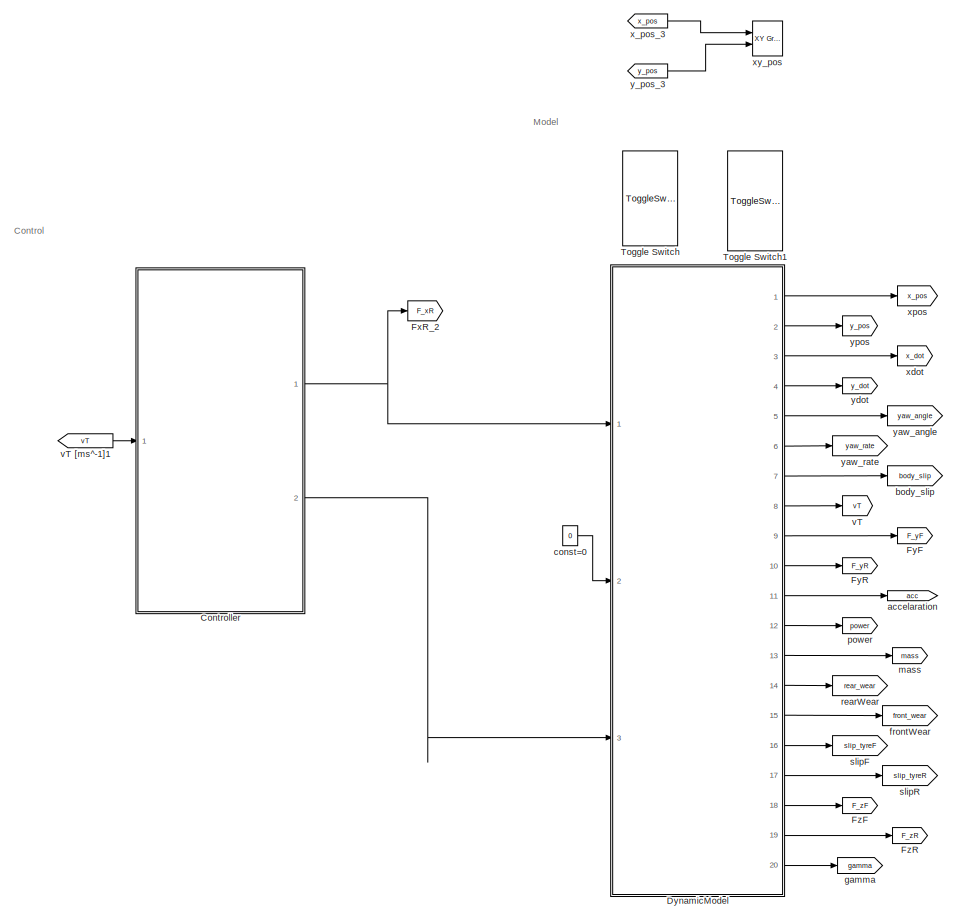
[diagram: root canvas - part 1/2, center side, full height]
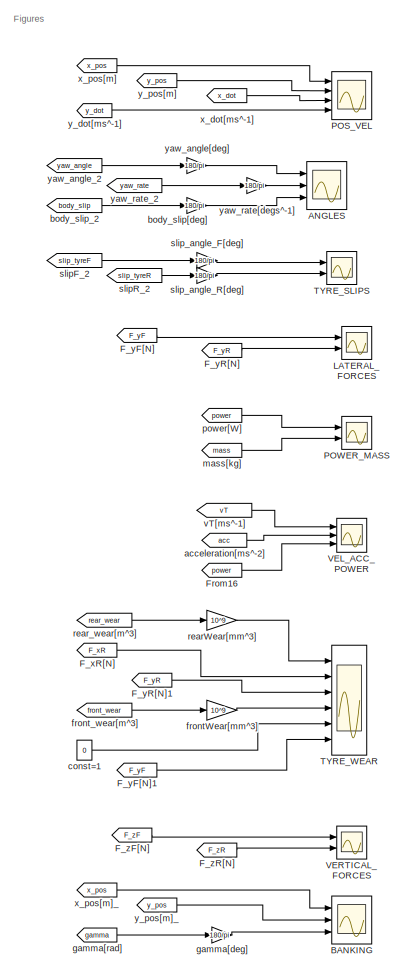
[diagram: root canvas - part 2/2, right side, full height]
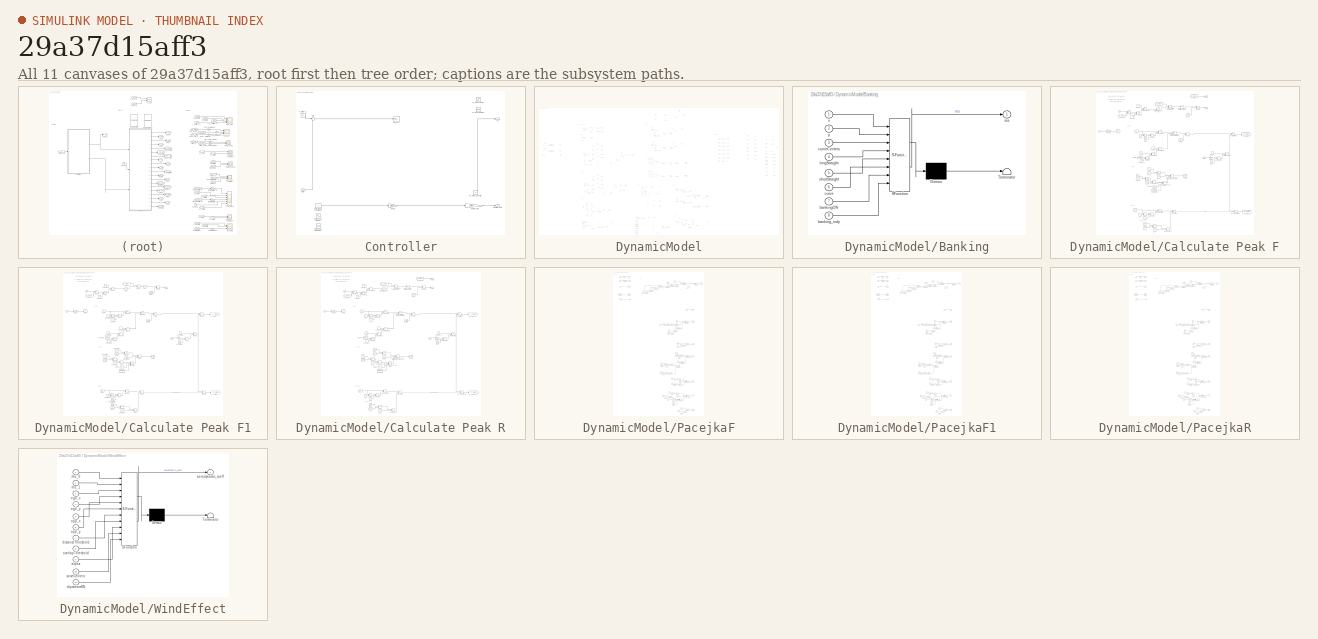
[diagram: thumbnail index - all 11 canvases of the model, root first then tree order]
MODEL slx_29a37d15aff3
KIND model
CONFIG AbsTol = auto
CONFIG EnableMultiTasking = off
CONFIG FixedStep = auto
CONFIG MaxStep = auto
CONFIG MinStep = auto
CONFIG RelTol = 1e-3
CONFIG SampleTimeConstraint = Unconstrained
CONFIG Solver = ode15s
CONFIG SolverName = ode15s
CONFIG StartTime = 0.0
CONFIG StopTime = 30
BLOCK [Scope] ANGLES
  Floating = off
  NumInputPorts = 3
  Ports = [3]
  ScopeSpecificationString = Simulink.scopes.TimeScopeBlockCfg('CurrentConfiguration', extmgr.ConfigurationSet(extmgr.Configuration('Core','General UI',true,'FigureColor',[1 1 1]),extmgr.Configuration('Core','Source UI',true),extmgr.Configuration('Sources','WiredSimulink',true,'DataLoggingVariableName','ScopeData1'),extmgr.Configuration('Visuals','Time Domain',true,'SerializedDisplays',{struct('MinYLimReal','-270.8414','MaxYL...<+5689ch>
BLOCK [Scope] BANKING
  Floating = off
  NumInputPorts = 3
  Ports = [3]
  ScopeSpecificationString = Simulink.scopes.TimeScopeBlockCfg('CurrentConfiguration', extmgr.ConfigurationSet(extmgr.Configuration('Core','General UI',true,'FigureColor',[1 1 1]),extmgr.Configuration('Core','Source UI',true),extmgr.Configuration('Sources','WiredSimulink',true,'DataLoggingVariableName','ScopeData2'),extmgr.Configuration('Visuals','Time Domain',true,'SerializedDisplays',{struct('MinYLimReal','-112.18216','MaxY...<+5671ch>
BLOCK [SubSystem] Controller
  Ports = [1, 2]
  RequestExecContextInheritance = off
BLOCK [Outport] Controller/Fx
  Unit = N
BLOCK [Constant] Controller/Fx_input_const[N]
  Value = 0
BLOCK [Reference] Controller/Fx_input_ramp[N]  REF=simulink/Sources/Ramp
  Commented = on
  Ports = [0, 1]
  SourceBlock = simulink/Sources/Ramp
  SourceProductBaseCode = SL
  SourceType = Ramp
BLOCK [Step] Controller/Fx_input_step[N]
  After = -700
  Before = 1250
  Commented = on
  SampleTime = 0
  Time = 15
BLOCK [Reference] Controller/PID_vel  REF=simulink/Continuous/PID Controller
  Commented = on
  Ports = [1, 1]
  SourceBlock = simulink/Continuous/PID Controller
  SourceProductBaseCode = SL
  SourceType = PID 1dof
BLOCK [Outport] Controller/Steering Angle
  Port = 2
  Unit = rad
BLOCK [Constant] Controller/delta_input_const[deg]
  Value = 0
BLOCK [Reference] Controller/delta_input_ramp[deg]  REF=simulink/Sources/Ramp
  Commented = on
  Ports = [0, 1]
  SourceBlock = simulink/Sources/Ramp
  SourceProductBaseCode = SL
  SourceType = Ramp
BLOCK [Sin] Controller/delta_input_sin[deg]
  Amplitude = 20
  Commented = on
  Frequency = 0.22
  Ports = [0, 1]
  SampleTime = 0
BLOCK [Sum] Controller/error
  Commented = on
  Inputs = +-
  Ports = [2, 1]
BLOCK [Gain] Controller/steering_ratio
  Gain = 1/steering_ratio
BLOCK [Gain] Controller/toRad
  Gain = pi/180
BLOCK [Inport] Controller/v[m//s]
  Unit = m/s
BLOCK [Constant] Controller/v_ref[ms^-1]
  Commented = on
  Value = 50
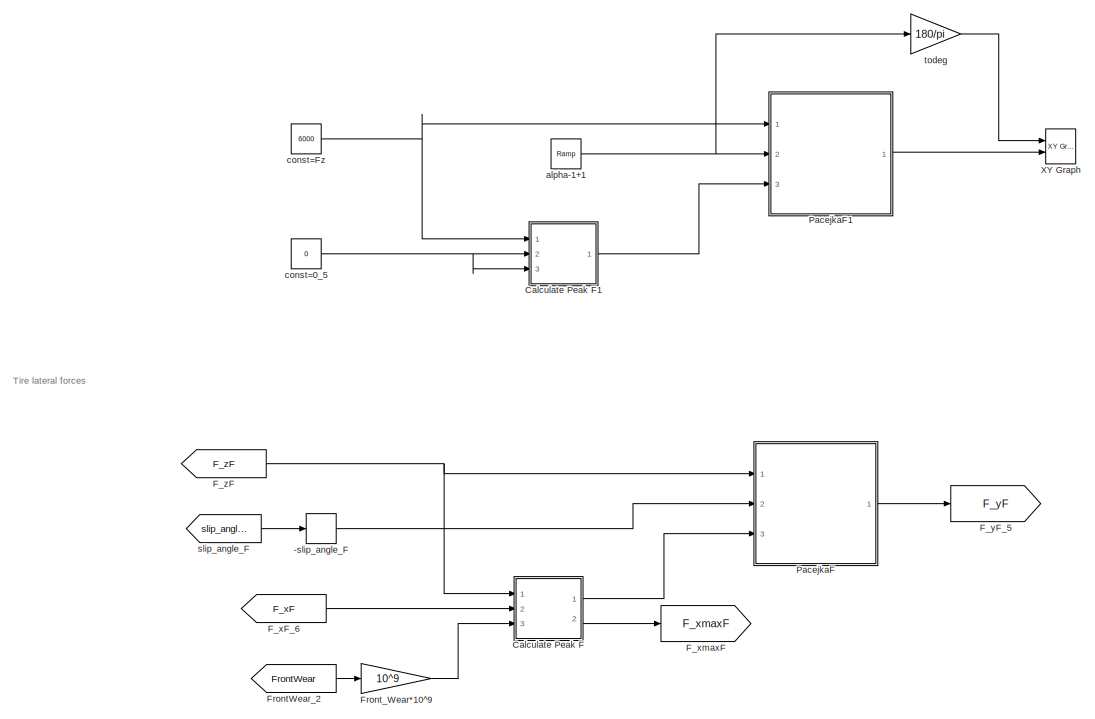
[diagram: DynamicModel - part 1/16, top center region]
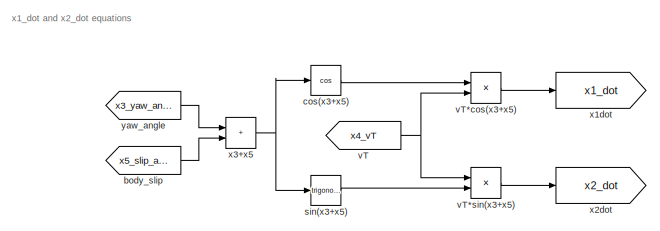
[diagram: DynamicModel - part 2/16, top left region]
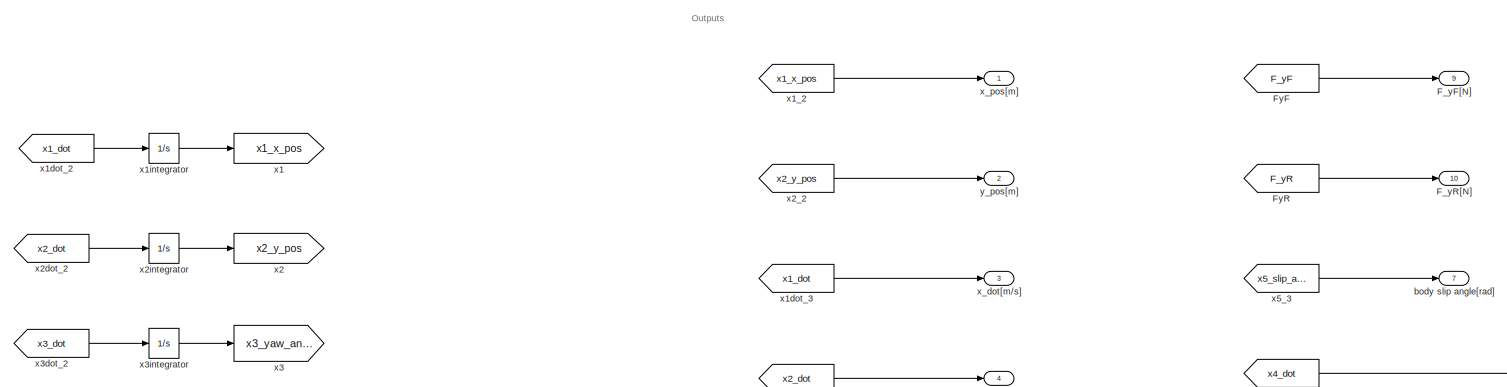
[diagram: DynamicModel - part 3/16, top right region]
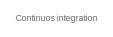
[diagram: DynamicModel - part 4/16, top right region]
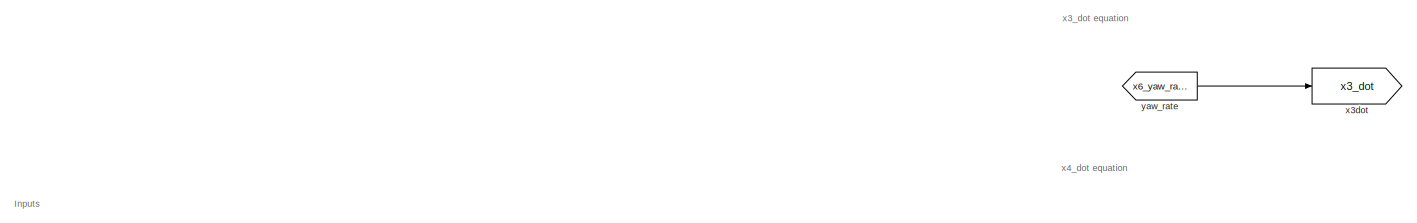
[diagram: DynamicModel - part 5/16, top left region]
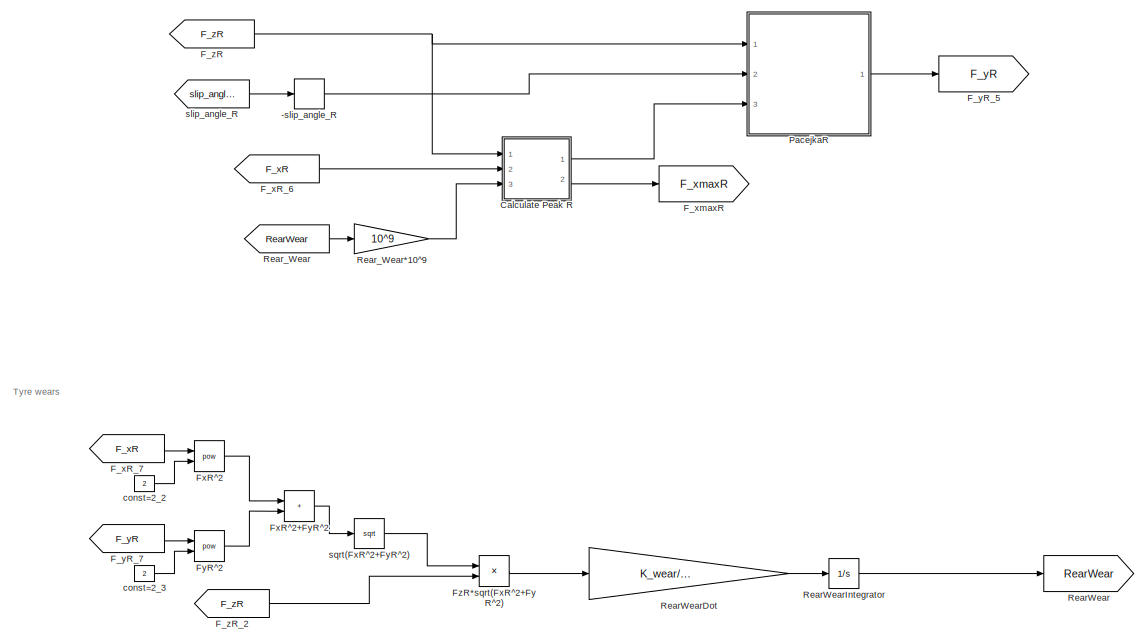
[diagram: DynamicModel - part 6/16, central region]
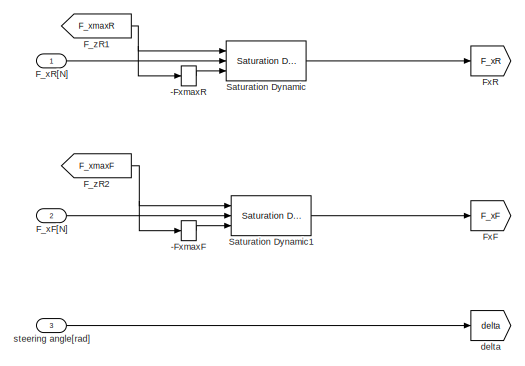
[diagram: DynamicModel - part 7/16, top left region]
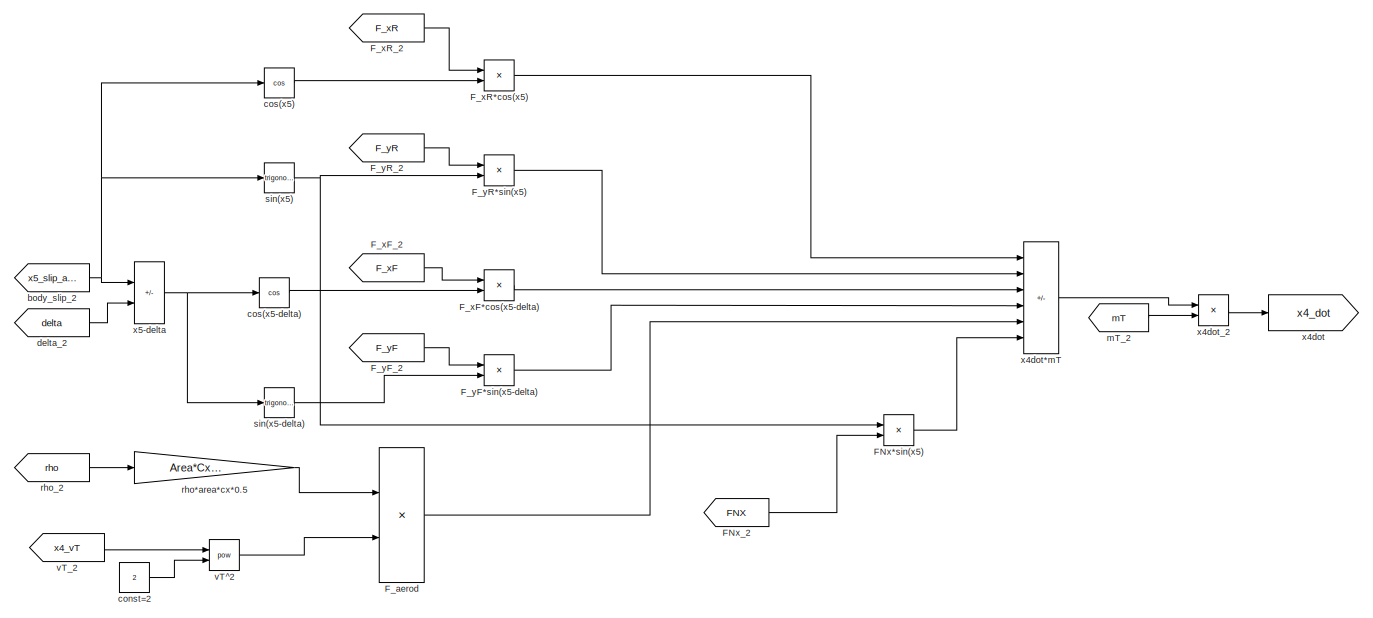
[diagram: DynamicModel - part 8/16, middle left region]
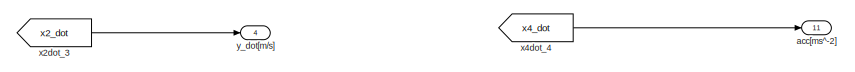
[diagram: DynamicModel - part 9/16, top right region]
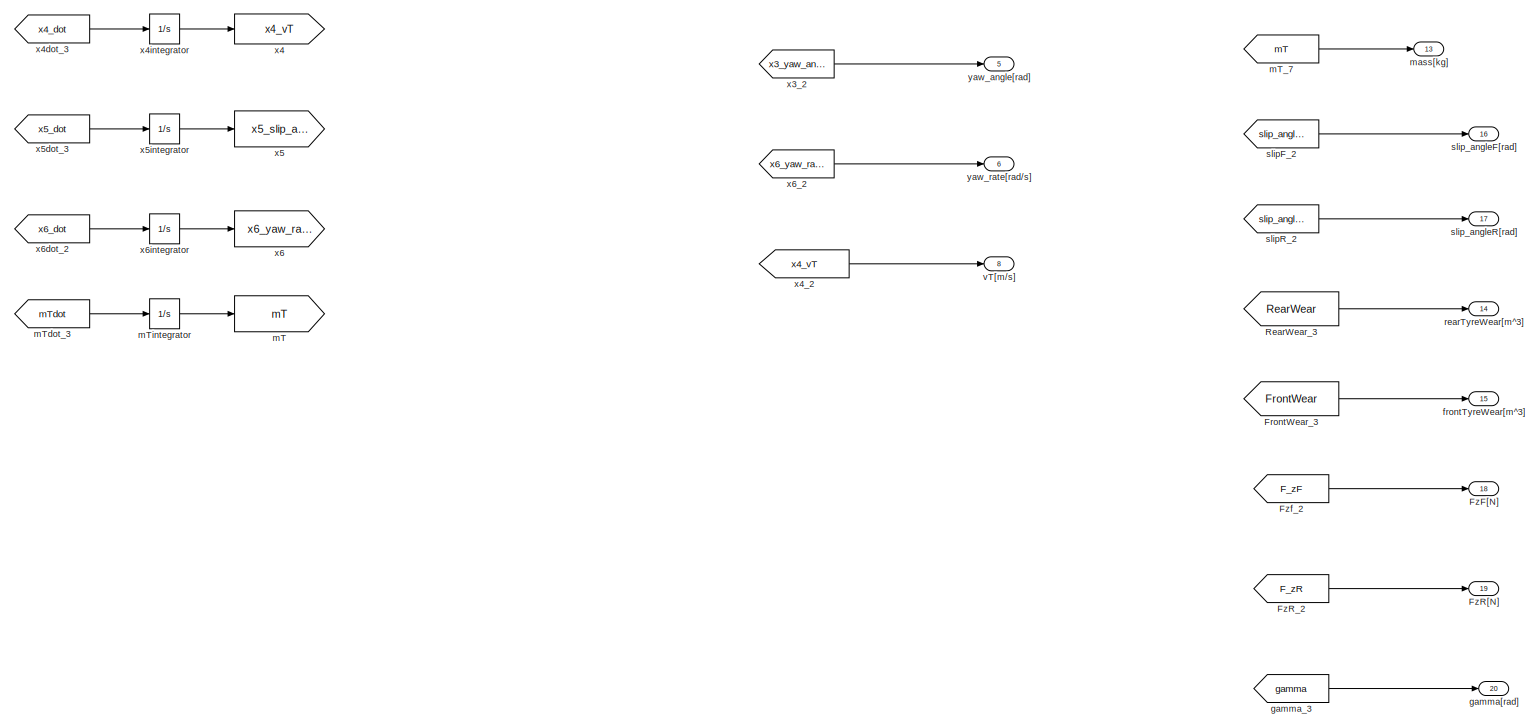
[diagram: DynamicModel - part 10/16, middle right region]
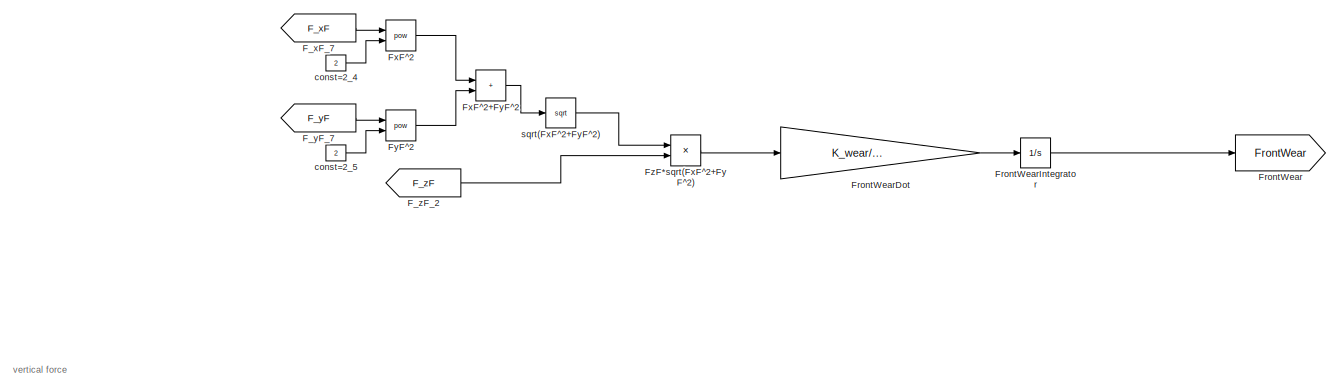
[diagram: DynamicModel - part 11/16, central region]
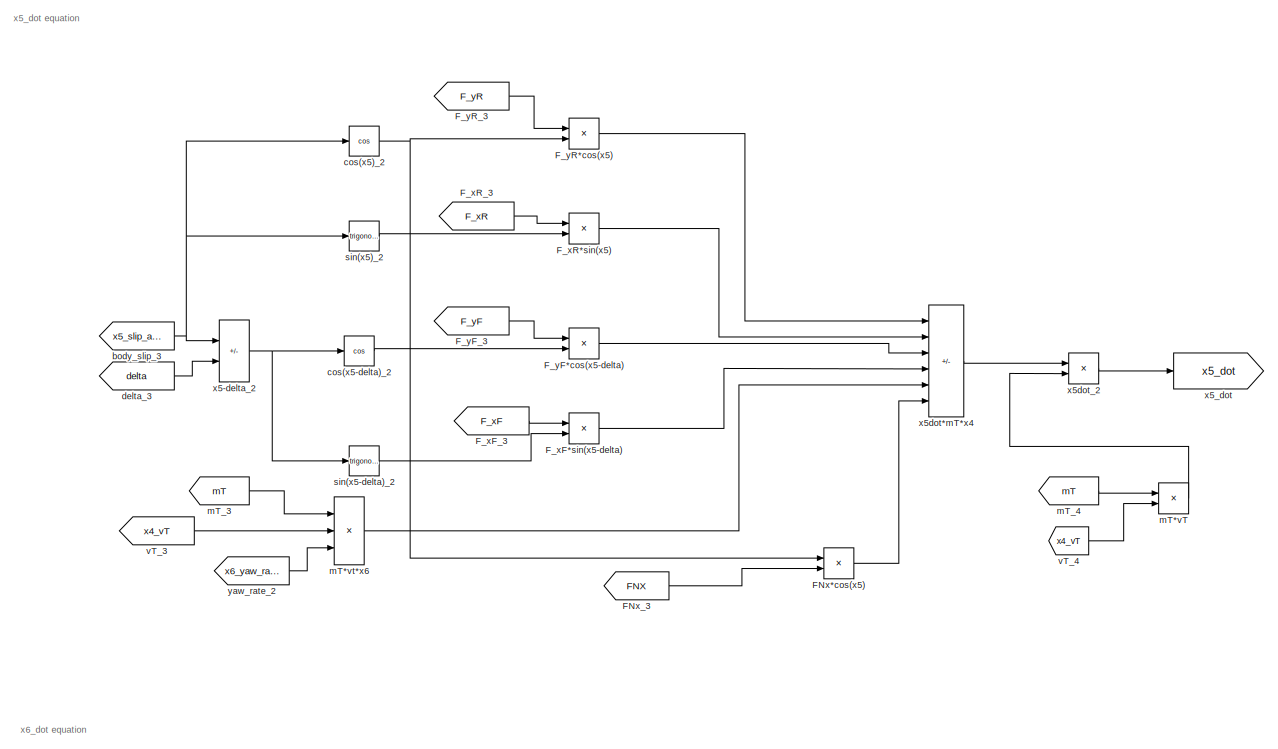
[diagram: DynamicModel - part 12/16, middle left region]
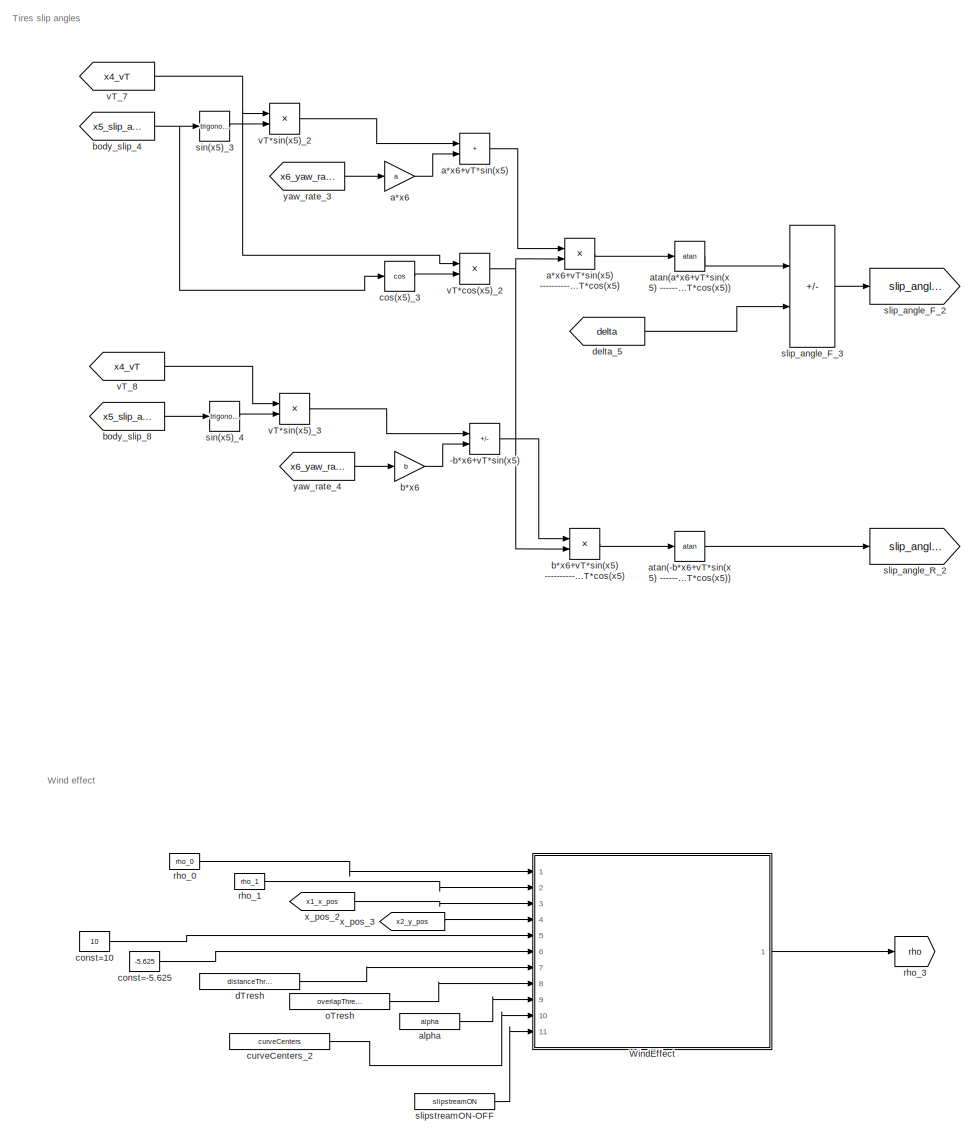
[diagram: DynamicModel - part 13/16, bottom center region]
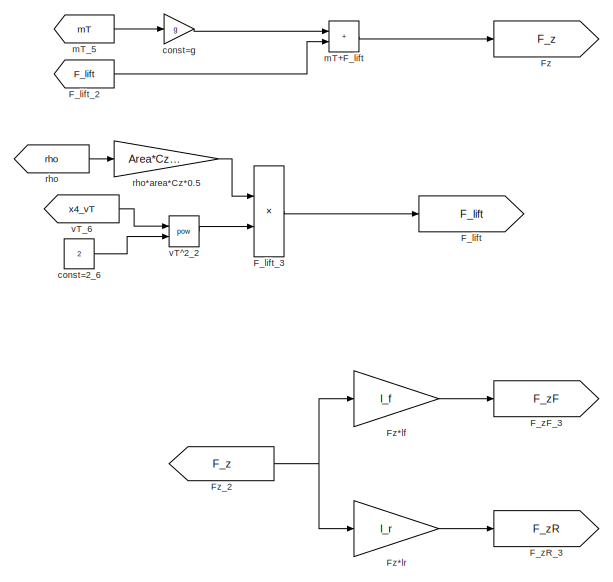
[diagram: DynamicModel - part 14/16, bottom center region]
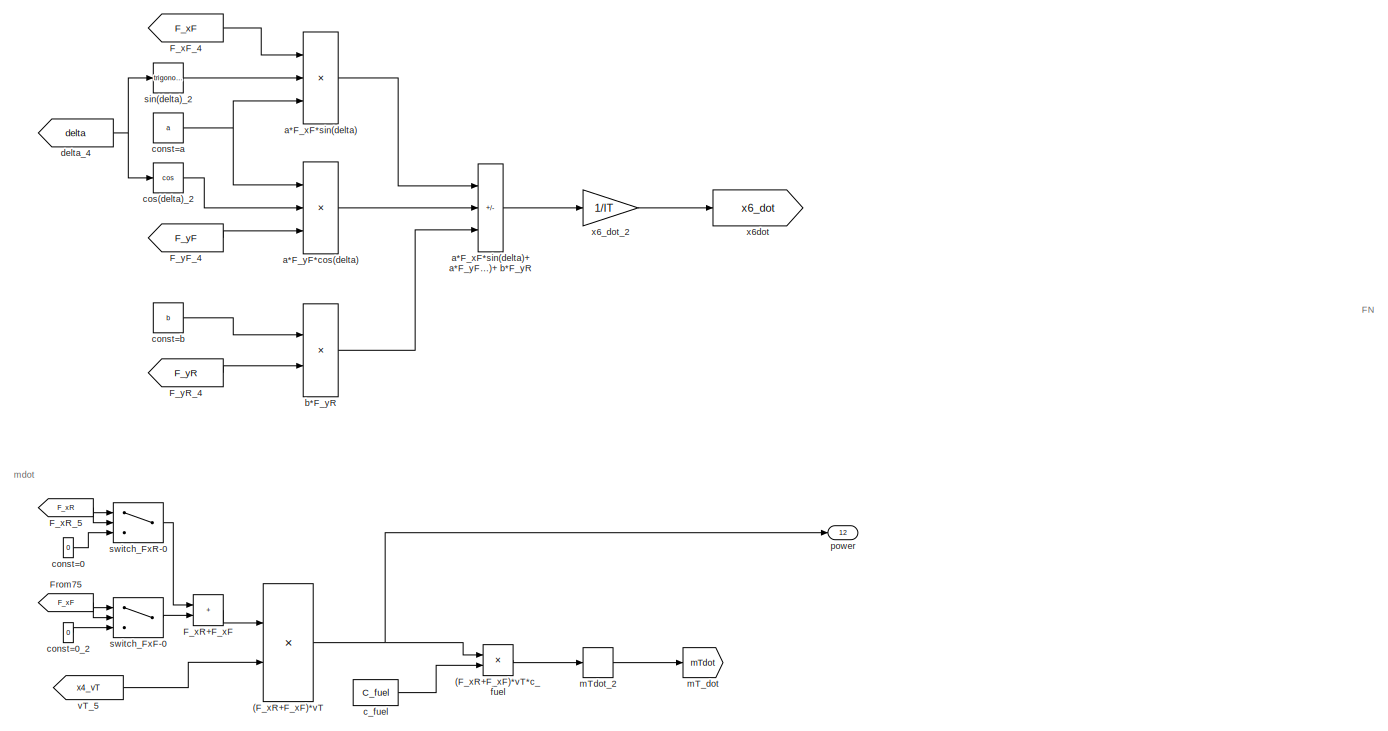
[diagram: DynamicModel - part 15/16, bottom left region]
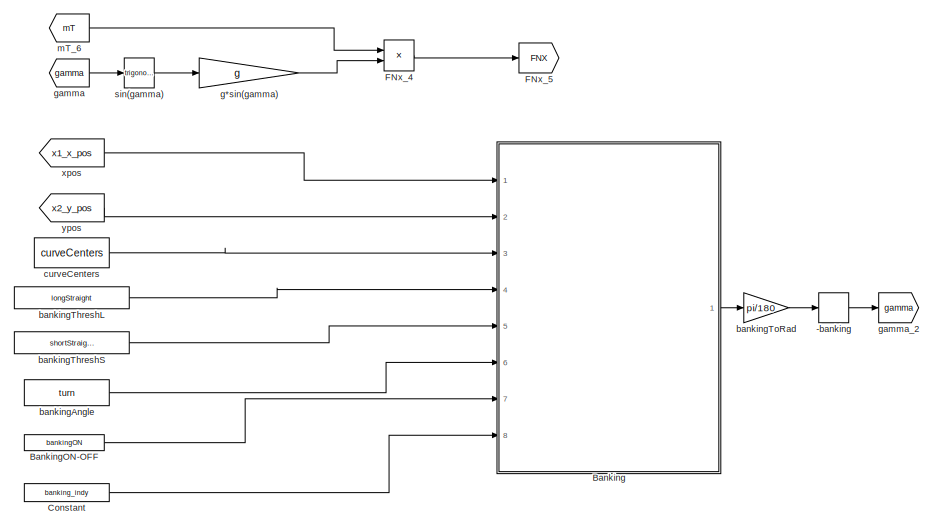
[diagram: DynamicModel - part 16/16, bottom center region]
BLOCK [SubSystem] DynamicModel
  Ports = [3, 20]
  RequestExecContextInheritance = off
BLOCK [Product] DynamicModel/(F_xR+F_xF)*vT
  Ports = [2, 1]
BLOCK [Product] DynamicModel/(F_xR+F_xF)*vT*c_fuel
  Ports = [2, 1]
BLOCK [UnaryMinus] DynamicModel/-FxmaxF
BLOCK [UnaryMinus] DynamicModel/-FxmaxR
BLOCK [Sum] DynamicModel/-b*x6+vT*sin(x5)
  IconShape = rectangular
  Inputs = +-
  Ports = [2, 1]
BLOCK [UnaryMinus] DynamicModel/-banking
BLOCK [UnaryMinus] DynamicModel/-slip_angle_F
BLOCK [UnaryMinus] DynamicModel/-slip_angle_R
BLOCK [SubSystem] DynamicModel/Banking
  ErrorFcn = Stateflow.Translate.translate
  PermitHierarchicalResolution = ExplicitOnly
  Ports = [8, 1]
  RequestExecContextInheritance = off
  SFBlockType = MATLAB Function
  TreatAsAtomicUnit = on
BLOCK [Demux] DynamicModel/Banking/ Demux 
  Outputs = 1
  Ports = [1, 1]
BLOCK [S-Function] DynamicModel/Banking/ SFunction 
  EnableBusSupport = on
  FunctionName = sf_sfun
  PortCounts = [8 2]
  Ports = [8, 2]
  SFcnIsStateOwnerBlock = off
  SFunctionDeploymentMode = off
  Tag = Stateflow S-Function 2
BLOCK [Terminator] DynamicModel/Banking/ Terminator 
BLOCK [Inport] DynamicModel/Banking/bankingON
  Port = 7
BLOCK [Inport] DynamicModel/Banking/banking_indy
  Port = 8
BLOCK [Inport] DynamicModel/Banking/curve
  Port = 6
BLOCK [Inport] DynamicModel/Banking/curveCenters
  Port = 3
BLOCK [Inport] DynamicModel/Banking/longStraight
  Port = 4
BLOCK [Outport] DynamicModel/Banking/res
BLOCK [Inport] DynamicModel/Banking/shortStraight
  Port = 5
BLOCK [Inport] DynamicModel/Banking/x
BLOCK [Inport] DynamicModel/Banking/y
  Port = 2
BLOCK [Constant] DynamicModel/BankingON-OFF
  Value = bankingON
BLOCK [SubSystem] DynamicModel/Calculate Peak F
  Ports = [3, 2]
  RequestExecContextInheritance = off
BLOCK [Product] DynamicModel/Calculate Peak F/((a1Fz+a2)Fz) (1-a15*camber^2)
  Ports = [2, 1]
BLOCK [Product] DynamicModel/Calculate Peak F/(D+V_lat)*wear
  Ports = [2, 1]
BLOCK [Product] DynamicModel/Calculate Peak F/(D+V_long)*wear
  Ports = [2, 1]
BLOCK [Math] DynamicModel/Calculate Peak F/(Fx*Fymax^-1)^2
  Operator = pow
  Ports = [2, 1]
BLOCK [Product] DynamicModel/Calculate Peak F/(a1Fz+a2)Fz
  Ports = [2, 1]
BLOCK [Product] DynamicModel/Calculate Peak F/(b1Fz+b2)Fz
  Ports = [2, 1]
BLOCK [Product] DynamicModel/Calculate Peak F/1 ------ w1*wear+w2
  Inputs = */
  Ports = [2, 1]
BLOCK [Sum] DynamicModel/Calculate Peak F/1-(Fx*Fymax^-1)^2
  IconShape = rectangular
  Inputs = +-
  Ports = [2, 1]
BLOCK [Sum] DynamicModel/Calculate Peak F/1-a15*camber^2
  IconShape = rectangular
  Inputs = +-
  Ports = [2, 1]
BLOCK [Constant] DynamicModel/Calculate Peak F/Constant11
  Value = camber
BLOCK [Sum] DynamicModel/Calculate Peak F/D+V_lat
  IconShape = rectangular
  Ports = [2, 1]
BLOCK [Sum] DynamicModel/Calculate Peak F/D+V_long
  IconShape = rectangular
  Ports = [2, 1]
BLOCK [From] DynamicModel/Calculate Peak F/F_xmax
  GotoTag = F_xmax
BLOCK [Goto] DynamicModel/Calculate Peak F/F_xmax_2
  GotoTag = F_xmax
BLOCK [From] DynamicModel/Calculate Peak F/F_xmax_3
  GotoTag = F_xmax
BLOCK [Product] DynamicModel/Calculate Peak F/F_ymax* sqrt(1-(Fx*Fymax^-1)^2) 
  Ports = [2, 1]
BLOCK [From] DynamicModel/Calculate Peak F/F_ymax_2
  GotoTag = F_ymax
BLOCK [Goto] DynamicModel/Calculate Peak F/F_ymax_3
  GotoTag = F_ymax
BLOCK [From] DynamicModel/Calculate Peak F/From22
  GotoTag = Fz
BLOCK [Inport] DynamicModel/Calculate Peak F/Fx
  Port = 2
  Unit = N
BLOCK [Product] DynamicModel/Calculate Peak F/Fx*Fymax^-1
  Inputs = */
  Ports = [2, 1]
BLOCK [Outport] DynamicModel/Calculate Peak F/Fxmax
  Port = 2
BLOCK [Inport] DynamicModel/Calculate Peak F/Fz
  Unit = N
BLOCK [Gain] DynamicModel/Calculate Peak F/Fz*10^-3
  Gain = 10^-3
BLOCK [Goto] DynamicModel/Calculate Peak F/Fz_2
  GotoTag = Fz
BLOCK [From] DynamicModel/Calculate Peak F/Fz_3
  GotoTag = Fz
BLOCK [From] DynamicModel/Calculate Peak F/Fz_4
  GotoTag = Fz
BLOCK [From] DynamicModel/Calculate Peak F/Fz_5
  GotoTag = Fz
BLOCK [From] DynamicModel/Calculate Peak F/Fz_6
  GotoTag = Fz
BLOCK [From] DynamicModel/Calculate Peak F/Fz_7
  GotoTag = Fz
BLOCK [Outport] DynamicModel/Calculate Peak F/Peak
BLOCK [From] DynamicModel/Calculate Peak F/V_lat
  GotoTag = V_lat
BLOCK [From] DynamicModel/Calculate Peak F/V_lat_2
  GotoTag = V_lat
BLOCK [Goto] DynamicModel/Calculate Peak F/V_lat_3
  GotoTag = V_lat
BLOCK [Inport] DynamicModel/Calculate Peak F/Wear
  Port = 3
BLOCK [Constant] DynamicModel/Calculate Peak F/a1
  Value = a1
BLOCK [Constant] DynamicModel/Calculate Peak F/a11
  Value = a11
BLOCK [Product] DynamicModel/Calculate Peak F/a11Fz
  Ports = [2, 1]
BLOCK [Constant] DynamicModel/Calculate Peak F/a12
  Value = a12
BLOCK [Constant] DynamicModel/Calculate Peak F/a13
  Value = a13
BLOCK [Product] DynamicModel/Calculate Peak F/a13Fz
  Ports = [2, 1]
BLOCK [Sum] DynamicModel/Calculate Peak F/a13Fz+a14
  IconShape = rectangular
  Ports = [2, 1]
BLOCK [Product] DynamicModel/Calculate Peak F/a13Fz+a14+Fz+camber
  Inputs = 3
  Ports = [3, 1]
BLOCK [Sum] DynamicModel/Calculate Peak F/a13Fz+a14+Fz+camber +a12+a11Fz
  IconShape = rectangular
  Inputs = +++
  Ports = [3, 1]
BLOCK [Constant] DynamicModel/Calculate Peak F/a14
  Value = a14
BLOCK [Constant] DynamicModel/Calculate Peak F/a15
  Value = a15
BLOCK [Product] DynamicModel/Calculate Peak F/a15*camber^2
  Ports = [2, 1]
BLOCK [Product] DynamicModel/Calculate Peak F/a1Fz
  Ports = [2, 1]
BLOCK [Sum] DynamicModel/Calculate Peak F/a1Fz+a2
  IconShape = rectangular
  Ports = [2, 1]
BLOCK [Constant] DynamicModel/Calculate Peak F/a2
  Value = a2
BLOCK [Abs] DynamicModel/Calculate Peak F/abs(F_ymax* sqrt(1-(Fx*Fymax^-1)^2) )
  SaturateOnIntegerOverflow = off
BLOCK [Constant] DynamicModel/Calculate Peak F/b1
  Value = b1
BLOCK [Constant] DynamicModel/Calculate Peak F/b11
  Value = b11
BLOCK [Product] DynamicModel/Calculate Peak F/b11Fz
  Ports = [2, 1]
BLOCK [Sum] DynamicModel/Calculate Peak F/b11Fz+b12
  IconShape = rectangular
  Ports = [2, 1]
BLOCK [Constant] DynamicModel/Calculate Peak F/b12
  Value = b12
BLOCK [Product] DynamicModel/Calculate Peak F/b1Fz
  Ports = [2, 1]
BLOCK [Sum] DynamicModel/Calculate Peak F/b1Fz+b2
  IconShape = rectangular
  Ports = [2, 1]
BLOCK [Constant] DynamicModel/Calculate Peak F/b2
  Value = b2
BLOCK [Constant] DynamicModel/Calculate Peak F/camber
  Value = camber
BLOCK [Math] DynamicModel/Calculate Peak F/camber^2
  Operator = pow
  Ports = [2, 1]
BLOCK [Constant] DynamicModel/Calculate Peak F/const=1
BLOCK [Constant] DynamicModel/Calculate Peak F/const=1_2
BLOCK [Constant] DynamicModel/Calculate Peak F/const=1_3
BLOCK [Constant] DynamicModel/Calculate Peak F/const=2
  Value = 2
BLOCK [Constant] DynamicModel/Calculate Peak F/const=2_2
  Value = 2
BLOCK [Sum] DynamicModel/Calculate Peak F/newD+V
  IconShape = rectangular
  Inputs = +-
  Ports = [2, 1]
BLOCK [Sqrt] DynamicModel/Calculate Peak F/sqrt(1-(Fx*Fymax^-1)^2)
BLOCK [Gain] DynamicModel/Calculate Peak F/w1*wear
  Gain = w1
BLOCK [Sum] DynamicModel/Calculate Peak F/w1*wear+w2
  IconShape = rectangular
  Ports = [2, 1]
BLOCK [Constant] DynamicModel/Calculate Peak F/w2
  Value = w2
BLOCK [SubSystem] DynamicModel/Calculate Peak F1
  Commented = on
  Ports = [3, 1]
  RequestExecContextInheritance = off
BLOCK [Abs] DynamicModel/Calculate Peak F1/Abs
  SaturateOnIntegerOverflow = off
BLOCK [Constant] DynamicModel/Calculate Peak F1/Constant
BLOCK [Constant] DynamicModel/Calculate Peak F1/Constant1
  Value = 2
BLOCK [Constant] DynamicModel/Calculate Peak F1/Constant10
  Value = a12
BLOCK [Constant] DynamicModel/Calculate Peak F1/Constant11
  Value = camber
BLOCK [Constant] DynamicModel/Calculate Peak F1/Constant15
  Value = a15
BLOCK [Constant] DynamicModel/Calculate Peak F1/Constant16
  Value = 2
BLOCK [Constant] DynamicModel/Calculate Peak F1/Constant17
  Value = b11
BLOCK [Constant] DynamicModel/Calculate Peak F1/Constant18
  Value = b12
BLOCK [Constant] DynamicModel/Calculate Peak F1/Constant19
  Value = a13
BLOCK [Constant] DynamicModel/Calculate Peak F1/Constant2
  Value = b1
BLOCK [Constant] DynamicModel/Calculate Peak F1/Constant20
  Value = a14
BLOCK [Constant] DynamicModel/Calculate Peak F1/Constant21
  Value = camber
BLOCK [Constant] DynamicModel/Calculate Peak F1/Constant3
  Value = a1
BLOCK [Constant] DynamicModel/Calculate Peak F1/Constant4
  Value = a2
BLOCK [Constant] DynamicModel/Calculate Peak F1/Constant5
  Value = b2
BLOCK [Constant] DynamicModel/Calculate Peak F1/Constant6
BLOCK [Constant] DynamicModel/Calculate Peak F1/Constant7
BLOCK [Constant] DynamicModel/Calculate Peak F1/Constant8
  Value = w2
BLOCK [Constant] DynamicModel/Calculate Peak F1/Constant9
  Value = a11
BLOCK [Product] DynamicModel/Calculate Peak F1/Divide
  Inputs = */
  Ports = [2, 1]
BLOCK [Product] DynamicModel/Calculate Peak F1/Divide1
  Inputs = */
  Ports = [2, 1]
BLOCK [From] DynamicModel/Calculate Peak F1/From
  GotoTag = F_ymax
BLOCK [From] DynamicModel/Calculate Peak F1/From1
  GotoTag = F_xmax
BLOCK [From] DynamicModel/Calculate Peak F1/From2
  GotoTag = Fz
BLOCK [From] DynamicModel/Calculate Peak F1/From20
  GotoTag = Fz
BLOCK [From] DynamicModel/Calculate Peak F1/From21
  GotoTag = Fz
BLOCK [From] DynamicModel/Calculate Peak F1/From22
  GotoTag = Fz
BLOCK [From] DynamicModel/Calculate Peak F1/From3
  GotoTag = Fz
BLOCK [From] DynamicModel/Calculate Peak F1/From4
  GotoTag = Fz
BLOCK [From] DynamicModel/Calculate Peak F1/From5
  GotoTag = V_lat
BLOCK [From] DynamicModel/Calculate Peak F1/From6
  GotoTag = V_lat
BLOCK [Inport] DynamicModel/Calculate Peak F1/Fx
  Port = 2
  Unit = N
BLOCK [Inport] DynamicModel/Calculate Peak F1/Fz
  Unit = N
BLOCK [Gain] DynamicModel/Calculate Peak F1/Gain
  Gain = w1
BLOCK [Gain] DynamicModel/Calculate Peak F1/Gain10
  Gain = 10^-3
BLOCK [Goto] DynamicModel/Calculate Peak F1/Goto
  GotoTag = F_ymax
BLOCK [Goto] DynamicModel/Calculate Peak F1/Goto1
  GotoTag = F_xmax
BLOCK [Goto] DynamicModel/Calculate Peak F1/Goto2
  GotoTag = Fz
BLOCK [Goto] DynamicModel/Calculate Peak F1/Goto3
  GotoTag = V_lat
BLOCK [Sum] DynamicModel/Calculate Peak F1/Minus
  IconShape = rectangular
  Inputs = +-
  Ports = [2, 1]
BLOCK [Sum] DynamicModel/Calculate Peak F1/Minus1
  IconShape = rectangular
  Inputs = +-
  Ports = [2, 1]
BLOCK [Sum] DynamicModel/Calculate Peak F1/Minus3
  IconShape = rectangular
  Inputs = +-
  Ports = [2, 1]
BLOCK [Outport] DynamicModel/Calculate Peak F1/Peak
BLOCK [Sum] DynamicModel/Calculate Peak F1/Plus
  IconShape = rectangular
  Ports = [2, 1]
BLOCK [Sum] DynamicModel/Calculate Peak F1/Plus1
  IconShape = rectangular
  Ports = [2, 1]
BLOCK [Sum] DynamicModel/Calculate Peak F1/Plus2
  IconShape = rectangular
  Ports = [2, 1]
BLOCK [Sum] DynamicModel/Calculate Peak F1/Plus3
  IconShape = rectangular
  Ports = [2, 1]
BLOCK [Sum] DynamicModel/Calculate Peak F1/Plus4
  IconShape = rectangular
  Ports = [2, 1]
BLOCK [Sum] DynamicModel/Calculate Peak F1/Plus5
  IconShape = rectangular
  Inputs = +++
  Ports = [3, 1]
BLOCK [Sum] DynamicModel/Calculate Peak F1/Plus6
  IconShape = rectangular
  Ports = [2, 1]
BLOCK [Sum] DynamicModel/Calculate Peak F1/Plus7
  IconShape = rectangular
  Ports = [2, 1]
BLOCK [Math] DynamicModel/Calculate Peak F1/Power
  Operator = pow
  Ports = [2, 1]
BLOCK [Math] DynamicModel/Calculate Peak F1/Power6
  Operator = pow
  Ports = [2, 1]
BLOCK [Product] DynamicModel/Calculate Peak F1/Product
  Ports = [2, 1]
BLOCK [Product] DynamicModel/Calculate Peak F1/Product1
  Ports = [2, 1]
BLOCK [Product] DynamicModel/Calculate Peak F1/Product16
  Ports = [2, 1]
BLOCK [Product] DynamicModel/Calculate Peak F1/Product17
  Ports = [2, 1]
BLOCK [Product] DynamicModel/Calculate Peak F1/Product18
  Inputs = 3
  Ports = [3, 1]
BLOCK [Product] DynamicModel/Calculate Peak F1/Product2
  Ports = [2, 1]
BLOCK [Product] DynamicModel/Calculate Peak F1/Product26
  Ports = [2, 1]
BLOCK [Product] DynamicModel/Calculate Peak F1/Product27
  Ports = [2, 1]
BLOCK [Product] DynamicModel/Calculate Peak F1/Product28
  Ports = [2, 1]
BLOCK [Product] DynamicModel/Calculate Peak F1/Product29
  Ports = [2, 1]
BLOCK [Product] DynamicModel/Calculate Peak F1/Product3
  Ports = [2, 1]
BLOCK [Product] DynamicModel/Calculate Peak F1/Product4
  Ports = [2, 1]
BLOCK [Product] DynamicModel/Calculate Peak F1/Product5
  Ports = [2, 1]
BLOCK [Sqrt] DynamicModel/Calculate Peak F1/Sqrt
BLOCK [Inport] DynamicModel/Calculate Peak F1/Wear
  Port = 3
BLOCK [SubSystem] DynamicModel/Calculate Peak R
  Ports = [3, 2]
  RequestExecContextInheritance = off
BLOCK [Product] DynamicModel/Calculate Peak R/((a1Fz+a2)Fz) (1-a15*camber^2)
  Ports = [2, 1]
BLOCK [Product] DynamicModel/Calculate Peak R/(D+V_lat)*wear
  Ports = [2, 1]
BLOCK [Product] DynamicModel/Calculate Peak R/(D+V_long)*wear
  Ports = [2, 1]
BLOCK [Math] DynamicModel/Calculate Peak R/(Fx*Fymax^-1)^2
  Operator = pow
  Ports = [2, 1]
BLOCK [Product] DynamicModel/Calculate Peak R/(a1Fz+a2)Fz
  Ports = [2, 1]
BLOCK [Product] DynamicModel/Calculate Peak R/(b1Fz+b2)Fz
  Ports = [2, 1]
BLOCK [Product] DynamicModel/Calculate Peak R/1 ------ w1*wear+w2
  Inputs = */
  Ports = [2, 1]
BLOCK [Sum] DynamicModel/Calculate Peak R/1-(Fx*Fymax^-1)^2
  IconShape = rectangular
  Inputs = +-
  Ports = [2, 1]
BLOCK [Sum] DynamicModel/Calculate Peak R/1-a15*camber^2
  IconShape = rectangular
  Inputs = +-
  Ports = [2, 1]
BLOCK [Constant] DynamicModel/Calculate Peak R/Constant11
  Value = camber
BLOCK [Sum] DynamicModel/Calculate Peak R/D+V_lat
  IconShape = rectangular
  Ports = [2, 1]
BLOCK [Sum] DynamicModel/Calculate Peak R/D+V_long
  IconShape = rectangular
  Ports = [2, 1]
BLOCK [From] DynamicModel/Calculate Peak R/F_xmax
  GotoTag = F_xmax
BLOCK [Goto] DynamicModel/Calculate Peak R/F_xmax_2
  GotoTag = F_xmax
BLOCK [From] DynamicModel/Calculate Peak R/F_xmax_3
  GotoTag = F_xmax
BLOCK [Product] DynamicModel/Calculate Peak R/F_ymax* sqrt(1-(Fx*Fymax^-1)^2) 
  Ports = [2, 1]
BLOCK [From] DynamicModel/Calculate Peak R/F_ymax_2
  GotoTag = F_ymax
BLOCK [Goto] DynamicModel/Calculate Peak R/F_ymax_3
  GotoTag = F_ymax
BLOCK [From] DynamicModel/Calculate Peak R/From22
  GotoTag = Fz
BLOCK [Inport] DynamicModel/Calculate Peak R/Fx
  Port = 2
  Unit = N
BLOCK [Product] DynamicModel/Calculate Peak R/Fx*Fymax^-1
  Inputs = */
  Ports = [2, 1]
BLOCK [Outport] DynamicModel/Calculate Peak R/Fxmax
  Port = 2
BLOCK [Inport] DynamicModel/Calculate Peak R/Fz
  Unit = N
BLOCK [Gain] DynamicModel/Calculate Peak R/Fz*10^-3
  Gain = 10^-3
BLOCK [Goto] DynamicModel/Calculate Peak R/Fz_2
  GotoTag = Fz
BLOCK [From] DynamicModel/Calculate Peak R/Fz_3
  GotoTag = Fz
BLOCK [From] DynamicModel/Calculate Peak R/Fz_4
  GotoTag = Fz
BLOCK [From] DynamicModel/Calculate Peak R/Fz_5
  GotoTag = Fz
BLOCK [From] DynamicModel/Calculate Peak R/Fz_6
  GotoTag = Fz
BLOCK [From] DynamicModel/Calculate Peak R/Fz_7
  GotoTag = Fz
BLOCK [Outport] DynamicModel/Calculate Peak R/Peak
BLOCK [From] DynamicModel/Calculate Peak R/V_lat
  GotoTag = V_lat
BLOCK [From] DynamicModel/Calculate Peak R/V_lat_2
  GotoTag = V_lat
BLOCK [Goto] DynamicModel/Calculate Peak R/V_lat_3
  GotoTag = V_lat
BLOCK [Inport] DynamicModel/Calculate Peak R/Wear
  Port = 3
BLOCK [Constant] DynamicModel/Calculate Peak R/a1
  Value = a1
BLOCK [Constant] DynamicModel/Calculate Peak R/a11
  Value = a11
BLOCK [Product] DynamicModel/Calculate Peak R/a11Fz
  Ports = [2, 1]
BLOCK [Constant] DynamicModel/Calculate Peak R/a12
  Value = a12
BLOCK [Constant] DynamicModel/Calculate Peak R/a13
  Value = a13
BLOCK [Product] DynamicModel/Calculate Peak R/a13Fz
  Ports = [2, 1]
BLOCK [Sum] DynamicModel/Calculate Peak R/a13Fz+a14
  IconShape = rectangular
  Ports = [2, 1]
BLOCK [Product] DynamicModel/Calculate Peak R/a13Fz+a14+Fz+camber
  Inputs = 3
  Ports = [3, 1]
BLOCK [Sum] DynamicModel/Calculate Peak R/a13Fz+a14+Fz+camber +a12+a11Fz
  IconShape = rectangular
  Inputs = +++
  Ports = [3, 1]
BLOCK [Constant] DynamicModel/Calculate Peak R/a14
  Value = a14
BLOCK [Constant] DynamicModel/Calculate Peak R/a15
  Value = a15
BLOCK [Product] DynamicModel/Calculate Peak R/a15*camber^2
  Ports = [2, 1]
BLOCK [Product] DynamicModel/Calculate Peak R/a1Fz
  Ports = [2, 1]
BLOCK [Sum] DynamicModel/Calculate Peak R/a1Fz+a2
  IconShape = rectangular
  Ports = [2, 1]
BLOCK [Constant] DynamicModel/Calculate Peak R/a2
  Value = a2
BLOCK [Abs] DynamicModel/Calculate Peak R/abs(F_ymax* sqrt(1-(Fx*Fymax^-1)^2) )
  SaturateOnIntegerOverflow = off
BLOCK [Constant] DynamicModel/Calculate Peak R/b1
  Value = b1
BLOCK [Constant] DynamicModel/Calculate Peak R/b11
  Value = b11
BLOCK [Product] DynamicModel/Calculate Peak R/b11Fz
  Ports = [2, 1]
BLOCK [Sum] DynamicModel/Calculate Peak R/b11Fz+b12
  IconShape = rectangular
  Ports = [2, 1]
BLOCK [Constant] DynamicModel/Calculate Peak R/b12
  Value = b12
BLOCK [Product] DynamicModel/Calculate Peak R/b1Fz
  Ports = [2, 1]
BLOCK [Sum] DynamicModel/Calculate Peak R/b1Fz+b2
  IconShape = rectangular
  Ports = [2, 1]
BLOCK [Constant] DynamicModel/Calculate Peak R/b2
  Value = b2
BLOCK [Constant] DynamicModel/Calculate Peak R/camber
  Value = camber
BLOCK [Math] DynamicModel/Calculate Peak R/camber^2
  Operator = pow
  Ports = [2, 1]
BLOCK [Constant] DynamicModel/Calculate Peak R/const=1
BLOCK [Constant] DynamicModel/Calculate Peak R/const=1_2
BLOCK [Constant] DynamicModel/Calculate Peak R/const=1_3
BLOCK [Constant] DynamicModel/Calculate Peak R/const=2
  Value = 2
BLOCK [Constant] DynamicModel/Calculate Peak R/const=2_2
  Value = 2
BLOCK [Sum] DynamicModel/Calculate Peak R/newD+V
  IconShape = rectangular
  Inputs = +-
  Ports = [2, 1]
BLOCK [Sqrt] DynamicModel/Calculate Peak R/sqrt(1-(Fx*Fymax^-1)^2)
BLOCK [Gain] DynamicModel/Calculate Peak R/w1*wear
  Gain = w1
BLOCK [Sum] DynamicModel/Calculate Peak R/w1*wear+w2
  IconShape = rectangular
  Ports = [2, 1]
BLOCK [Constant] DynamicModel/Calculate Peak R/w2
  Value = w2
BLOCK [Constant] DynamicModel/Constant
  Value = banking_indy
BLOCK [Product] DynamicModel/FNx*cos(x5)
  Ports = [2, 1]
BLOCK [Product] DynamicModel/FNx*sin(x5)
  Ports = [2, 1]
BLOCK [From] DynamicModel/FNx_2
  GotoTag = FNX
BLOCK [From] DynamicModel/FNx_3
  GotoTag = FNX
BLOCK [Product] DynamicModel/FNx_4
  Ports = [2, 1]
BLOCK [Goto] DynamicModel/FNx_5
  GotoTag = FNX
BLOCK [Product] DynamicModel/F_aerod
  Ports = [2, 1]
BLOCK [Goto] DynamicModel/F_lift
  GotoTag = F_lift
BLOCK [From] DynamicModel/F_lift_2
  GotoTag = F_lift
BLOCK [Product] DynamicModel/F_lift_3
  Ports = [2, 1]
BLOCK [Product] DynamicModel/F_xF*cos(x5-delta)
  Ports = [2, 1]
BLOCK [Product] DynamicModel/F_xF*sin(x5-delta)
  Ports = [2, 1]
BLOCK [Inport] DynamicModel/F_xF[N]
  Port = 2
  Unit = N
BLOCK [From] DynamicModel/F_xF_2
  GotoTag = F_xF
BLOCK [From] DynamicModel/F_xF_3
  GotoTag = F_xF
BLOCK [From] DynamicModel/F_xF_4
  GotoTag = F_xF
BLOCK [From] DynamicModel/F_xF_6
  GotoTag = F_xF
BLOCK [From] DynamicModel/F_xF_7
  GotoTag = F_xF
BLOCK [Product] DynamicModel/F_xR*cos(x5)
  Ports = [2, 1]
BLOCK [Product] DynamicModel/F_xR*sin(x5)
  Ports = [2, 1]
BLOCK [Sum] DynamicModel/F_xR+F_xF
  IconShape = rectangular
  Ports = [2, 1]
BLOCK [Inport] DynamicModel/F_xR[N]
  Unit = N
BLOCK [From] DynamicModel/F_xR_2
  GotoTag = F_xR
BLOCK [From] DynamicModel/F_xR_3
  GotoTag = F_xR
BLOCK [From] DynamicModel/F_xR_5
  GotoTag = F_xR
BLOCK [From] DynamicModel/F_xR_6
  GotoTag = F_xR
BLOCK [From] DynamicModel/F_xR_7
  GotoTag = F_xR
BLOCK [Goto] DynamicModel/F_xmaxF
  GotoTag = F_xmaxF
BLOCK [Goto] DynamicModel/F_xmaxR
  GotoTag = F_xmaxR
BLOCK [Product] DynamicModel/F_yF*cos(x5-delta)
  Ports = [2, 1]
BLOCK [Product] DynamicModel/F_yF*sin(x5-delta)
  Ports = [2, 1]
BLOCK [Outport] DynamicModel/F_yF[N]
  Port = 9
  Unit = N
BLOCK [From] DynamicModel/F_yF_2
  GotoTag = F_yF
BLOCK [From] DynamicModel/F_yF_3
  GotoTag = F_yF
BLOCK [From] DynamicModel/F_yF_4
  GotoTag = F_yF
BLOCK [Goto] DynamicModel/F_yF_5
  GotoTag = F_yF
BLOCK [From] DynamicModel/F_yF_7
  GotoTag = F_yF
BLOCK [Product] DynamicModel/F_yR*cos(x5)
  Ports = [2, 1]
BLOCK [Product] DynamicModel/F_yR*sin(x5)
  Ports = [2, 1]
BLOCK [Outport] DynamicModel/F_yR[N]
  Port = 10
  Unit = N
BLOCK [From] DynamicModel/F_yR_2
  GotoTag = F_yR
BLOCK [From] DynamicModel/F_yR_3
  GotoTag = F_yR
BLOCK [From] DynamicModel/F_yR_4
  GotoTag = F_yR
BLOCK [Goto] DynamicModel/F_yR_5
  GotoTag = F_yR
BLOCK [From] DynamicModel/F_yR_7
  GotoTag = F_yR
BLOCK [From] DynamicModel/F_zF
  GotoTag = F_zF
BLOCK [From] DynamicModel/F_zF_2
  GotoTag = F_zF
BLOCK [Goto] DynamicModel/F_zF_3
  GotoTag = F_zF
BLOCK [From] DynamicModel/F_zR
  GotoTag = F_zR
BLOCK [From] DynamicModel/F_zR1
  GotoTag = F_xmaxR
BLOCK [From] DynamicModel/F_zR2
  GotoTag = F_xmaxF
BLOCK [From] DynamicModel/F_zR_2
  GotoTag = F_zR
BLOCK [Goto] DynamicModel/F_zR_3
  GotoTag = F_zR
BLOCK [From] DynamicModel/From75
  GotoTag = F_xF
BLOCK [Goto] DynamicModel/FrontWear
  GotoTag = FrontWear
BLOCK [Gain] DynamicModel/FrontWearDot
  Gain = K_wear/TyreContactAreaFront
BLOCK [Integrator] DynamicModel/FrontWearIntegrator
  Ports = [1, 1]
BLOCK [From] DynamicModel/FrontWear_2
  GotoTag = FrontWear
BLOCK [From] DynamicModel/FrontWear_3
  GotoTag = FrontWear
BLOCK [Gain] DynamicModel/Front_Wear*10^9
  Gain = 10^9
BLOCK [Goto] DynamicModel/FxF
  GotoTag = F_xF
BLOCK [Math] DynamicModel/FxF^2
  Operator = pow
  Ports = [2, 1]
BLOCK [Sum] DynamicModel/FxF^2+FyF^2
  IconShape = rectangular
  Ports = [2, 1]
BLOCK [Goto] DynamicModel/FxR
  GotoTag = F_xR
BLOCK [Math] DynamicModel/FxR^2
  Operator = pow
  Ports = [2, 1]
BLOCK [Sum] DynamicModel/FxR^2+FyR^2
  IconShape = rectangular
  Ports = [2, 1]
BLOCK [From] DynamicModel/FyF
  GotoTag = F_yF
BLOCK [Math] DynamicModel/FyF^2
  Operator = pow
  Ports = [2, 1]
BLOCK [From] DynamicModel/FyR
  GotoTag = F_yR
BLOCK [Math] DynamicModel/FyR^2
  Operator = pow
  Ports = [2, 1]
BLOCK [Goto] DynamicModel/Fz
  GotoTag = F_z
BLOCK [Gain] DynamicModel/Fz*lf
  Gain = l_f
BLOCK [Gain] DynamicModel/Fz*lr
  Gain = l_r
BLOCK [Product] DynamicModel/FzF*sqrt(FxF^2+FyF^2)
  Ports = [2, 1]
BLOCK [Outport] DynamicModel/FzF[N]
  Port = 18
  Unit = N
BLOCK [Product] DynamicModel/FzR*sqrt(FxR^2+FyR^2)
  Ports = [2, 1]
BLOCK [Outport] DynamicModel/FzR[N]
  Port = 19
  Unit = N
BLOCK [From] DynamicModel/FzR_2
  GotoTag = F_zR
BLOCK [From] DynamicModel/Fz_2
  GotoTag = F_z
BLOCK [From] DynamicModel/Fzf_2
  GotoTag = F_zF
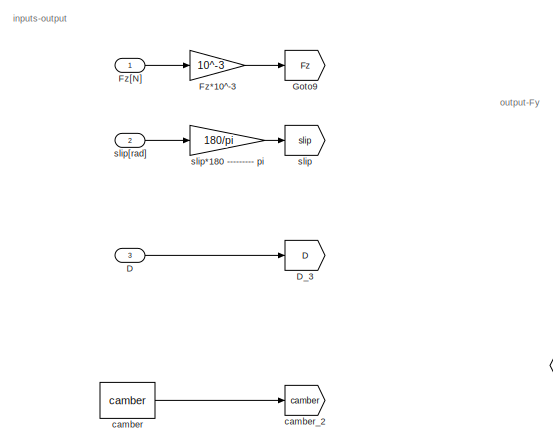
[diagram: DynamicModel/PacejkaF - part 1/4, top left region]
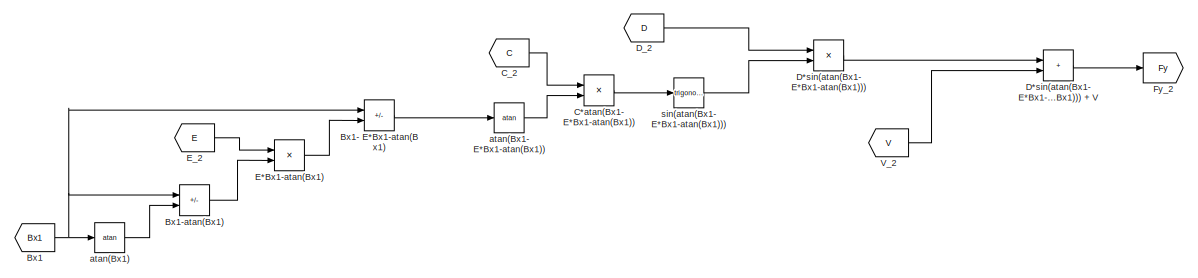
[diagram: DynamicModel/PacejkaF - part 2/4, top center region]
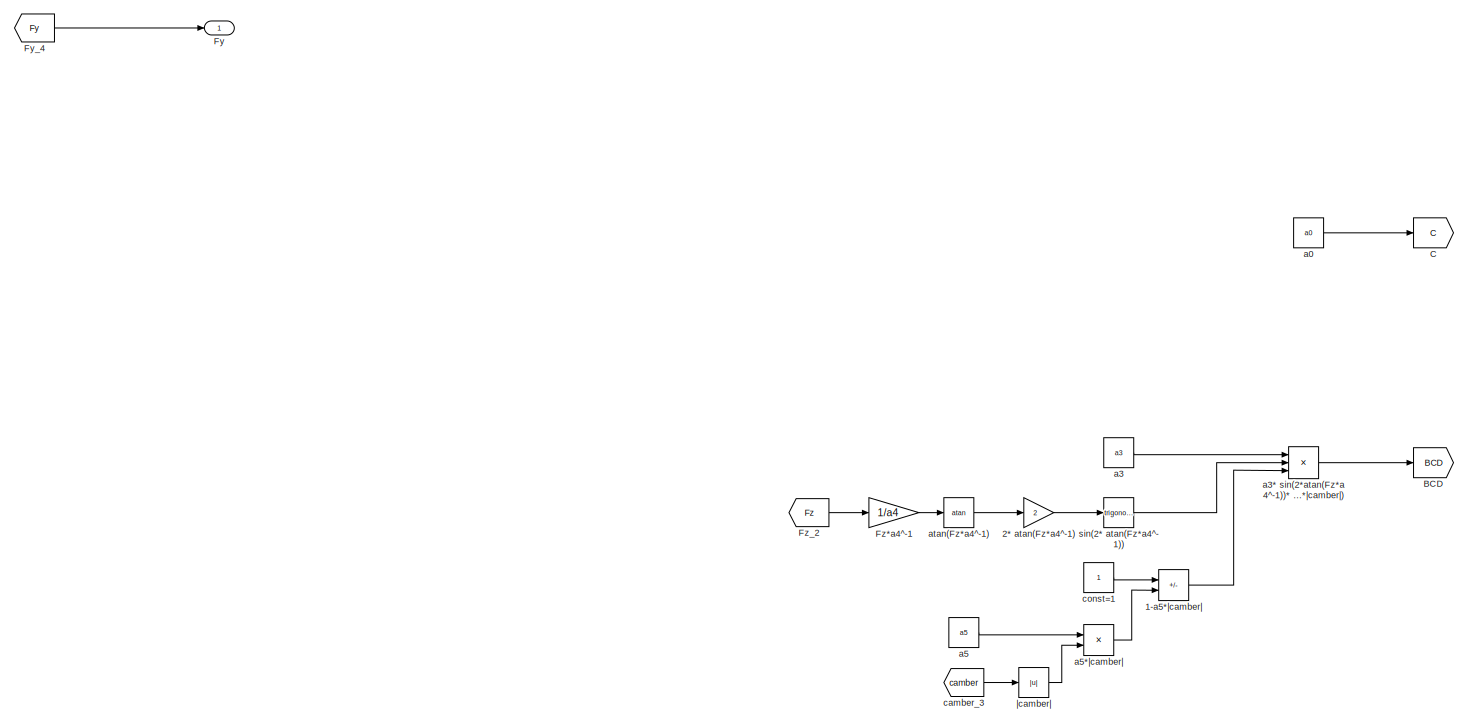
[diagram: DynamicModel/PacejkaF - part 3/4, full width, top band]
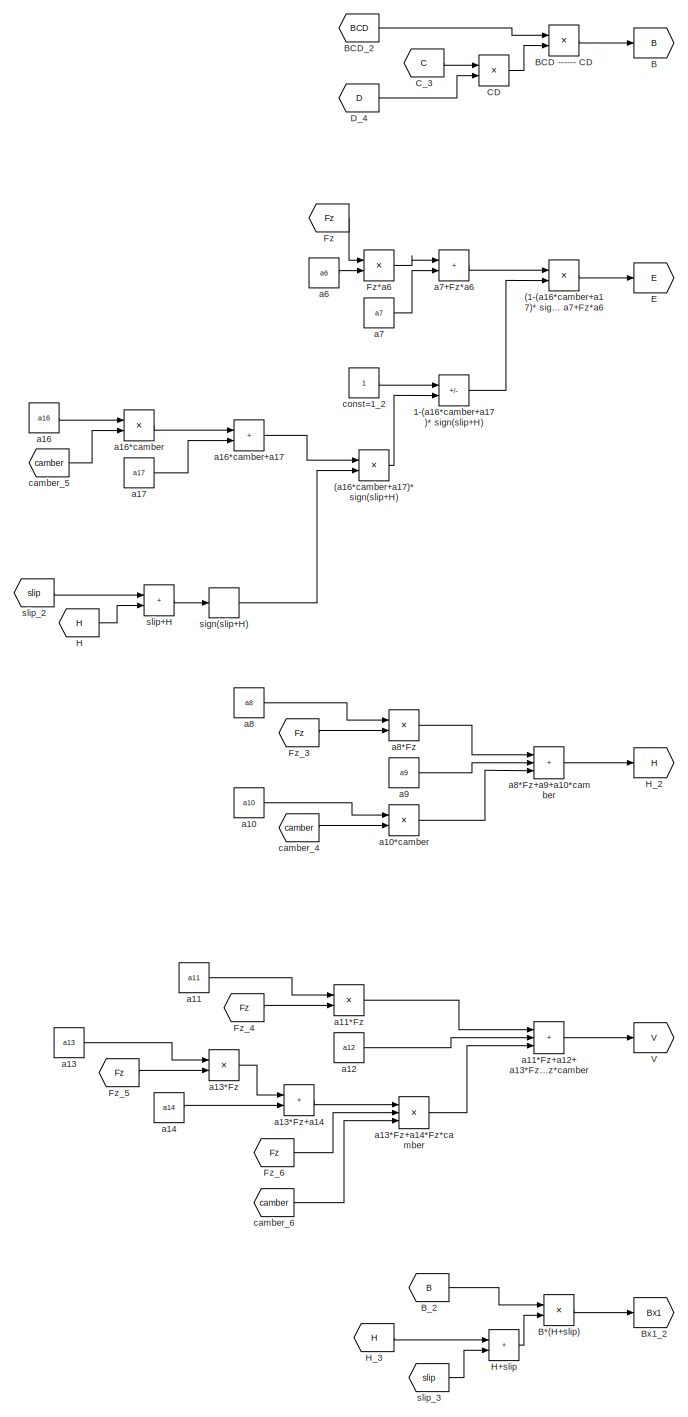
[diagram: DynamicModel/PacejkaF - part 4/4, bottom right region]
BLOCK [SubSystem] DynamicModel/PacejkaF
  Ports = [3, 1]
  RequestExecContextInheritance = off
BLOCK [Product] DynamicModel/PacejkaF/(1-(a16*camber+a17)* sign(slip+H))* a7+Fz*a6
  Ports = [2, 1]
BLOCK [Product] DynamicModel/PacejkaF/(a16*camber+a17)* sign(slip+H)
  Ports = [2, 1]
BLOCK [Sum] DynamicModel/PacejkaF/1-(a16*camber+a17)* sign(slip+H)
  IconShape = rectangular
  Inputs = +-
  Ports = [2, 1]
BLOCK [Sum] DynamicModel/PacejkaF/1-a5*|camber|
  IconShape = rectangular
  Inputs = +-
  Ports = [2, 1]
BLOCK [Gain] DynamicModel/PacejkaF/2* atan(Fz*a4^-1)
  Gain = 2
BLOCK [Goto] DynamicModel/PacejkaF/B
  GotoTag = B
BLOCK [Product] DynamicModel/PacejkaF/B*(H+slip)
  Ports = [2, 1]
BLOCK [Goto] DynamicModel/PacejkaF/BCD
  GotoTag = BCD
BLOCK [Product] DynamicModel/PacejkaF/BCD ------ CD
  Inputs = */
  Ports = [2, 1]
BLOCK [From] DynamicModel/PacejkaF/BCD_2
  GotoTag = BCD
BLOCK [From] DynamicModel/PacejkaF/B_2
  GotoTag = B
BLOCK [From] DynamicModel/PacejkaF/Bx1
  GotoTag = Bx1
BLOCK [Sum] DynamicModel/PacejkaF/Bx1- E*Bx1-atan(Bx1)
  IconShape = rectangular
  Inputs = +-
  Ports = [2, 1]
BLOCK [Sum] DynamicModel/PacejkaF/Bx1-atan(Bx1)
  IconShape = rectangular
  Inputs = +-
  Ports = [2, 1]
BLOCK [Goto] DynamicModel/PacejkaF/Bx1_2
  GotoTag = Bx1
BLOCK [Goto] DynamicModel/PacejkaF/C
  GotoTag = C
BLOCK [Product] DynamicModel/PacejkaF/C*atan(Bx1- E*Bx1-atan(Bx1))
  Ports = [2, 1]
BLOCK [Product] DynamicModel/PacejkaF/CD
  Ports = [2, 1]
BLOCK [From] DynamicModel/PacejkaF/C_2
  GotoTag = C
BLOCK [From] DynamicModel/PacejkaF/C_3
  GotoTag = C
BLOCK [Inport] DynamicModel/PacejkaF/D
  Port = 3
BLOCK [Product] DynamicModel/PacejkaF/D*sin(atan(Bx1- E*Bx1-atan(Bx1)))
  Ports = [2, 1]
BLOCK [Sum] DynamicModel/PacejkaF/D*sin(atan(Bx1- E*Bx1-atan(Bx1))) + V
  IconShape = rectangular
  Ports = [2, 1]
BLOCK [From] DynamicModel/PacejkaF/D_2
  GotoTag = D
BLOCK [Goto] DynamicModel/PacejkaF/D_3
  GotoTag = D
BLOCK [From] DynamicModel/PacejkaF/D_4
  GotoTag = D
BLOCK [Goto] DynamicModel/PacejkaF/E
  GotoTag = E
BLOCK [Product] DynamicModel/PacejkaF/E*Bx1-atan(Bx1)
  Ports = [2, 1]
BLOCK [From] DynamicModel/PacejkaF/E_2
  GotoTag = E
BLOCK [Outport] DynamicModel/PacejkaF/Fy
  Unit = N
BLOCK [Goto] DynamicModel/PacejkaF/Fy_2
  GotoTag = Fy
BLOCK [From] DynamicModel/PacejkaF/Fy_4
  GotoTag = Fy
BLOCK [From] DynamicModel/PacejkaF/Fz
  GotoTag = Fz
BLOCK [Gain] DynamicModel/PacejkaF/Fz*10^-3
  Gain = 10^-3
BLOCK [Gain] DynamicModel/PacejkaF/Fz*a4^-1
  Gain = 1/a4
BLOCK [Product] DynamicModel/PacejkaF/Fz*a6
  Ports = [2, 1]
BLOCK [Inport] DynamicModel/PacejkaF/Fz[N]
  Unit = N
BLOCK [From] DynamicModel/PacejkaF/Fz_2
  GotoTag = Fz
BLOCK [From] DynamicModel/PacejkaF/Fz_3
  GotoTag = Fz
BLOCK [From] DynamicModel/PacejkaF/Fz_4
  GotoTag = Fz
BLOCK [From] DynamicModel/PacejkaF/Fz_5
  GotoTag = Fz
BLOCK [From] DynamicModel/PacejkaF/Fz_6
  GotoTag = Fz
BLOCK [Goto] DynamicModel/PacejkaF/Goto9
  GotoTag = Fz
BLOCK [From] DynamicModel/PacejkaF/H
  GotoTag = H
BLOCK [Sum] DynamicModel/PacejkaF/H+slip
  IconShape = rectangular
  Ports = [2, 1]
BLOCK [Goto] DynamicModel/PacejkaF/H_2
  GotoTag = H
BLOCK [From] DynamicModel/PacejkaF/H_3
  GotoTag = H
BLOCK [Goto] DynamicModel/PacejkaF/V
  GotoTag = V
BLOCK [From] DynamicModel/PacejkaF/V_2
  GotoTag = V
BLOCK [Constant] DynamicModel/PacejkaF/a0
  Value = a0
BLOCK [Constant] DynamicModel/PacejkaF/a10
  Value = a10
BLOCK [Product] DynamicModel/PacejkaF/a10*camber
  Ports = [2, 1]
BLOCK [Constant] DynamicModel/PacejkaF/a11
  Value = a11
BLOCK [Product] DynamicModel/PacejkaF/a11*Fz
  Ports = [2, 1]
BLOCK [Sum] DynamicModel/PacejkaF/a11*Fz+a12+ a13*Fz+a14*Fz*camber
  IconShape = rectangular
  Inputs = +++
  Ports = [3, 1]
BLOCK [Constant] DynamicModel/PacejkaF/a12
  Value = a12
BLOCK [Constant] DynamicModel/PacejkaF/a13
  Value = a13
BLOCK [Product] DynamicModel/PacejkaF/a13*Fz
  Ports = [2, 1]
BLOCK [Sum] DynamicModel/PacejkaF/a13*Fz+a14
  IconShape = rectangular
  Ports = [2, 1]
BLOCK [Product] DynamicModel/PacejkaF/a13*Fz+a14*Fz*camber
  Inputs = 3
  Ports = [3, 1]
BLOCK [Constant] DynamicModel/PacejkaF/a14
  Value = a14
BLOCK [Constant] DynamicModel/PacejkaF/a16
  Value = a16
BLOCK [Product] DynamicModel/PacejkaF/a16*camber
  Ports = [2, 1]
BLOCK [Sum] DynamicModel/PacejkaF/a16*camber+a17
  IconShape = rectangular
  Ports = [2, 1]
BLOCK [Constant] DynamicModel/PacejkaF/a17
  Value = a17
BLOCK [Constant] DynamicModel/PacejkaF/a3
  Value = a3
BLOCK [Product] DynamicModel/PacejkaF/a3* sin(2*atan(Fz*a4^-1))* (1-a5*|camber|)
  Inputs = 3
  Ports = [3, 1]
BLOCK [Constant] DynamicModel/PacejkaF/a5
  Value = a5
BLOCK [Product] DynamicModel/PacejkaF/a5*|camber|
  Ports = [2, 1]
BLOCK [Constant] DynamicModel/PacejkaF/a6
  Value = a6
BLOCK [Constant] DynamicModel/PacejkaF/a7
  Value = a7
BLOCK [Sum] DynamicModel/PacejkaF/a7+Fz*a6
  IconShape = rectangular
  Ports = [2, 1]
BLOCK [Constant] DynamicModel/PacejkaF/a8
  Value = a8
BLOCK [Product] DynamicModel/PacejkaF/a8*Fz
  Ports = [2, 1]
BLOCK [Sum] DynamicModel/PacejkaF/a8*Fz+a9+a10*camber
  IconShape = rectangular
  Inputs = +++
  Ports = [3, 1]
BLOCK [Constant] DynamicModel/PacejkaF/a9
  Value = a9
BLOCK [Trigonometry] DynamicModel/PacejkaF/atan(Bx1)
  Operator = atan
  Ports = [1, 1]
BLOCK [Trigonometry] DynamicModel/PacejkaF/atan(Bx1- E*Bx1-atan(Bx1))
  Operator = atan
  Ports = [1, 1]
BLOCK [Trigonometry] DynamicModel/PacejkaF/atan(Fz*a4^-1)
  Operator = atan
  Ports = [1, 1]
BLOCK [Constant] DynamicModel/PacejkaF/camber
  Value = camber
BLOCK [Goto] DynamicModel/PacejkaF/camber_2
  GotoTag = camber
BLOCK [From] DynamicModel/PacejkaF/camber_3
  GotoTag = camber
BLOCK [From] DynamicModel/PacejkaF/camber_4
  GotoTag = camber
BLOCK [From] DynamicModel/PacejkaF/camber_5
  GotoTag = camber
BLOCK [From] DynamicModel/PacejkaF/camber_6
  GotoTag = camber
BLOCK [Constant] DynamicModel/PacejkaF/const=1
BLOCK [Constant] DynamicModel/PacejkaF/const=1_2
BLOCK [Signum] DynamicModel/PacejkaF/sign(slip+H)
  ZeroCross = off
BLOCK [Trigonometry] DynamicModel/PacejkaF/sin(2* atan(Fz*a4^-1))
  Ports = [1, 1]
BLOCK [Trigonometry] DynamicModel/PacejkaF/sin(atan(Bx1- E*Bx1-atan(Bx1)))
  Ports = [1, 1]
BLOCK [Goto] DynamicModel/PacejkaF/slip
  GotoTag = slip
BLOCK [Gain] DynamicModel/PacejkaF/slip*180 --------- pi
  Gain = 180/pi
BLOCK [Sum] DynamicModel/PacejkaF/slip+H
  IconShape = rectangular
  Ports = [2, 1]
BLOCK [Inport] DynamicModel/PacejkaF/slip[rad]
  Port = 2
  Unit = rad
BLOCK [From] DynamicModel/PacejkaF/slip_2
  GotoTag = slip
BLOCK [From] DynamicModel/PacejkaF/slip_3
  GotoTag = slip
BLOCK [Abs] DynamicModel/PacejkaF/|camber|
  SaturateOnIntegerOverflow = off
BLOCK [SubSystem] DynamicModel/PacejkaF1
  Commented = on
  Ports = [3, 1]
  RequestExecContextInheritance = off
BLOCK [Product] DynamicModel/PacejkaF1/(1-(a16*camber+a17)* sign(slip+H))* a7+Fz*a6
  Ports = [2, 1]
BLOCK [Product] DynamicModel/PacejkaF1/(a16*camber+a17)* sign(slip+H)
  Ports = [2, 1]
BLOCK [Sum] DynamicModel/PacejkaF1/1-(a16*camber+a17)* sign(slip+H)
  IconShape = rectangular
  Inputs = +-
  Ports = [2, 1]
BLOCK [Sum] DynamicModel/PacejkaF1/1-a5*|camber|
  IconShape = rectangular
  Inputs = +-
  Ports = [2, 1]
BLOCK [Gain] DynamicModel/PacejkaF1/2* atan(Fz*a4^-1)
  Gain = 2
BLOCK [Goto] DynamicModel/PacejkaF1/B
  GotoTag = B
BLOCK [Product] DynamicModel/PacejkaF1/B*(H+slip)
  Ports = [2, 1]
BLOCK [Goto] DynamicModel/PacejkaF1/BCD
  GotoTag = BCD
BLOCK [Product] DynamicModel/PacejkaF1/BCD ------ CD
  Inputs = */
  Ports = [2, 1]
BLOCK [From] DynamicModel/PacejkaF1/BCD_2
  GotoTag = BCD
BLOCK [From] DynamicModel/PacejkaF1/B_2
  GotoTag = B
BLOCK [From] DynamicModel/PacejkaF1/Bx1
  GotoTag = Bx1
BLOCK [Sum] DynamicModel/PacejkaF1/Bx1- E*Bx1-atan(Bx1)
  IconShape = rectangular
  Inputs = +-
  Ports = [2, 1]
BLOCK [Sum] DynamicModel/PacejkaF1/Bx1-atan(Bx1)
  IconShape = rectangular
  Inputs = +-
  Ports = [2, 1]
BLOCK [Goto] DynamicModel/PacejkaF1/Bx1_2
  GotoTag = Bx1
BLOCK [Goto] DynamicModel/PacejkaF1/C
  GotoTag = C
BLOCK [Product] DynamicModel/PacejkaF1/C*atan(Bx1- E*Bx1-atan(Bx1))
  Ports = [2, 1]
BLOCK [Product] DynamicModel/PacejkaF1/CD
  Ports = [2, 1]
BLOCK [From] DynamicModel/PacejkaF1/C_2
  GotoTag = C
BLOCK [From] DynamicModel/PacejkaF1/C_3
  GotoTag = C
BLOCK [Inport] DynamicModel/PacejkaF1/D
  Port = 3
BLOCK [Product] DynamicModel/PacejkaF1/D*sin(atan(Bx1- E*Bx1-atan(Bx1)))
  Ports = [2, 1]
BLOCK [Sum] DynamicModel/PacejkaF1/D*sin(atan(Bx1- E*Bx1-atan(Bx1))) + V
  IconShape = rectangular
  Ports = [2, 1]
BLOCK [From] DynamicModel/PacejkaF1/D_2
  GotoTag = D
BLOCK [Goto] DynamicModel/PacejkaF1/D_3
  GotoTag = D
BLOCK [From] DynamicModel/PacejkaF1/D_4
  GotoTag = D
BLOCK [Goto] DynamicModel/PacejkaF1/E
  GotoTag = E
BLOCK [Product] DynamicModel/PacejkaF1/E*Bx1-atan(Bx1)
  Ports = [2, 1]
BLOCK [From] DynamicModel/PacejkaF1/E_2
  GotoTag = E
BLOCK [Outport] DynamicModel/PacejkaF1/Fy
  Unit = N
BLOCK [Goto] DynamicModel/PacejkaF1/Fy_2
  GotoTag = Fy
BLOCK [From] DynamicModel/PacejkaF1/Fy_4
  GotoTag = Fy
BLOCK [From] DynamicModel/PacejkaF1/Fz
  GotoTag = Fz
BLOCK [Gain] DynamicModel/PacejkaF1/Fz*10^-3
  Gain = 10^-3
BLOCK [Gain] DynamicModel/PacejkaF1/Fz*a4^-1
  Gain = 1/a4
BLOCK [Product] DynamicModel/PacejkaF1/Fz*a6
  Ports = [2, 1]
BLOCK [Inport] DynamicModel/PacejkaF1/Fz[N]
  Unit = N
BLOCK [From] DynamicModel/PacejkaF1/Fz_2
  GotoTag = Fz
BLOCK [From] DynamicModel/PacejkaF1/Fz_3
  GotoTag = Fz
BLOCK [From] DynamicModel/PacejkaF1/Fz_4
  GotoTag = Fz
BLOCK [From] DynamicModel/PacejkaF1/Fz_5
  GotoTag = Fz
BLOCK [From] DynamicModel/PacejkaF1/Fz_6
  GotoTag = Fz
BLOCK [Goto] DynamicModel/PacejkaF1/Goto9
  GotoTag = Fz
BLOCK [From] DynamicModel/PacejkaF1/H
  GotoTag = H
BLOCK [Sum] DynamicModel/PacejkaF1/H+slip
  IconShape = rectangular
  Ports = [2, 1]
BLOCK [Goto] DynamicModel/PacejkaF1/H_2
  GotoTag = H
BLOCK [From] DynamicModel/PacejkaF1/H_3
  GotoTag = H
BLOCK [Goto] DynamicModel/PacejkaF1/V
  GotoTag = V
BLOCK [From] DynamicModel/PacejkaF1/V_2
  GotoTag = V
BLOCK [Constant] DynamicModel/PacejkaF1/a0
  Value = a0
BLOCK [Constant] DynamicModel/PacejkaF1/a10
  Value = a10
BLOCK [Product] DynamicModel/PacejkaF1/a10*camber
  Ports = [2, 1]
BLOCK [Constant] DynamicModel/PacejkaF1/a11
  Value = a11
BLOCK [Product] DynamicModel/PacejkaF1/a11*Fz
  Ports = [2, 1]
BLOCK [Sum] DynamicModel/PacejkaF1/a11*Fz+a12+ a13*Fz+a14*Fz*camber
  IconShape = rectangular
  Inputs = +++
  Ports = [3, 1]
BLOCK [Constant] DynamicModel/PacejkaF1/a12
  Value = a12
BLOCK [Constant] DynamicModel/PacejkaF1/a13
  Value = a13
BLOCK [Product] DynamicModel/PacejkaF1/a13*Fz
  Ports = [2, 1]
BLOCK [Sum] DynamicModel/PacejkaF1/a13*Fz+a14
  IconShape = rectangular
  Ports = [2, 1]
BLOCK [Product] DynamicModel/PacejkaF1/a13*Fz+a14*Fz*camber
  Inputs = 3
  Ports = [3, 1]
BLOCK [Constant] DynamicModel/PacejkaF1/a14
  Value = a14
BLOCK [Constant] DynamicModel/PacejkaF1/a16
  Value = a16
BLOCK [Product] DynamicModel/PacejkaF1/a16*camber
  Ports = [2, 1]
BLOCK [Sum] DynamicModel/PacejkaF1/a16*camber+a17
  IconShape = rectangular
  Ports = [2, 1]
BLOCK [Constant] DynamicModel/PacejkaF1/a17
  Value = a17
BLOCK [Constant] DynamicModel/PacejkaF1/a3
  Value = a3
BLOCK [Product] DynamicModel/PacejkaF1/a3* sin(2*atan(Fz*a4^-1))* (1-a5*|camber|)
  Inputs = 3
  Ports = [3, 1]
BLOCK [Constant] DynamicModel/PacejkaF1/a5
  Value = a5
BLOCK [Product] DynamicModel/PacejkaF1/a5*|camber|
  Ports = [2, 1]
BLOCK [Constant] DynamicModel/PacejkaF1/a6
  Value = a6
BLOCK [Constant] DynamicModel/PacejkaF1/a7
  Value = a7
BLOCK [Sum] DynamicModel/PacejkaF1/a7+Fz*a6
  IconShape = rectangular
  Ports = [2, 1]
BLOCK [Constant] DynamicModel/PacejkaF1/a8
  Value = a8
BLOCK [Product] DynamicModel/PacejkaF1/a8*Fz
  Ports = [2, 1]
BLOCK [Sum] DynamicModel/PacejkaF1/a8*Fz+a9+a10*camber
  IconShape = rectangular
  Inputs = +++
  Ports = [3, 1]
BLOCK [Constant] DynamicModel/PacejkaF1/a9
  Value = a9
BLOCK [Trigonometry] DynamicModel/PacejkaF1/atan(Bx1)
  Operator = atan
  Ports = [1, 1]
BLOCK [Trigonometry] DynamicModel/PacejkaF1/atan(Bx1- E*Bx1-atan(Bx1))
  Operator = atan
  Ports = [1, 1]
BLOCK [Trigonometry] DynamicModel/PacejkaF1/atan(Fz*a4^-1)
  Operator = atan
  Ports = [1, 1]
BLOCK [Constant] DynamicModel/PacejkaF1/camber
  Value = camber
BLOCK [Goto] DynamicModel/PacejkaF1/camber_2
  GotoTag = camber
BLOCK [From] DynamicModel/PacejkaF1/camber_3
  GotoTag = camber
BLOCK [From] DynamicModel/PacejkaF1/camber_4
  GotoTag = camber
BLOCK [From] DynamicModel/PacejkaF1/camber_5
  GotoTag = camber
BLOCK [From] DynamicModel/PacejkaF1/camber_6
  GotoTag = camber
BLOCK [Constant] DynamicModel/PacejkaF1/const=1
BLOCK [Constant] DynamicModel/PacejkaF1/const=1_2
BLOCK [Signum] DynamicModel/PacejkaF1/sign(slip+H)
  ZeroCross = off
BLOCK [Trigonometry] DynamicModel/PacejkaF1/sin(2* atan(Fz*a4^-1))
  Ports = [1, 1]
BLOCK [Trigonometry] DynamicModel/PacejkaF1/sin(atan(Bx1- E*Bx1-atan(Bx1)))
  Ports = [1, 1]
BLOCK [Goto] DynamicModel/PacejkaF1/slip
  GotoTag = slip
BLOCK [Gain] DynamicModel/PacejkaF1/slip*180 --------- pi
  Gain = 180/pi
BLOCK [Sum] DynamicModel/PacejkaF1/slip+H
  IconShape = rectangular
  Ports = [2, 1]
BLOCK [Inport] DynamicModel/PacejkaF1/slip[rad]
  Port = 2
  Unit = rad
BLOCK [From] DynamicModel/PacejkaF1/slip_2
  GotoTag = slip
BLOCK [From] DynamicModel/PacejkaF1/slip_3
  GotoTag = slip
BLOCK [Abs] DynamicModel/PacejkaF1/|camber|
  SaturateOnIntegerOverflow = off
BLOCK [SubSystem] DynamicModel/PacejkaR
  Ports = [3, 1]
  RequestExecContextInheritance = off
BLOCK [Product] DynamicModel/PacejkaR/(1-(a16*camber+a17)* sign(slip+H))* a7+Fz*a6
  Ports = [2, 1]
BLOCK [Product] DynamicModel/PacejkaR/(a16*camber+a17)* sign(slip+H)
  Ports = [2, 1]
BLOCK [Sum] DynamicModel/PacejkaR/1-(a16*camber+a17)* sign(slip+H)
  IconShape = rectangular
  Inputs = +-
  Ports = [2, 1]
BLOCK [Sum] DynamicModel/PacejkaR/1-a5*|camber|
  IconShape = rectangular
  Inputs = +-
  Ports = [2, 1]
BLOCK [Gain] DynamicModel/PacejkaR/2* atan(Fz*a4^-1)
  Gain = 2
BLOCK [Goto] DynamicModel/PacejkaR/B
  GotoTag = B
BLOCK [Product] DynamicModel/PacejkaR/B*(H+slip)
  Ports = [2, 1]
BLOCK [Goto] DynamicModel/PacejkaR/BCD
  GotoTag = BCD
BLOCK [Product] DynamicModel/PacejkaR/BCD ------ CD
  Inputs = */
  Ports = [2, 1]
BLOCK [From] DynamicModel/PacejkaR/BCD_2
  GotoTag = BCD
BLOCK [From] DynamicModel/PacejkaR/B_2
  GotoTag = B
BLOCK [From] DynamicModel/PacejkaR/Bx1
  GotoTag = Bx1
BLOCK [Sum] DynamicModel/PacejkaR/Bx1- E*Bx1-atan(Bx1)
  IconShape = rectangular
  Inputs = +-
  Ports = [2, 1]
BLOCK [Sum] DynamicModel/PacejkaR/Bx1-atan(Bx1)
  IconShape = rectangular
  Inputs = +-
  Ports = [2, 1]
BLOCK [Goto] DynamicModel/PacejkaR/Bx1_2
  GotoTag = Bx1
BLOCK [Goto] DynamicModel/PacejkaR/C
  GotoTag = C
BLOCK [Product] DynamicModel/PacejkaR/C*atan(Bx1- E*Bx1-atan(Bx1))
  Ports = [2, 1]
BLOCK [Product] DynamicModel/PacejkaR/CD
  Ports = [2, 1]
BLOCK [From] DynamicModel/PacejkaR/C_2
  GotoTag = C
BLOCK [From] DynamicModel/PacejkaR/C_3
  GotoTag = C
BLOCK [Inport] DynamicModel/PacejkaR/D
  Port = 3
BLOCK [Product] DynamicModel/PacejkaR/D*sin(atan(Bx1- E*Bx1-atan(Bx1)))
  Ports = [2, 1]
BLOCK [Sum] DynamicModel/PacejkaR/D*sin(atan(Bx1- E*Bx1-atan(Bx1))) + V
  IconShape = rectangular
  Ports = [2, 1]
BLOCK [From] DynamicModel/PacejkaR/D_2
  GotoTag = D
BLOCK [Goto] DynamicModel/PacejkaR/D_3
  GotoTag = D
BLOCK [From] DynamicModel/PacejkaR/D_4
  GotoTag = D
BLOCK [Goto] DynamicModel/PacejkaR/E
  GotoTag = E
BLOCK [Product] DynamicModel/PacejkaR/E*Bx1-atan(Bx1)
  Ports = [2, 1]
BLOCK [From] DynamicModel/PacejkaR/E_2
  GotoTag = E
BLOCK [Outport] DynamicModel/PacejkaR/Fy
  Unit = N
BLOCK [Goto] DynamicModel/PacejkaR/Fy_2
  GotoTag = Fy
BLOCK [From] DynamicModel/PacejkaR/Fy_4
  GotoTag = Fy
BLOCK [From] DynamicModel/PacejkaR/Fz
  GotoTag = Fz
BLOCK [Gain] DynamicModel/PacejkaR/Fz*10^-3
  Gain = 10^-3
BLOCK [Gain] DynamicModel/PacejkaR/Fz*a4^-1
  Gain = 1/a4
BLOCK [Product] DynamicModel/PacejkaR/Fz*a6
  Ports = [2, 1]
BLOCK [Inport] DynamicModel/PacejkaR/Fz[N]
  Unit = N
BLOCK [From] DynamicModel/PacejkaR/Fz_2
  GotoTag = Fz
BLOCK [From] DynamicModel/PacejkaR/Fz_3
  GotoTag = Fz
BLOCK [From] DynamicModel/PacejkaR/Fz_4
  GotoTag = Fz
BLOCK [From] DynamicModel/PacejkaR/Fz_5
  GotoTag = Fz
BLOCK [From] DynamicModel/PacejkaR/Fz_6
  GotoTag = Fz
BLOCK [Goto] DynamicModel/PacejkaR/Goto9
  GotoTag = Fz
BLOCK [From] DynamicModel/PacejkaR/H
  GotoTag = H
BLOCK [Sum] DynamicModel/PacejkaR/H+slip
  IconShape = rectangular
  Ports = [2, 1]
BLOCK [Goto] DynamicModel/PacejkaR/H_2
  GotoTag = H
BLOCK [From] DynamicModel/PacejkaR/H_3
  GotoTag = H
BLOCK [Goto] DynamicModel/PacejkaR/V
  GotoTag = V
BLOCK [From] DynamicModel/PacejkaR/V_2
  GotoTag = V
BLOCK [Constant] DynamicModel/PacejkaR/a0
  Value = a0
BLOCK [Constant] DynamicModel/PacejkaR/a10
  Value = a10
BLOCK [Product] DynamicModel/PacejkaR/a10*camber
  Ports = [2, 1]
BLOCK [Constant] DynamicModel/PacejkaR/a11
  Value = a11
BLOCK [Product] DynamicModel/PacejkaR/a11*Fz
  Ports = [2, 1]
BLOCK [Sum] DynamicModel/PacejkaR/a11*Fz+a12+ a13*Fz+a14*Fz*camber
  IconShape = rectangular
  Inputs = +++
  Ports = [3, 1]
BLOCK [Constant] DynamicModel/PacejkaR/a12
  Value = a12
BLOCK [Constant] DynamicModel/PacejkaR/a13
  Value = a13
BLOCK [Product] DynamicModel/PacejkaR/a13*Fz
  Ports = [2, 1]
BLOCK [Sum] DynamicModel/PacejkaR/a13*Fz+a14
  IconShape = rectangular
  Ports = [2, 1]
BLOCK [Product] DynamicModel/PacejkaR/a13*Fz+a14*Fz*camber
  Inputs = 3
  Ports = [3, 1]
BLOCK [Constant] DynamicModel/PacejkaR/a14
  Value = a14
BLOCK [Constant] DynamicModel/PacejkaR/a16
  Value = a16
BLOCK [Product] DynamicModel/PacejkaR/a16*camber
  Ports = [2, 1]
BLOCK [Sum] DynamicModel/PacejkaR/a16*camber+a17
  IconShape = rectangular
  Ports = [2, 1]
BLOCK [Constant] DynamicModel/PacejkaR/a17
  Value = a17
BLOCK [Constant] DynamicModel/PacejkaR/a3
  Value = a3
BLOCK [Product] DynamicModel/PacejkaR/a3* sin(2*atan(Fz*a4^-1))* (1-a5*|camber|)
  Inputs = 3
  Ports = [3, 1]
BLOCK [Constant] DynamicModel/PacejkaR/a5
  Value = a5
BLOCK [Product] DynamicModel/PacejkaR/a5*|camber|
  Ports = [2, 1]
BLOCK [Constant] DynamicModel/PacejkaR/a6
  Value = a6
BLOCK [Constant] DynamicModel/PacejkaR/a7
  Value = a7
BLOCK [Sum] DynamicModel/PacejkaR/a7+Fz*a6
  IconShape = rectangular
  Ports = [2, 1]
BLOCK [Constant] DynamicModel/PacejkaR/a8
  Value = a8
BLOCK [Product] DynamicModel/PacejkaR/a8*Fz
  Ports = [2, 1]
BLOCK [Sum] DynamicModel/PacejkaR/a8*Fz+a9+a10*camber
  IconShape = rectangular
  Inputs = +++
  Ports = [3, 1]
BLOCK [Constant] DynamicModel/PacejkaR/a9
  Value = a9
BLOCK [Trigonometry] DynamicModel/PacejkaR/atan(Bx1)
  Operator = atan
  Ports = [1, 1]
BLOCK [Trigonometry] DynamicModel/PacejkaR/atan(Bx1- E*Bx1-atan(Bx1))
  Operator = atan
  Ports = [1, 1]
BLOCK [Trigonometry] DynamicModel/PacejkaR/atan(Fz*a4^-1)
  Operator = atan
  Ports = [1, 1]
BLOCK [Constant] DynamicModel/PacejkaR/camber
  Value = camber
BLOCK [Goto] DynamicModel/PacejkaR/camber_2
  GotoTag = camber
BLOCK [From] DynamicModel/PacejkaR/camber_3
  GotoTag = camber
BLOCK [From] DynamicModel/PacejkaR/camber_4
  GotoTag = camber
BLOCK [From] DynamicModel/PacejkaR/camber_5
  GotoTag = camber
BLOCK [From] DynamicModel/PacejkaR/camber_6
  GotoTag = camber
BLOCK [Constant] DynamicModel/PacejkaR/const=1
BLOCK [Constant] DynamicModel/PacejkaR/const=1_2
BLOCK [Signum] DynamicModel/PacejkaR/sign(slip+H)
  ZeroCross = off
BLOCK [Trigonometry] DynamicModel/PacejkaR/sin(2* atan(Fz*a4^-1))
  Ports = [1, 1]
BLOCK [Trigonometry] DynamicModel/PacejkaR/sin(atan(Bx1- E*Bx1-atan(Bx1)))
  Ports = [1, 1]
BLOCK [Goto] DynamicModel/PacejkaR/slip
  GotoTag = slip
BLOCK [Gain] DynamicModel/PacejkaR/slip*180 --------- pi
  Gain = 180/pi
BLOCK [Sum] DynamicModel/PacejkaR/slip+H
  IconShape = rectangular
  Ports = [2, 1]
BLOCK [Inport] DynamicModel/PacejkaR/slip[rad]
  Port = 2
  Unit = rad
BLOCK [From] DynamicModel/PacejkaR/slip_2
  GotoTag = slip
BLOCK [From] DynamicModel/PacejkaR/slip_3
  GotoTag = slip
BLOCK [Abs] DynamicModel/PacejkaR/|camber|
  SaturateOnIntegerOverflow = off
BLOCK [Goto] DynamicModel/RearWear
  GotoTag = RearWear
BLOCK [Gain] DynamicModel/RearWearDot
  Gain = K_wear/TyreContactAreaRear
BLOCK [Integrator] DynamicModel/RearWearIntegrator
  Ports = [1, 1]
BLOCK [From] DynamicModel/RearWear_3
  GotoTag = RearWear
BLOCK [From] DynamicModel/Rear_Wear
  GotoTag = RearWear
BLOCK [Gain] DynamicModel/Rear_Wear*10^9
  Gain = 10^9
BLOCK [Reference] DynamicModel/Saturation Dynamic  REF=simulink/Discontinuities/Saturation
Dynamic
  Ports = [3, 1]
  SourceBlock = simulink/Discontinuities/Saturation\nDynamic
  SourceProductBaseCode = SL
  SourceType = Saturation Dynamic
BLOCK [Reference] DynamicModel/Saturation Dynamic1  REF=simulink/Discontinuities/Saturation
Dynamic
  Ports = [3, 1]
  SourceBlock = simulink/Discontinuities/Saturation\nDynamic
  SourceProductBaseCode = SL
  SourceType = Saturation Dynamic
BLOCK [SubSystem] DynamicModel/WindEffect
  ErrorFcn = Stateflow.Translate.translate
  PermitHierarchicalResolution = ExplicitOnly
  Ports = [11, 1]
  RequestExecContextInheritance = off
  SFBlockType = MATLAB Function
  TreatAsAtomicUnit = on
BLOCK [Demux] DynamicModel/WindEffect/ Demux 
  Outputs = 1
  Ports = [1, 1]
BLOCK [S-Function] DynamicModel/WindEffect/ SFunction 
  EnableBusSupport = on
  FunctionName = sf_sfun
  PortCounts = [11 2]
  Ports = [11, 2]
  SFcnIsStateOwnerBlock = off
  SFunctionDeploymentMode = off
  Tag = Stateflow S-Function 5
BLOCK [Terminator] DynamicModel/WindEffect/ Terminator 
BLOCK [Outport] DynamicModel/WindEffect/aerodynamic_coeff
BLOCK [Inport] DynamicModel/WindEffect/alpha
  Port = 9
BLOCK [Inport] DynamicModel/WindEffect/curveCenters
  Port = 10
BLOCK [Inport] DynamicModel/WindEffect/distanceThreshold
  Port = 7
BLOCK [Inport] DynamicModel/WindEffect/ego_x
  Port = 3
BLOCK [Inport] DynamicModel/WindEffect/ego_y
  Port = 4
BLOCK [Inport] DynamicModel/WindEffect/opp_x
  Port = 5
BLOCK [Inport] DynamicModel/WindEffect/opp_y
  Port = 6
BLOCK [Inport] DynamicModel/WindEffect/overlapThreshold
  Port = 8
BLOCK [Inport] DynamicModel/WindEffect/rho_0
BLOCK [Inport] DynamicModel/WindEffect/rho_1
  Port = 2
BLOCK [Inport] DynamicModel/WindEffect/slipstreamON
  Port = 11
BLOCK [Reference] DynamicModel/XY Graph  REF=simulink/Sinks/XY Graph
  Commented = on
  Ports = [2]
  SourceBlock = simulink/Sinks/XY Graph
  SourceProductBaseCode = SL
  SourceType = XY scope.
BLOCK [Product] DynamicModel/a*F_xF*sin(delta)
  Inputs = 3
  Ports = [3, 1]
BLOCK [Sum] DynamicModel/a*F_xF*sin(delta)+ a*F_yF*cos(delta)+ b*F_yR
  IconShape = rectangular
  Inputs = ++-
  NameLocation = top
  Ports = [3, 1]
BLOCK [Product] DynamicModel/a*F_yF*cos(delta)
  Inputs = 3
  Ports = [3, 1]
BLOCK [Gain] DynamicModel/a*x6
  Gain = a
BLOCK [Sum] DynamicModel/a*x6+vT*sin(x5)
  IconShape = rectangular
  Ports = [2, 1]
BLOCK [Product] DynamicModel/a*x6+vT*sin(x5) -------------------- vT*cos(x5)
  Inputs = */
  Ports = [2, 1]
BLOCK [Outport] DynamicModel/acc[ms^-2]
  Port = 11
  Unit = m/s^2
BLOCK [Constant] DynamicModel/alpha
  Value = alpha
BLOCK [Reference] DynamicModel/alpha-1+1  REF=simulink/Sources/Ramp
  Commented = on
  Ports = [0, 1]
  SourceBlock = simulink/Sources/Ramp
  SourceProductBaseCode = SL
  SourceType = Ramp
BLOCK [Trigonometry] DynamicModel/atan(-b*x6+vT*sin(x5) -------------------- vT*cos(x5))
  Operator = atan
  Ports = [1, 1]
BLOCK [Trigonometry] DynamicModel/atan(a*x6+vT*sin(x5) -------------------- vT*cos(x5))
  Operator = atan
  Ports = [1, 1]
BLOCK [Product] DynamicModel/b*F_yR
  Ports = [2, 1]
BLOCK [Gain] DynamicModel/b*x6
  Gain = b
BLOCK [Product] DynamicModel/b*x6+vT*sin(x5) -------------------- vT*cos(x5)
  Inputs = */
  Ports = [2, 1]
BLOCK [Constant] DynamicModel/bankingAngle
  Value = turn
BLOCK [Constant] DynamicModel/bankingThreshL
  Value = longStraight
BLOCK [Constant] DynamicModel/bankingThreshS
  Value = shortStraight
BLOCK [Gain] DynamicModel/bankingToRad
  Gain = pi/180
BLOCK [Outport] DynamicModel/body slip angle[rad]
  Port = 7
  Unit = rad
BLOCK [From] DynamicModel/body_slip
  GotoTag = x5_slip_angle
BLOCK [From] DynamicModel/body_slip_2
  GotoTag = x5_slip_angle
BLOCK [From] DynamicModel/body_slip_3
  GotoTag = x5_slip_angle
BLOCK [From] DynamicModel/body_slip_4
  GotoTag = x5_slip_angle
BLOCK [From] DynamicModel/body_slip_8
  GotoTag = x5_slip_angle
BLOCK [Constant] DynamicModel/c_fuel
  Value = C_fuel
BLOCK [Constant] DynamicModel/const=-5.625
  Value = -5.625
BLOCK [Constant] DynamicModel/const=0
  Value = 0
BLOCK [Constant] DynamicModel/const=0_2
  Value = 0
BLOCK [Constant] DynamicModel/const=0_5
  Commented = on
  Value = 0
BLOCK [Constant] DynamicModel/const=10
  Value = 10
BLOCK [Constant] DynamicModel/const=2
  Value = 2
BLOCK [Constant] DynamicModel/const=2_2
  Value = 2
BLOCK [Constant] DynamicModel/const=2_3
  Value = 2
BLOCK [Constant] DynamicModel/const=2_4
  Value = 2
BLOCK [Constant] DynamicModel/const=2_5
  Value = 2
BLOCK [Constant] DynamicModel/const=2_6
  Value = 2
BLOCK [Constant] DynamicModel/const=Fz
  Commented = on
  Value = 6000
BLOCK [Constant] DynamicModel/const=a
  Value = a
BLOCK [Constant] DynamicModel/const=b
  Value = b
BLOCK [Gain] DynamicModel/const=g
  Gain = g
BLOCK [Trigonometry] DynamicModel/cos(delta)_2
  Operator = cos
  Ports = [1, 1]
BLOCK [Trigonometry] DynamicModel/cos(x3+x5)
  Operator = cos
  Ports = [1, 1]
BLOCK [Trigonometry] DynamicModel/cos(x5)
  Operator = cos
  Ports = [1, 1]
BLOCK [Trigonometry] DynamicModel/cos(x5)_2
  Operator = cos
  Ports = [1, 1]
BLOCK [Trigonometry] DynamicModel/cos(x5)_3
  Operator = cos
  Ports = [1, 1]
BLOCK [Trigonometry] DynamicModel/cos(x5-delta)
  Operator = cos
  Ports = [1, 1]
BLOCK [Trigonometry] DynamicModel/cos(x5-delta)_2
  Operator = cos
  Ports = [1, 1]
BLOCK [Constant] DynamicModel/curveCenters
  Value = curveCenters
BLOCK [Constant] DynamicModel/curveCenters_2
  Value = curveCenters
BLOCK [Constant] DynamicModel/dTresh
  Value = distanceThreshold
BLOCK [Goto] DynamicModel/delta
  GotoTag = delta
BLOCK [From] DynamicModel/delta_2
  GotoTag = delta
BLOCK [From] DynamicModel/delta_3
  GotoTag = delta
BLOCK [From] DynamicModel/delta_4
  GotoTag = delta
BLOCK [From] DynamicModel/delta_5
  GotoTag = delta
BLOCK [Outport] DynamicModel/frontTyreWear[m^3]
  Port = 15
  Unit = m^3
BLOCK [Gain] DynamicModel/g*sin(gamma)
  Gain = g
BLOCK [From] DynamicModel/gamma
  GotoTag = gamma
BLOCK [Outport] DynamicModel/gamma[rad]
  Port = 20
  Unit = rad
BLOCK [Goto] DynamicModel/gamma_2
  GotoTag = gamma
BLOCK [From] DynamicModel/gamma_3
  GotoTag = gamma
BLOCK [Goto] DynamicModel/mT
  GotoTag = mT
BLOCK [Product] DynamicModel/mT*vT
  Ports = [2, 1]
BLOCK [Product] DynamicModel/mT*vt*x6
  Inputs = 3
  Ports = [3, 1]
BLOCK [Sum] DynamicModel/mT+F_lift
  IconShape = rectangular
  Ports = [2, 1]
BLOCK [From] DynamicModel/mT_2
  GotoTag = mT
BLOCK [From] DynamicModel/mT_3
  GotoTag = mT
BLOCK [From] DynamicModel/mT_4
  GotoTag = mT
BLOCK [From] DynamicModel/mT_5
  GotoTag = mT
BLOCK [From] DynamicModel/mT_6
  GotoTag = mT
BLOCK [From] DynamicModel/mT_7
  GotoTag = mT
BLOCK [Goto] DynamicModel/mT_dot
  GotoTag = mTdot
BLOCK [UnaryMinus] DynamicModel/mTdot_2
BLOCK [From] DynamicModel/mTdot_3
  GotoTag = mTdot
BLOCK [Integrator] DynamicModel/mTintegrator
  InitialCondition = mT
  LimitOutput = on
  LowerSaturationLimit = mT - m_fuel
  Ports = [1, 1]
  UpperSaturationLimit = mT
BLOCK [Outport] DynamicModel/mass[kg]
  Port = 13
  Unit = kg
BLOCK [Constant] DynamicModel/oTresh
  Value = overlapThreshold
BLOCK [Outport] DynamicModel/power
  Port = 12
  Unit = watt
BLOCK [Outport] DynamicModel/rearTyreWear[m^3]
  Port = 14
  Unit = m^3
BLOCK [From] DynamicModel/rho
  GotoTag = rho
BLOCK [Gain] DynamicModel/rho*area*Cz*0.5
  Gain = Area*Cz*0.5
BLOCK [Gain] DynamicModel/rho*area*cx*0.5
  Gain = Area*Cx*0.5
BLOCK [Constant] DynamicModel/rho_0
  Value = rho_0
BLOCK [Constant] DynamicModel/rho_1
  Value = rho_1
BLOCK [From] DynamicModel/rho_2
  GotoTag = rho
BLOCK [Goto] DynamicModel/rho_3
  GotoTag = rho
BLOCK [Trigonometry] DynamicModel/sin(delta)_2
  Ports = [1, 1]
BLOCK [Trigonometry] DynamicModel/sin(gamma)
  Ports = [1, 1]
BLOCK [Trigonometry] DynamicModel/sin(x3+x5)
  Ports = [1, 1]
BLOCK [Trigonometry] DynamicModel/sin(x5)
  Ports = [1, 1]
BLOCK [Trigonometry] DynamicModel/sin(x5)_2
  Ports = [1, 1]
BLOCK [Trigonometry] DynamicModel/sin(x5)_3
  Ports = [1, 1]
BLOCK [Trigonometry] DynamicModel/sin(x5)_4
  Ports = [1, 1]
BLOCK [Trigonometry] DynamicModel/sin(x5-delta)
  Ports = [1, 1]
BLOCK [Trigonometry] DynamicModel/sin(x5-delta)_2
  Ports = [1, 1]
BLOCK [From] DynamicModel/slipF_2
  GotoTag = slip_angle_F
BLOCK [From] DynamicModel/slipR_2
  GotoTag = slip_angle_R
BLOCK [Outport] DynamicModel/slip_angleF[rad]
  Port = 16
  Unit = rad
BLOCK [Outport] DynamicModel/slip_angleR[rad]
  Port = 17
  Unit = rad
BLOCK [From] DynamicModel/slip_angle_F
  GotoTag = slip_angle_F
BLOCK [Goto] DynamicModel/slip_angle_F_2
  GotoTag = slip_angle_F
BLOCK [Sum] DynamicModel/slip_angle_F_3
  IconShape = rectangular
  Inputs = +-
  Ports = [2, 1]
BLOCK [From] DynamicModel/slip_angle_R
  GotoTag = slip_angle_R
BLOCK [Goto] DynamicModel/slip_angle_R_2
  GotoTag = slip_angle_R
BLOCK [Constant] DynamicModel/slipstreamON-OFF
  Value = slipstreamON
BLOCK [Sqrt] DynamicModel/sqrt(FxF^2+FyF^2)
BLOCK [Sqrt] DynamicModel/sqrt(FxR^2+FyR^2)
BLOCK [Inport] DynamicModel/steering angle[rad]
  Port = 3
  Unit = rad
BLOCK [Switch] DynamicModel/switch_FxF-0
  InputSameDT = off
  SaturateOnIntegerOverflow = off
BLOCK [Switch] DynamicModel/switch_FxR-0
  InputSameDT = off
  SaturateOnIntegerOverflow = off
BLOCK [Gain] DynamicModel/todeg
  Commented = on
  Gain = 180/pi
BLOCK [From] DynamicModel/vT
  GotoTag = x4_vT
BLOCK [Product] DynamicModel/vT*cos(x3+x5)
  Ports = [2, 1]
BLOCK [Product] DynamicModel/vT*cos(x5)_2
  Ports = [2, 1]
BLOCK [Product] DynamicModel/vT*sin(x3+x5)
  Ports = [2, 1]
BLOCK [Product] DynamicModel/vT*sin(x5)_2
  Ports = [2, 1]
BLOCK [Product] DynamicModel/vT*sin(x5)_3
  Ports = [2, 1]
BLOCK [Outport] DynamicModel/vT[m//s]
  Port = 8
  Unit = m/s
BLOCK [Math] DynamicModel/vT^2
  Operator = pow
  Ports = [2, 1]
BLOCK [Math] DynamicModel/vT^2_2
  Operator = pow
  Ports = [2, 1]
BLOCK [From] DynamicModel/vT_2
  GotoTag = x4_vT
BLOCK [From] DynamicModel/vT_3
  GotoTag = x4_vT
BLOCK [From] DynamicModel/vT_4
  GotoTag = x4_vT
BLOCK [From] DynamicModel/vT_5
  GotoTag = x4_vT
BLOCK [From] DynamicModel/vT_6
  GotoTag = x4_vT
BLOCK [From] DynamicModel/vT_7
  GotoTag = x4_vT
BLOCK [From] DynamicModel/vT_8
  GotoTag = x4_vT
BLOCK [Goto] DynamicModel/x1
  GotoTag = x1_x_pos
BLOCK [From] DynamicModel/x1_2
  GotoTag = x1_x_pos
BLOCK [Goto] DynamicModel/x1dot
  GotoTag = x1_dot
BLOCK [From] DynamicModel/x1dot_2
  GotoTag = x1_dot
BLOCK [From] DynamicModel/x1dot_3
  GotoTag = x1_dot
BLOCK [Integrator] DynamicModel/x1integrator
  InitialCondition = init_x_pos
  Ports = [1, 1]
BLOCK [Goto] DynamicModel/x2
  GotoTag = x2_y_pos
BLOCK [From] DynamicModel/x2_2
  GotoTag = x2_y_pos
BLOCK [Goto] DynamicModel/x2dot
  GotoTag = x2_dot
BLOCK [From] DynamicModel/x2dot_2
  GotoTag = x2_dot
BLOCK [From] DynamicModel/x2dot_3
  GotoTag = x2_dot
BLOCK [Integrator] DynamicModel/x2integrator
  InitialCondition = init_y_pos
  Ports = [1, 1]
BLOCK [Goto] DynamicModel/x3
  GotoTag = x3_yaw_angle
BLOCK [Sum] DynamicModel/x3+x5
  IconShape = rectangular
  Ports = [2, 1]
BLOCK [From] DynamicModel/x3_2
  GotoTag = x3_yaw_angle
BLOCK [Goto] DynamicModel/x3dot
  GotoTag = x3_dot
BLOCK [From] DynamicModel/x3dot_2
  GotoTag = x3_dot
BLOCK [Integrator] DynamicModel/x3integrator
  InitialCondition = init_yaw
  Ports = [1, 1]
BLOCK [Goto] DynamicModel/x4
  GotoTag = x4_vT
BLOCK [From] DynamicModel/x4_2
  GotoTag = x4_vT
BLOCK [Goto] DynamicModel/x4dot
  GotoTag = x4_dot
BLOCK [Sum] DynamicModel/x4dot*mT
  IconShape = rectangular
  Inputs = ++++-+
  Ports = [6, 1]
BLOCK [Product] DynamicModel/x4dot_2
  Inputs = */
  Ports = [2, 1]
BLOCK [From] DynamicModel/x4dot_3
  GotoTag = x4_dot
BLOCK [From] DynamicModel/x4dot_4
  GotoTag = x4_dot
BLOCK [Integrator] DynamicModel/x4integrator
  InitialCondition = init_vel
  LimitOutput = on
  LowerSaturationLimit = 0
  Ports = [1, 1]
  UpperSaturationLimit = 60
BLOCK [Goto] DynamicModel/x5
  GotoTag = x5_slip_angle
BLOCK [Sum] DynamicModel/x5-delta
  IconShape = rectangular
  Inputs = +-
  Ports = [2, 1]
BLOCK [Sum] DynamicModel/x5-delta_2
  IconShape = rectangular
  Inputs = +-
  Ports = [2, 1]
BLOCK [From] DynamicModel/x5_3
  GotoTag = x5_slip_angle
BLOCK [Goto] DynamicModel/x5_dot
  GotoTag = x5_dot
BLOCK [Sum] DynamicModel/x5dot*mT*x4
  IconShape = rectangular
  Inputs = +-+--+
  Ports = [6, 1]
BLOCK [Product] DynamicModel/x5dot_2
  Inputs = */
  Ports = [2, 1]
BLOCK [From] DynamicModel/x5dot_3
  GotoTag = x5_dot
BLOCK [Integrator] DynamicModel/x5integrator
  Ports = [1, 1]
BLOCK [Goto] DynamicModel/x6
  GotoTag = x6_yaw_rate
BLOCK [From] DynamicModel/x6_2
  GotoTag = x6_yaw_rate
BLOCK [Gain] DynamicModel/x6_dot_2
  Gain = 1/IT
BLOCK [Goto] DynamicModel/x6dot
  GotoTag = x6_dot
BLOCK [From] DynamicModel/x6dot_2
  GotoTag = x6_dot
BLOCK [Integrator] DynamicModel/x6integrator
  Ports = [1, 1]
BLOCK [Outport] DynamicModel/x_dot[m//s]
  Port = 3
  Unit = m/s
BLOCK [Outport] DynamicModel/x_pos[m]
  Unit = m
BLOCK [From] DynamicModel/x_pos_2
  GotoTag = x1_x_pos
BLOCK [From] DynamicModel/x_pos_3
  GotoTag = x2_y_pos
BLOCK [From] DynamicModel/xpos
  GotoTag = x1_x_pos
BLOCK [Outport] DynamicModel/y_dot[m//s]
  Port = 4
  Unit = m/s
BLOCK [Outport] DynamicModel/y_pos[m]
  Port = 2
  Unit = m
BLOCK [From] DynamicModel/yaw_angle
  GotoTag = x3_yaw_angle
BLOCK [Outport] DynamicModel/yaw_angle[rad]
  Port = 5
  Unit = rad
BLOCK [From] DynamicModel/yaw_rate
  GotoTag = x6_yaw_rate
BLOCK [Outport] DynamicModel/yaw_rate[rad//s]
  Port = 6
  Unit = rad/s
BLOCK [From] DynamicModel/yaw_rate_2
  GotoTag = x6_yaw_rate
BLOCK [From] DynamicModel/yaw_rate_3
  GotoTag = x6_yaw_rate
BLOCK [From] DynamicModel/yaw_rate_4
  GotoTag = x6_yaw_rate
BLOCK [From] DynamicModel/ypos
  GotoTag = x2_y_pos
BLOCK [From] F_xR[N]
  GotoTag = F_xR
BLOCK [From] F_yF[N]
  GotoTag = F_yF
BLOCK [From] F_yF[N]1
  GotoTag = F_yF
BLOCK [From] F_yR[N]
  GotoTag = F_yR
BLOCK [From] F_yR[N]1
  GotoTag = F_yR
BLOCK [From] F_zF[N]
  GotoTag = F_zF
BLOCK [From] F_zR[N]
  GotoTag = F_zR
BLOCK [From] From16
  GotoTag = power
BLOCK [Goto] FxR_2
  GotoTag = F_xR
BLOCK [Goto] FyF
  GotoTag = F_yF
BLOCK [Goto] FyR
  GotoTag = F_yR
BLOCK [Goto] FzF
  GotoTag = F_zF
BLOCK [Goto] FzR
  GotoTag = F_zR
BLOCK [Scope] LATERAL_FORCES
  Floating = off
  NumInputPorts = 2
  Ports = [2]
  ScopeSpecificationString = Simulink.scopes.TimeScopeBlockCfg('CurrentConfiguration', extmgr.ConfigurationSet(extmgr.Configuration('Core','General UI',true,'FigureColor',[1 1 1]),extmgr.Configuration('Core','Source UI',true),extmgr.Configuration('Sources','WiredSimulink',true,'DataLoggingVariableName','ScopeData3'),extmgr.Configuration('Visuals','Time Domain',true,'SerializedDisplays',{struct('MinYLimReal','-551.05839','MaxY...<+3973ch>
BLOCK [Scope] POS_VEL
  Floating = off
  NumInputPorts = 4
  Ports = [4]
  ScopeSpecificationString = Simulink.scopes.TimeScopeBlockCfg('CurrentConfiguration', extmgr.ConfigurationSet(extmgr.Configuration('Core','General UI',true,'FigureColor',[1 1 1]),extmgr.Configuration('Core','Source UI',true),extmgr.Configuration('Sources','WiredSimulink',true,'DataLoggingVariableName','ScopeData7'),extmgr.Configuration('Visuals','Time Domain',true,'SerializedDisplays',{struct('MinYLimReal','-210.26155','MaxY...<+7408ch>
BLOCK [Scope] POWER_MASS
  Floating = off
  NumInputPorts = 2
  Ports = [2]
  ScopeSpecificationString = Simulink.scopes.TimeScopeBlockCfg('CurrentConfiguration', extmgr.ConfigurationSet(extmgr.Configuration('Core','General UI',true,'FigureColor',[1 1 1]),extmgr.Configuration('Core','Source UI',true),extmgr.Configuration('Sources','WiredSimulink',true,'DataLoggingVariableName','ScopeData4'),extmgr.Configuration('Visuals','Time Domain',true,'SerializedDisplays',{struct('MinYLimReal','9238.98618','MaxY...<+3961ch>
BLOCK [Scope] TYRE_SLIPS
  Floating = off
  NumInputPorts = 2
  Ports = [2]
  ScopeSpecificationString = Simulink.scopes.TimeScopeBlockCfg('CurrentConfiguration', extmgr.ConfigurationSet(extmgr.Configuration('Core','General UI',true,'FigureColor',[1 1 1]),extmgr.Configuration('Core','Source UI',true),extmgr.Configuration('Sources','WiredSimulink',true,'DataLoggingVariableName','ScopeData1'),extmgr.Configuration('Visuals','Time Domain',true,'SerializedDisplays',{struct('MinYLimReal','-0.04348','MaxYLi...<+3981ch>
BLOCK [Scope] TYRE_WEAR
  Floating = off
  NumInputPorts = 6
  Ports = [6]
  ScopeSpecificationString = Simulink.scopes.TimeScopeBlockCfg('CurrentConfiguration', extmgr.ConfigurationSet(extmgr.Configuration('Core','General UI',true,'FigureColor',[1 1 1]),extmgr.Configuration('Core','Source UI',true),extmgr.Configuration('Sources','WiredSimulink',true,'DataLoggingVariableName','ScopeData6'),extmgr.Configuration('Visuals','Time Domain',true,'SerializedDisplays',{struct('MinYLimReal','-1.00000','MaxYLi...<+7519ch>
BLOCK [ToggleSwitchBlock] Toggle Switch
BLOCK [ToggleSwitchBlock] Toggle Switch1
BLOCK [Scope] VEL_ACC_POWER
  Floating = off
  NumInputPorts = 3
  Ports = [3]
  ScopeSpecificationString = Simulink.scopes.TimeScopeBlockCfg('CurrentConfiguration', extmgr.ConfigurationSet(extmgr.Configuration('Core','General UI',true,'FigureColor',[1 1 1]),extmgr.Configuration('Core','Source UI',true),extmgr.Configuration('Sources','WiredSimulink',true,'DataLoggingVariableName','ScopeData5'),extmgr.Configuration('Visuals','Time Domain',true,'SerializedDisplays',{struct('MinYLimReal','10.41733','MaxYLi...<+5670ch>
BLOCK [Scope] VERTICAL_FORCES
  Floating = off
  NumInputPorts = 2
  Ports = [2]
  ScopeSpecificationString = Simulink.scopes.TimeScopeBlockCfg('CurrentConfiguration', extmgr.ConfigurationSet(extmgr.Configuration('Core','General UI',true,'FigureColor',[1 1 1]),extmgr.Configuration('Core','Source UI',true),extmgr.Configuration('Sources','WiredSimulink',true,'DataLoggingVariableName','ScopeData1'),extmgr.Configuration('Visuals','Time Domain',true,'SerializedDisplays',{struct('MinYLimReal','2935.43839','MaxY...<+3979ch>
BLOCK [Goto] accelaration
  GotoTag = acc
BLOCK [From] acceleration[ms^-2]
  GotoTag = acc
BLOCK [Goto] body_slip
  GotoTag = body_slip
BLOCK [Gain] body_slip[deg]
  Gain = 180/pi
BLOCK [From] body_slip_2
  GotoTag = body_slip
BLOCK [Constant] const=0
  Value = 0
BLOCK [Constant] const=1
  Value = 0
BLOCK [Goto] frontWear
  GotoTag = front_wear
BLOCK [Gain] frontWear[mm^3]
  Gain = 10^9
BLOCK [From] front_wear[m^3]
  GotoTag = front_wear
BLOCK [Goto] gamma
  GotoTag = gamma
BLOCK [Gain] gamma[deg]
  Gain = 180/pi
BLOCK [From] gamma[rad]
  GotoTag = gamma
BLOCK [Goto] mass
  GotoTag = mass
BLOCK [From] mass[kg]
  GotoTag = mass
BLOCK [Goto] power
  GotoTag = power
BLOCK [From] power[W]
  GotoTag = power
BLOCK [Goto] rearWear
  GotoTag = rear_wear
BLOCK [Gain] rearWear[mm^3]
  Gain = 10^9
BLOCK [From] rear_wear[m^3]
  GotoTag = rear_wear
BLOCK [Goto] slipF
  GotoTag = slip_tyreF
BLOCK [From] slipF_2
  GotoTag = slip_tyreF
BLOCK [Goto] slipR
  GotoTag = slip_tyreR
BLOCK [From] slipR_2
  GotoTag = slip_tyreR
BLOCK [Gain] slip_angle_F[deg]
  Gain = 180/pi
BLOCK [Gain] slip_angle_R[deg]
  Gain = 180/pi
BLOCK [Goto] vT
  GotoTag = vT
BLOCK [From] vT [ms^-1]1
  GotoTag = vT
BLOCK [From] vT[ms^-1]
  GotoTag = vT
BLOCK [From] x_dot[ms^-1]
  GotoTag = x_dot
BLOCK [From] x_pos[m]
  GotoTag = x_pos
BLOCK [From] x_pos[m]_
  GotoTag = x_pos
BLOCK [From] x_pos_3
  Commented = on
  GotoTag = x_pos
BLOCK [Goto] xdot
  GotoTag = x_dot
BLOCK [Goto] xpos
  GotoTag = x_pos
BLOCK [Reference] xy_pos  REF=simulink/Sinks/XY Graph
  Commented = on
  Ports = [2]
  SourceBlock = simulink/Sinks/XY Graph
  SourceProductBaseCode = SL
  SourceType = XY scope.
BLOCK [From] y_dot[ms^-1]
  GotoTag = y_dot
BLOCK [From] y_pos[m]
  GotoTag = y_pos
BLOCK [From] y_pos[m]_
  GotoTag = y_pos
BLOCK [From] y_pos_3
  Commented = on
  GotoTag = y_pos
BLOCK [Goto] yaw_angle
  GotoTag = yaw_angle
BLOCK [Gain] yaw_angle[deg]
  Gain = 180/pi
BLOCK [From] yaw_angle_2
  GotoTag = yaw_angle
BLOCK [Goto] yaw_rate
  GotoTag = yaw_rate
BLOCK [Gain] yaw_rate[degs^-1]
  Gain = 180/pi
BLOCK [From] yaw_rate_2
  GotoTag = yaw_rate
BLOCK [Goto] ydot
  GotoTag = y_dot
BLOCK [Goto] ypos
  GotoTag = y_pos
ANNOTATION (root): Control
ANNOTATION (root): Figures
ANNOTATION (root): Model
ANNOTATION DynamicModel: Continuos integration
ANNOTATION DynamicModel: FN
ANNOTATION DynamicModel: Inputs
ANNOTATION DynamicModel: Outputs
ANNOTATION DynamicModel: Tire lateral forces
ANNOTATION DynamicModel: Tires slip angles
ANNOTATION DynamicModel: Tyre wears
ANNOTATION DynamicModel: Wind effect
ANNOTATION DynamicModel: mdot
ANNOTATION DynamicModel: vertical force
ANNOTATION DynamicModel: x1_dot and x2_dot equations
ANNOTATION DynamicModel: x3_dot equation
ANNOTATION DynamicModel: x4_dot equation
ANNOTATION DynamicModel: x5_dot equation
ANNOTATION DynamicModel: x6_dot equation
ANNOTATION DynamicModel/Calculate Peak F: D_lat
ANNOTATION DynamicModel/Calculate Peak F: D_long
ANNOTATION DynamicModel/Calculate Peak F: Fx^2/Fxmax^2 + Fy^2/Fymax^2 = 1
ANNOTATION DynamicModel/Calculate Peak F: Fy = sqrt(1 - Fx^2/Fx_max^2) * Fymax This Fy is the new peak
ANNOTATION DynamicModel/Calculate Peak F: V_lat
ANNOTATION DynamicModel/Calculate Peak F: V_long
ANNOTATION DynamicModel/Calculate Peak F1: D_lat
ANNOTATION DynamicModel/Calculate Peak F1: D_long
ANNOTATION DynamicModel/Calculate Peak F1: Fx^2/Fxmax^2 + Fy^2/Fymax^2 = 1
ANNOTATION DynamicModel/Calculate Peak F1: Fy = sqrt(1 - Fx^2/Fx_max^2) * Fymax This Fy is the new peak
ANNOTATION DynamicModel/Calculate Peak F1: V_lat
ANNOTATION DynamicModel/Calculate Peak F1: V_long
ANNOTATION DynamicModel/Calculate Peak R: D_lat
ANNOTATION DynamicModel/Calculate Peak R: D_long
ANNOTATION DynamicModel/Calculate Peak R: Fx^2/Fxmax^2 + Fy^2/Fymax^2 = 1
ANNOTATION DynamicModel/Calculate Peak R: Fy = sqrt(1 - Fx^2/Fx_max^2) * Fymax This Fy is the new peak
ANNOTATION DynamicModel/Calculate Peak R: V_lat
ANNOTATION DynamicModel/Calculate Peak R: V_long
ANNOTATION DynamicModel/PacejkaF: inputs-output
ANNOTATION DynamicModel/PacejkaF: output-Fy
ANNOTATION DynamicModel/PacejkaF1: inputs-output
ANNOTATION DynamicModel/PacejkaF1: output-Fy
ANNOTATION DynamicModel/PacejkaR: inputs-output
ANNOTATION DynamicModel/PacejkaR: output-Fy
LINE Controller/Fx_input_const[N]:1 -> Controller/Fx:1
LINE Controller/delta_input_const[deg]:1 -> Controller/toRad:1
LINE Controller/error:1 -> Controller/PID_vel:1
LINE Controller/steering_ratio:1 -> Controller/Steering Angle:1
LINE Controller/toRad:1 -> Controller/steering_ratio:1
LINE Controller/v[m//s]:1 -> Controller/error:2
LINE Controller/v_ref[ms^-1]:1 -> Controller/error:1
NET Controller:1 -> DynamicModel:1, FxR_2:1
LINE Controller:2 -> DynamicModel:3
LINE DynamicModel/(F_xR+F_xF)*vT*c_fuel:1 -> DynamicModel/mTdot_2:1
NET DynamicModel/(F_xR+F_xF)*vT:1 -> DynamicModel/(F_xR+F_xF)*vT*c_fuel:1, DynamicModel/power:1
LINE DynamicModel/-FxmaxF:1 -> DynamicModel/Saturation Dynamic1:3
LINE DynamicModel/-FxmaxR:1 -> DynamicModel/Saturation Dynamic:3
LINE DynamicModel/-b*x6+vT*sin(x5):1 -> DynamicModel/b*x6+vT*sin(x5) -------------------- vT*cos(x5):1
LINE DynamicModel/-banking:1 -> DynamicModel/gamma_2:1
LINE DynamicModel/-slip_angle_F:1 -> DynamicModel/PacejkaF:2
LINE DynamicModel/-slip_angle_R:1 -> DynamicModel/PacejkaR:2
LINE DynamicModel/Banking:1 -> DynamicModel/bankingToRad:1
LINE DynamicModel/BankingON-OFF:1 -> DynamicModel/Banking:7
LINE DynamicModel/Calculate Peak F/((a1Fz+a2)Fz) (1-a15*camber^2):1 -> DynamicModel/Calculate Peak F/D+V_lat:1
LINE DynamicModel/Calculate Peak F/(D+V_lat)*wear:1 -> DynamicModel/Calculate Peak F/F_ymax_3:1
LINE DynamicModel/Calculate Peak F/(D+V_long)*wear:1 -> DynamicModel/Calculate Peak F/F_xmax_2:1
LINE DynamicModel/Calculate Peak F/(Fx*Fymax^-1)^2:1 -> DynamicModel/Calculate Peak F/1-(Fx*Fymax^-1)^2:2
LINE DynamicModel/Calculate Peak F/(a1Fz+a2)Fz:1 -> DynamicModel/Calculate Peak F/((a1Fz+a2)Fz) (1-a15*camber^2):1
LINE DynamicModel/Calculate Peak F/(b1Fz+b2)Fz:1 -> DynamicModel/Calculate Peak F/D+V_long:1
NET DynamicModel/Calculate Peak F/1 ------ w1*wear+w2:1 -> DynamicModel/Calculate Peak F/(D+V_lat)*wear:2, DynamicModel/Calculate Peak F/(D+V_long)*wear:1
LINE DynamicModel/Calculate Peak F/1-(Fx*Fymax^-1)^2:1 -> DynamicModel/Calculate Peak F/sqrt(1-(Fx*Fymax^-1)^2):1
LINE DynamicModel/Calculate Peak F/1-a15*camber^2:1 -> DynamicModel/Calculate Peak F/((a1Fz+a2)Fz) (1-a15*camber^2):2
LINE DynamicModel/Calculate Peak F/Constant11:1 -> DynamicModel/Calculate Peak F/a13Fz+a14+Fz+camber:3
LINE DynamicModel/Calculate Peak F/D+V_lat:1 -> DynamicModel/Calculate Peak F/(D+V_lat)*wear:1
LINE DynamicModel/Calculate Peak F/D+V_long:1 -> DynamicModel/Calculate Peak F/(D+V_long)*wear:2
LINE DynamicModel/Calculate Peak F/F_xmax:1 -> DynamicModel/Calculate Peak F/Fxmax:1
LINE DynamicModel/Calculate Peak F/F_xmax_3:1 -> DynamicModel/Calculate Peak F/Fx*Fymax^-1:2
LINE DynamicModel/Calculate Peak F/F_ymax* sqrt(1-(Fx*Fymax^-1)^2) :1 -> DynamicModel/Calculate Peak F/abs(F_ymax* sqrt(1-(Fx*Fymax^-1)^2) ):1
LINE DynamicModel/Calculate Peak F/F_ymax_2:1 -> DynamicModel/Calculate Peak F/F_ymax* sqrt(1-(Fx*Fymax^-1)^2) :1
LINE DynamicModel/Calculate Peak F/From22:1 -> DynamicModel/Calculate Peak F/a13Fz+a14+Fz+camber:2
LINE DynamicModel/Calculate Peak F/Fx*Fymax^-1:1 -> DynamicModel/Calculate Peak F/(Fx*Fymax^-1)^2:1
LINE DynamicModel/Calculate Peak F/Fx:1 -> DynamicModel/Calculate Peak F/Fx*Fymax^-1:1
LINE DynamicModel/Calculate Peak F/Fz*10^-3:1 -> DynamicModel/Calculate Peak F/Fz_2:1
LINE DynamicModel/Calculate Peak F/Fz:1 -> DynamicModel/Calculate Peak F/Fz*10^-3:1
NET DynamicModel/Calculate Peak F/Fz_3:1 -> DynamicModel/Calculate Peak F/(a1Fz+a2)Fz:1, DynamicModel/Calculate Peak F/a1Fz:1
LINE DynamicModel/Calculate Peak F/Fz_4:1 -> DynamicModel/Calculate Peak F/a13Fz:2
LINE DynamicModel/Calculate Peak F/Fz_5:1 -> DynamicModel/Calculate Peak F/a11Fz:2
NET DynamicModel/Calculate Peak F/Fz_6:1 -> DynamicModel/Calculate Peak F/(b1Fz+b2)Fz:1, DynamicModel/Calculate Peak F/b1Fz:1
LINE DynamicModel/Calculate Peak F/Fz_7:1 -> DynamicModel/Calculate Peak F/b11Fz:2
LINE DynamicModel/Calculate Peak F/V_lat:1 -> DynamicModel/Calculate Peak F/newD+V:2
LINE DynamicModel/Calculate Peak F/V_lat_2:1 -> DynamicModel/Calculate Peak F/D+V_lat:2
LINE DynamicModel/Calculate Peak F/Wear:1 -> DynamicModel/Calculate Peak F/w1*wear:1
LINE DynamicModel/Calculate Peak F/a11:1 -> DynamicModel/Calculate Peak F/a11Fz:1
LINE DynamicModel/Calculate Peak F/a11Fz:1 -> DynamicModel/Calculate Peak F/a13Fz+a14+Fz+camber +a12+a11Fz:1
LINE DynamicModel/Calculate Peak F/a12:1 -> DynamicModel/Calculate Peak F/a13Fz+a14+Fz+camber +a12+a11Fz:2
LINE DynamicModel/Calculate Peak F/a13:1 -> DynamicModel/Calculate Peak F/a13Fz:1
LINE DynamicModel/Calculate Peak F/a13Fz+a14+Fz+camber +a12+a11Fz:1 -> DynamicModel/Calculate Peak F/V_lat_3:1
LINE DynamicModel/Calculate Peak F/a13Fz+a14+Fz+camber:1 -> DynamicModel/Calculate Peak F/a13Fz+a14+Fz+camber +a12+a11Fz:3
LINE DynamicModel/Calculate Peak F/a13Fz+a14:1 -> DynamicModel/Calculate Peak F/a13Fz+a14+Fz+camber:1
LINE DynamicModel/Calculate Peak F/a13Fz:1 -> DynamicModel/Calculate Peak F/a13Fz+a14:1
LINE DynamicModel/Calculate Peak F/a14:1 -> DynamicModel/Calculate Peak F/a13Fz+a14:2
LINE DynamicModel/Calculate Peak F/a15*camber^2:1 -> DynamicModel/Calculate Peak F/1-a15*camber^2:2
LINE DynamicModel/Calculate Peak F/a15:1 -> DynamicModel/Calculate Peak F/a15*camber^2:1
LINE DynamicModel/Calculate Peak F/a1:1 -> DynamicModel/Calculate Peak F/a1Fz:2
LINE DynamicModel/Calculate Peak F/a1Fz+a2:1 -> DynamicModel/Calculate Peak F/(a1Fz+a2)Fz:2
LINE DynamicModel/Calculate Peak F/a1Fz:1 -> DynamicModel/Calculate Peak F/a1Fz+a2:1
LINE DynamicModel/Calculate Peak F/a2:1 -> DynamicModel/Calculate Peak F/a1Fz+a2:2
LINE DynamicModel/Calculate Peak F/abs(F_ymax* sqrt(1-(Fx*Fymax^-1)^2) ):1 -> DynamicModel/Calculate Peak F/newD+V:1
LINE DynamicModel/Calculate Peak F/b11:1 -> DynamicModel/Calculate Peak F/b11Fz:1
LINE DynamicModel/Calculate Peak F/b11Fz+b12:1 -> DynamicModel/Calculate Peak F/D+V_long:2
LINE DynamicModel/Calculate Peak F/b11Fz:1 -> DynamicModel/Calculate Peak F/b11Fz+b12:1
LINE DynamicModel/Calculate Peak F/b12:1 -> DynamicModel/Calculate Peak F/b11Fz+b12:2
LINE DynamicModel/Calculate Peak F/b1:1 -> DynamicModel/Calculate Peak F/b1Fz:2
LINE DynamicModel/Calculate Peak F/b1Fz+b2:1 -> DynamicModel/Calculate Peak F/(b1Fz+b2)Fz:2
LINE DynamicModel/Calculate Peak F/b1Fz:1 -> DynamicModel/Calculate Peak F/b1Fz+b2:1
LINE DynamicModel/Calculate Peak F/b2:1 -> DynamicModel/Calculate Peak F/b1Fz+b2:2
LINE DynamicModel/Calculate Peak F/camber:1 -> DynamicModel/Calculate Peak F/camber^2:1
LINE DynamicModel/Calculate Peak F/camber^2:1 -> DynamicModel/Calculate Peak F/a15*camber^2:2
LINE DynamicModel/Calculate Peak F/const=1:1 -> DynamicModel/Calculate Peak F/1-(Fx*Fymax^-1)^2:1
LINE DynamicModel/Calculate Peak F/const=1_2:1 -> DynamicModel/Calculate Peak F/1-a15*camber^2:1
LINE DynamicModel/Calculate Peak F/const=1_3:1 -> DynamicModel/Calculate Peak F/1 ------ w1*wear+w2:1
LINE DynamicModel/Calculate Peak F/const=2:1 -> DynamicModel/Calculate Peak F/(Fx*Fymax^-1)^2:2
LINE DynamicModel/Calculate Peak F/const=2_2:1 -> DynamicModel/Calculate Peak F/camber^2:2
LINE DynamicModel/Calculate Peak F/newD+V:1 -> DynamicModel/Calculate Peak F/Peak:1
LINE DynamicModel/Calculate Peak F/sqrt(1-(Fx*Fymax^-1)^2):1 -> DynamicModel/Calculate Peak F/F_ymax* sqrt(1-(Fx*Fymax^-1)^2) :2
LINE DynamicModel/Calculate Peak F/w1*wear+w2:1 -> DynamicModel/Calculate Peak F/1 ------ w1*wear+w2:2
LINE DynamicModel/Calculate Peak F/w1*wear:1 -> DynamicModel/Calculate Peak F/w1*wear+w2:1
LINE DynamicModel/Calculate Peak F/w2:1 -> DynamicModel/Calculate Peak F/w1*wear+w2:2
LINE DynamicModel/Calculate Peak F1/Abs:1 -> DynamicModel/Calculate Peak F1/Minus1:1
LINE DynamicModel/Calculate Peak F1/Constant10:1 -> DynamicModel/Calculate Peak F1/Plus5:2
LINE DynamicModel/Calculate Peak F1/Constant11:1 -> DynamicModel/Calculate Peak F1/Product18:3
LINE DynamicModel/Calculate Peak F1/Constant15:1 -> DynamicModel/Calculate Peak F1/Product29:1
LINE DynamicModel/Calculate Peak F1/Constant16:1 -> DynamicModel/Calculate Peak F1/Power6:2
LINE DynamicModel/Calculate Peak F1/Constant17:1 -> DynamicModel/Calculate Peak F1/Product16:1
LINE DynamicModel/Calculate Peak F1/Constant18:1 -> DynamicModel/Calculate Peak F1/Plus3:2
LINE DynamicModel/Calculate Peak F1/Constant19:1 -> DynamicModel/Calculate Peak F1/Product17:1
LINE DynamicModel/Calculate Peak F1/Constant1:1 -> DynamicModel/Calculate Peak F1/Power:2
LINE DynamicModel/Calculate Peak F1/Constant20:1 -> DynamicModel/Calculate Peak F1/Plus7:2
LINE DynamicModel/Calculate Peak F1/Constant21:1 -> DynamicModel/Calculate Peak F1/Power6:1
LINE DynamicModel/Calculate Peak F1/Constant2:1 -> DynamicModel/Calculate Peak F1/Product2:2
LINE DynamicModel/Calculate Peak F1/Constant3:1 -> DynamicModel/Calculate Peak F1/Product27:2
LINE DynamicModel/Calculate Peak F1/Constant4:1 -> DynamicModel/Calculate Peak F1/Plus6:2
LINE DynamicModel/Calculate Peak F1/Constant5:1 -> DynamicModel/Calculate Peak F1/Plus1:2
LINE DynamicModel/Calculate Peak F1/Constant6:1 -> DynamicModel/Calculate Peak F1/Divide1:1
LINE DynamicModel/Calculate Peak F1/Constant7:1 -> DynamicModel/Calculate Peak F1/Minus3:1
LINE DynamicModel/Calculate Peak F1/Constant8:1 -> DynamicModel/Calculate Peak F1/Plus:2
LINE DynamicModel/Calculate Peak F1/Constant9:1 -> DynamicModel/Calculate Peak F1/Product5:1
LINE DynamicModel/Calculate Peak F1/Constant:1 -> DynamicModel/Calculate Peak F1/Minus:1
NET DynamicModel/Calculate Peak F1/Divide1:1 -> DynamicModel/Calculate Peak F1/Product3:2, DynamicModel/Calculate Peak F1/Product4:1
LINE DynamicModel/Calculate Peak F1/Divide:1 -> DynamicModel/Calculate Peak F1/Power:1
LINE DynamicModel/Calculate Peak F1/From1:1 -> DynamicModel/Calculate Peak F1/Divide:2
LINE DynamicModel/Calculate Peak F1/From20:1 -> DynamicModel/Calculate Peak F1/Product16:2
LINE DynamicModel/Calculate Peak F1/From21:1 -> DynamicModel/Calculate Peak F1/Product17:2
LINE DynamicModel/Calculate Peak F1/From22:1 -> DynamicModel/Calculate Peak F1/Product18:2
LINE DynamicModel/Calculate Peak F1/From2:1 -> DynamicModel/Calculate Peak F1/Product5:2
NET DynamicModel/Calculate Peak F1/From3:1 -> DynamicModel/Calculate Peak F1/Product1:1, DynamicModel/Calculate Peak F1/Product2:1
NET DynamicModel/Calculate Peak F1/From4:1 -> DynamicModel/Calculate Peak F1/Product26:1, DynamicModel/Calculate Peak F1/Product27:1
LINE DynamicModel/Calculate Peak F1/From5:1 -> DynamicModel/Calculate Peak F1/Plus4:2
LINE DynamicModel/Calculate Peak F1/From6:1 -> DynamicModel/Calculate Peak F1/Minus1:2
LINE DynamicModel/Calculate Peak F1/From:1 -> DynamicModel/Calculate Peak F1/Product:1
LINE DynamicModel/Calculate Peak F1/Fx:1 -> DynamicModel/Calculate Peak F1/Divide:1
LINE DynamicModel/Calculate Peak F1/Fz:1 -> DynamicModel/Calculate Peak F1/Gain10:1
LINE DynamicModel/Calculate Peak F1/Gain10:1 -> DynamicModel/Calculate Peak F1/Goto2:1
LINE DynamicModel/Calculate Peak F1/Gain:1 -> DynamicModel/Calculate Peak F1/Plus:1
LINE DynamicModel/Calculate Peak F1/Minus1:1 -> DynamicModel/Calculate Peak F1/Peak:1
LINE DynamicModel/Calculate Peak F1/Minus3:1 -> DynamicModel/Calculate Peak F1/Product28:2
LINE DynamicModel/Calculate Peak F1/Minus:1 -> DynamicModel/Calculate Peak F1/Sqrt:1
LINE DynamicModel/Calculate Peak F1/Plus1:1 -> DynamicModel/Calculate Peak F1/Product1:2
LINE DynamicModel/Calculate Peak F1/Plus2:1 -> DynamicModel/Calculate Peak F1/Product4:2
LINE DynamicModel/Calculate Peak F1/Plus3:1 -> DynamicModel/Calculate Peak F1/Plus2:2
LINE DynamicModel/Calculate Peak F1/Plus4:1 -> DynamicModel/Calculate Peak F1/Product3:1
LINE DynamicModel/Calculate Peak F1/Plus5:1 -> DynamicModel/Calculate Peak F1/Goto3:1
LINE DynamicModel/Calculate Peak F1/Plus6:1 -> DynamicModel/Calculate Peak F1/Product26:2
LINE DynamicModel/Calculate Peak F1/Plus7:1 -> DynamicModel/Calculate Peak F1/Product18:1
LINE DynamicModel/Calculate Peak F1/Plus:1 -> DynamicModel/Calculate Peak F1/Divide1:2
LINE DynamicModel/Calculate Peak F1/Power6:1 -> DynamicModel/Calculate Peak F1/Product29:2
LINE DynamicModel/Calculate Peak F1/Power:1 -> DynamicModel/Calculate Peak F1/Minus:2
LINE DynamicModel/Calculate Peak F1/Product16:1 -> DynamicModel/Calculate Peak F1/Plus3:1
LINE DynamicModel/Calculate Peak F1/Product17:1 -> DynamicModel/Calculate Peak F1/Plus7:1
LINE DynamicModel/Calculate Peak F1/Product18:1 -> DynamicModel/Calculate Peak F1/Plus5:3
LINE DynamicModel/Calculate Peak F1/Product1:1 -> DynamicModel/Calculate Peak F1/Plus2:1
LINE DynamicModel/Calculate Peak F1/Product26:1 -> DynamicModel/Calculate Peak F1/Product28:1
LINE DynamicModel/Calculate Peak F1/Product27:1 -> DynamicModel/Calculate Peak F1/Plus6:1
LINE DynamicModel/Calculate Peak F1/Product28:1 -> DynamicModel/Calculate Peak F1/Plus4:1
LINE DynamicModel/Calculate Peak F1/Product29:1 -> DynamicModel/Calculate Peak F1/Minus3:2
LINE DynamicModel/Calculate Peak F1/Product2:1 -> DynamicModel/Calculate Peak F1/Plus1:1
LINE DynamicModel/Calculate Peak F1/Product3:1 -> DynamicModel/Calculate Peak F1/Goto:1
LINE DynamicModel/Calculate Peak F1/Product4:1 -> DynamicModel/Calculate Peak F1/Goto1:1
LINE DynamicModel/Calculate Peak F1/Product5:1 -> DynamicModel/Calculate Peak F1/Plus5:1
LINE DynamicModel/Calculate Peak F1/Product:1 -> DynamicModel/Calculate Peak F1/Abs:1
LINE DynamicModel/Calculate Peak F1/Sqrt:1 -> DynamicModel/Calculate Peak F1/Product:2
LINE DynamicModel/Calculate Peak F1/Wear:1 -> DynamicModel/Calculate Peak F1/Gain:1
LINE DynamicModel/Calculate Peak F1:1 -> DynamicModel/PacejkaF1:3
LINE DynamicModel/Calculate Peak F:1 -> DynamicModel/PacejkaF:3
LINE DynamicModel/Calculate Peak F:2 -> DynamicModel/F_xmaxF:1
LINE DynamicModel/Calculate Peak R/((a1Fz+a2)Fz) (1-a15*camber^2):1 -> DynamicModel/Calculate Peak R/D+V_lat:1
LINE DynamicModel/Calculate Peak R/(D+V_lat)*wear:1 -> DynamicModel/Calculate Peak R/F_ymax_3:1
LINE DynamicModel/Calculate Peak R/(D+V_long)*wear:1 -> DynamicModel/Calculate Peak R/F_xmax_2:1
LINE DynamicModel/Calculate Peak R/(Fx*Fymax^-1)^2:1 -> DynamicModel/Calculate Peak R/1-(Fx*Fymax^-1)^2:2
LINE DynamicModel/Calculate Peak R/(a1Fz+a2)Fz:1 -> DynamicModel/Calculate Peak R/((a1Fz+a2)Fz) (1-a15*camber^2):1
LINE DynamicModel/Calculate Peak R/(b1Fz+b2)Fz:1 -> DynamicModel/Calculate Peak R/D+V_long:1
NET DynamicModel/Calculate Peak R/1 ------ w1*wear+w2:1 -> DynamicModel/Calculate Peak R/(D+V_lat)*wear:2, DynamicModel/Calculate Peak R/(D+V_long)*wear:1
LINE DynamicModel/Calculate Peak R/1-(Fx*Fymax^-1)^2:1 -> DynamicModel/Calculate Peak R/sqrt(1-(Fx*Fymax^-1)^2):1
LINE DynamicModel/Calculate Peak R/1-a15*camber^2:1 -> DynamicModel/Calculate Peak R/((a1Fz+a2)Fz) (1-a15*camber^2):2
LINE DynamicModel/Calculate Peak R/Constant11:1 -> DynamicModel/Calculate Peak R/a13Fz+a14+Fz+camber:3
LINE DynamicModel/Calculate Peak R/D+V_lat:1 -> DynamicModel/Calculate Peak R/(D+V_lat)*wear:1
LINE DynamicModel/Calculate Peak R/D+V_long:1 -> DynamicModel/Calculate Peak R/(D+V_long)*wear:2
LINE DynamicModel/Calculate Peak R/F_xmax:1 -> DynamicModel/Calculate Peak R/Fxmax:1
LINE DynamicModel/Calculate Peak R/F_xmax_3:1 -> DynamicModel/Calculate Peak R/Fx*Fymax^-1:2
LINE DynamicModel/Calculate Peak R/F_ymax* sqrt(1-(Fx*Fymax^-1)^2) :1 -> DynamicModel/Calculate Peak R/abs(F_ymax* sqrt(1-(Fx*Fymax^-1)^2) ):1
LINE DynamicModel/Calculate Peak R/F_ymax_2:1 -> DynamicModel/Calculate Peak R/F_ymax* sqrt(1-(Fx*Fymax^-1)^2) :1
LINE DynamicModel/Calculate Peak R/From22:1 -> DynamicModel/Calculate Peak R/a13Fz+a14+Fz+camber:2
LINE DynamicModel/Calculate Peak R/Fx*Fymax^-1:1 -> DynamicModel/Calculate Peak R/(Fx*Fymax^-1)^2:1
LINE DynamicModel/Calculate Peak R/Fx:1 -> DynamicModel/Calculate Peak R/Fx*Fymax^-1:1
LINE DynamicModel/Calculate Peak R/Fz*10^-3:1 -> DynamicModel/Calculate Peak R/Fz_2:1
LINE DynamicModel/Calculate Peak R/Fz:1 -> DynamicModel/Calculate Peak R/Fz*10^-3:1
NET DynamicModel/Calculate Peak R/Fz_3:1 -> DynamicModel/Calculate Peak R/(a1Fz+a2)Fz:1, DynamicModel/Calculate Peak R/a1Fz:1
LINE DynamicModel/Calculate Peak R/Fz_4:1 -> DynamicModel/Calculate Peak R/a13Fz:2
LINE DynamicModel/Calculate Peak R/Fz_5:1 -> DynamicModel/Calculate Peak R/a11Fz:2
NET DynamicModel/Calculate Peak R/Fz_6:1 -> DynamicModel/Calculate Peak R/(b1Fz+b2)Fz:1, DynamicModel/Calculate Peak R/b1Fz:1
LINE DynamicModel/Calculate Peak R/Fz_7:1 -> DynamicModel/Calculate Peak R/b11Fz:2
LINE DynamicModel/Calculate Peak R/V_lat:1 -> DynamicModel/Calculate Peak R/newD+V:2
LINE DynamicModel/Calculate Peak R/V_lat_2:1 -> DynamicModel/Calculate Peak R/D+V_lat:2
LINE DynamicModel/Calculate Peak R/Wear:1 -> DynamicModel/Calculate Peak R/w1*wear:1
LINE DynamicModel/Calculate Peak R/a11:1 -> DynamicModel/Calculate Peak R/a11Fz:1
LINE DynamicModel/Calculate Peak R/a11Fz:1 -> DynamicModel/Calculate Peak R/a13Fz+a14+Fz+camber +a12+a11Fz:1
LINE DynamicModel/Calculate Peak R/a12:1 -> DynamicModel/Calculate Peak R/a13Fz+a14+Fz+camber +a12+a11Fz:2
LINE DynamicModel/Calculate Peak R/a13:1 -> DynamicModel/Calculate Peak R/a13Fz:1
LINE DynamicModel/Calculate Peak R/a13Fz+a14+Fz+camber +a12+a11Fz:1 -> DynamicModel/Calculate Peak R/V_lat_3:1
LINE DynamicModel/Calculate Peak R/a13Fz+a14+Fz+camber:1 -> DynamicModel/Calculate Peak R/a13Fz+a14+Fz+camber +a12+a11Fz:3
LINE DynamicModel/Calculate Peak R/a13Fz+a14:1 -> DynamicModel/Calculate Peak R/a13Fz+a14+Fz+camber:1
LINE DynamicModel/Calculate Peak R/a13Fz:1 -> DynamicModel/Calculate Peak R/a13Fz+a14:1
LINE DynamicModel/Calculate Peak R/a14:1 -> DynamicModel/Calculate Peak R/a13Fz+a14:2
LINE DynamicModel/Calculate Peak R/a15*camber^2:1 -> DynamicModel/Calculate Peak R/1-a15*camber^2:2
LINE DynamicModel/Calculate Peak R/a15:1 -> DynamicModel/Calculate Peak R/a15*camber^2:1
LINE DynamicModel/Calculate Peak R/a1:1 -> DynamicModel/Calculate Peak R/a1Fz:2
LINE DynamicModel/Calculate Peak R/a1Fz+a2:1 -> DynamicModel/Calculate Peak R/(a1Fz+a2)Fz:2
LINE DynamicModel/Calculate Peak R/a1Fz:1 -> DynamicModel/Calculate Peak R/a1Fz+a2:1
LINE DynamicModel/Calculate Peak R/a2:1 -> DynamicModel/Calculate Peak R/a1Fz+a2:2
LINE DynamicModel/Calculate Peak R/abs(F_ymax* sqrt(1-(Fx*Fymax^-1)^2) ):1 -> DynamicModel/Calculate Peak R/newD+V:1
LINE DynamicModel/Calculate Peak R/b11:1 -> DynamicModel/Calculate Peak R/b11Fz:1
LINE DynamicModel/Calculate Peak R/b11Fz+b12:1 -> DynamicModel/Calculate Peak R/D+V_long:2
LINE DynamicModel/Calculate Peak R/b11Fz:1 -> DynamicModel/Calculate Peak R/b11Fz+b12:1
LINE DynamicModel/Calculate Peak R/b12:1 -> DynamicModel/Calculate Peak R/b11Fz+b12:2
LINE DynamicModel/Calculate Peak R/b1:1 -> DynamicModel/Calculate Peak R/b1Fz:2
LINE DynamicModel/Calculate Peak R/b1Fz+b2:1 -> DynamicModel/Calculate Peak R/(b1Fz+b2)Fz:2
LINE DynamicModel/Calculate Peak R/b1Fz:1 -> DynamicModel/Calculate Peak R/b1Fz+b2:1
LINE DynamicModel/Calculate Peak R/b2:1 -> DynamicModel/Calculate Peak R/b1Fz+b2:2
LINE DynamicModel/Calculate Peak R/camber:1 -> DynamicModel/Calculate Peak R/camber^2:1
LINE DynamicModel/Calculate Peak R/camber^2:1 -> DynamicModel/Calculate Peak R/a15*camber^2:2
LINE DynamicModel/Calculate Peak R/const=1:1 -> DynamicModel/Calculate Peak R/1-(Fx*Fymax^-1)^2:1
LINE DynamicModel/Calculate Peak R/const=1_2:1 -> DynamicModel/Calculate Peak R/1-a15*camber^2:1
LINE DynamicModel/Calculate Peak R/const=1_3:1 -> DynamicModel/Calculate Peak R/1 ------ w1*wear+w2:1
LINE DynamicModel/Calculate Peak R/const=2:1 -> DynamicModel/Calculate Peak R/(Fx*Fymax^-1)^2:2
LINE DynamicModel/Calculate Peak R/const=2_2:1 -> DynamicModel/Calculate Peak R/camber^2:2
LINE DynamicModel/Calculate Peak R/newD+V:1 -> DynamicModel/Calculate Peak R/Peak:1
LINE DynamicModel/Calculate Peak R/sqrt(1-(Fx*Fymax^-1)^2):1 -> DynamicModel/Calculate Peak R/F_ymax* sqrt(1-(Fx*Fymax^-1)^2) :2
LINE DynamicModel/Calculate Peak R/w1*wear+w2:1 -> DynamicModel/Calculate Peak R/1 ------ w1*wear+w2:2
LINE DynamicModel/Calculate Peak R/w1*wear:1 -> DynamicModel/Calculate Peak R/w1*wear+w2:1
LINE DynamicModel/Calculate Peak R/w2:1 -> DynamicModel/Calculate Peak R/w1*wear+w2:2
LINE DynamicModel/Calculate Peak R:1 -> DynamicModel/PacejkaR:3
LINE DynamicModel/Calculate Peak R:2 -> DynamicModel/F_xmaxR:1
LINE DynamicModel/Constant:1 -> DynamicModel/Banking:8
LINE DynamicModel/FNx*cos(x5):1 -> DynamicModel/x5dot*mT*x4:6
LINE DynamicModel/FNx*sin(x5):1 -> DynamicModel/x4dot*mT:6
LINE DynamicModel/FNx_2:1 -> DynamicModel/FNx*sin(x5):2
LINE DynamicModel/FNx_3:1 -> DynamicModel/FNx*cos(x5):2
LINE DynamicModel/FNx_4:1 -> DynamicModel/FNx_5:1
LINE DynamicModel/F_aerod:1 -> DynamicModel/x4dot*mT:5
LINE DynamicModel/F_lift_2:1 -> DynamicModel/mT+F_lift:2
LINE DynamicModel/F_lift_3:1 -> DynamicModel/F_lift:1
LINE DynamicModel/F_xF*cos(x5-delta):1 -> DynamicModel/x4dot*mT:3
LINE DynamicModel/F_xF*sin(x5-delta):1 -> DynamicModel/x5dot*mT*x4:4
LINE DynamicModel/F_xF[N]:1 -> DynamicModel/Saturation Dynamic1:2
LINE DynamicModel/F_xF_2:1 -> DynamicModel/F_xF*cos(x5-delta):1
LINE DynamicModel/F_xF_3:1 -> DynamicModel/F_xF*sin(x5-delta):1
LINE DynamicModel/F_xF_4:1 -> DynamicModel/a*F_xF*sin(delta):1
LINE DynamicModel/F_xF_6:1 -> DynamicModel/Calculate Peak F:2
LINE DynamicModel/F_xF_7:1 -> DynamicModel/FxF^2:1
LINE DynamicModel/F_xR*cos(x5):1 -> DynamicModel/x4dot*mT:1
LINE DynamicModel/F_xR*sin(x5):1 -> DynamicModel/x5dot*mT*x4:2
LINE DynamicModel/F_xR+F_xF:1 -> DynamicModel/(F_xR+F_xF)*vT:1
LINE DynamicModel/F_xR[N]:1 -> DynamicModel/Saturation Dynamic:2
LINE DynamicModel/F_xR_2:1 -> DynamicModel/F_xR*cos(x5):1
LINE DynamicModel/F_xR_3:1 -> DynamicModel/F_xR*sin(x5):1
NET DynamicModel/F_xR_5:1 -> DynamicModel/switch_FxR-0:1, DynamicModel/switch_FxR-0:2
LINE DynamicModel/F_xR_6:1 -> DynamicModel/Calculate Peak R:2
LINE DynamicModel/F_xR_7:1 -> DynamicModel/FxR^2:1
LINE DynamicModel/F_yF*cos(x5-delta):1 -> DynamicModel/x5dot*mT*x4:3
LINE DynamicModel/F_yF*sin(x5-delta):1 -> DynamicModel/x4dot*mT:4
LINE DynamicModel/F_yF_2:1 -> DynamicModel/F_yF*sin(x5-delta):1
LINE DynamicModel/F_yF_3:1 -> DynamicModel/F_yF*cos(x5-delta):1
LINE DynamicModel/F_yF_4:1 -> DynamicModel/a*F_yF*cos(delta):3
LINE DynamicModel/F_yF_7:1 -> DynamicModel/FyF^2:1
LINE DynamicModel/F_yR*cos(x5):1 -> DynamicModel/x5dot*mT*x4:1
LINE DynamicModel/F_yR*sin(x5):1 -> DynamicModel/x4dot*mT:2
LINE DynamicModel/F_yR_2:1 -> DynamicModel/F_yR*sin(x5):1
LINE DynamicModel/F_yR_3:1 -> DynamicModel/F_yR*cos(x5):1
LINE DynamicModel/F_yR_4:1 -> DynamicModel/b*F_yR:2
LINE DynamicModel/F_yR_7:1 -> DynamicModel/FyR^2:1
NET DynamicModel/F_zF:1 -> DynamicModel/Calculate Peak F:1, DynamicModel/PacejkaF:1
LINE DynamicModel/F_zF_2:1 -> DynamicModel/FzF*sqrt(FxF^2+FyF^2):2
NET DynamicModel/F_zR1:1 -> DynamicModel/-FxmaxR:1, DynamicModel/Saturation Dynamic:1
NET DynamicModel/F_zR2:1 -> DynamicModel/-FxmaxF:1, DynamicModel/Saturation Dynamic1:1
NET DynamicModel/F_zR:1 -> DynamicModel/Calculate Peak R:1, DynamicModel/PacejkaR:1
LINE DynamicModel/F_zR_2:1 -> DynamicModel/FzR*sqrt(FxR^2+FyR^2):2
NET DynamicModel/From75:1 -> DynamicModel/switch_FxF-0:1, DynamicModel/switch_FxF-0:2
LINE DynamicModel/FrontWearDot:1 -> DynamicModel/FrontWearIntegrator:1
LINE DynamicModel/FrontWearIntegrator:1 -> DynamicModel/FrontWear:1
LINE DynamicModel/FrontWear_2:1 -> DynamicModel/Front_Wear*10^9:1
LINE DynamicModel/FrontWear_3:1 -> DynamicModel/frontTyreWear[m^3]:1
LINE DynamicModel/Front_Wear*10^9:1 -> DynamicModel/Calculate Peak F:3
LINE DynamicModel/FxF^2+FyF^2:1 -> DynamicModel/sqrt(FxF^2+FyF^2):1
LINE DynamicModel/FxF^2:1 -> DynamicModel/FxF^2+FyF^2:1
LINE DynamicModel/FxR^2+FyR^2:1 -> DynamicModel/sqrt(FxR^2+FyR^2):1
LINE DynamicModel/FxR^2:1 -> DynamicModel/FxR^2+FyR^2:1
LINE DynamicModel/FyF:1 -> DynamicModel/F_yF[N]:1
LINE DynamicModel/FyF^2:1 -> DynamicModel/FxF^2+FyF^2:2
LINE DynamicModel/FyR:1 -> DynamicModel/F_yR[N]:1
LINE DynamicModel/FyR^2:1 -> DynamicModel/FxR^2+FyR^2:2
LINE DynamicModel/Fz*lf:1 -> DynamicModel/F_zF_3:1
LINE DynamicModel/Fz*lr:1 -> DynamicModel/F_zR_3:1
LINE DynamicModel/FzF*sqrt(FxF^2+FyF^2):1 -> DynamicModel/FrontWearDot:1
LINE DynamicModel/FzR*sqrt(FxR^2+FyR^2):1 -> DynamicModel/RearWearDot:1
LINE DynamicModel/FzR_2:1 -> DynamicModel/FzR[N]:1
NET DynamicModel/Fz_2:1 -> DynamicModel/Fz*lf:1, DynamicModel/Fz*lr:1
LINE DynamicModel/Fzf_2:1 -> DynamicModel/FzF[N]:1
LINE DynamicModel/PacejkaF/(1-(a16*camber+a17)* sign(slip+H))* a7+Fz*a6:1 -> DynamicModel/PacejkaF/E:1
LINE DynamicModel/PacejkaF/(a16*camber+a17)* sign(slip+H):1 -> DynamicModel/PacejkaF/1-(a16*camber+a17)* sign(slip+H):2
LINE DynamicModel/PacejkaF/1-(a16*camber+a17)* sign(slip+H):1 -> DynamicModel/PacejkaF/(1-(a16*camber+a17)* sign(slip+H))* a7+Fz*a6:2
LINE DynamicModel/PacejkaF/1-a5*|camber|:1 -> DynamicModel/PacejkaF/a3* sin(2*atan(Fz*a4^-1))* (1-a5*|camber|):3
LINE DynamicModel/PacejkaF/2* atan(Fz*a4^-1):1 -> DynamicModel/PacejkaF/sin(2* atan(Fz*a4^-1)):1
LINE DynamicModel/PacejkaF/B*(H+slip):1 -> DynamicModel/PacejkaF/Bx1_2:1
LINE DynamicModel/PacejkaF/BCD ------ CD:1 -> DynamicModel/PacejkaF/B:1
LINE DynamicModel/PacejkaF/BCD_2:1 -> DynamicModel/PacejkaF/BCD ------ CD:1
LINE DynamicModel/PacejkaF/B_2:1 -> DynamicModel/PacejkaF/B*(H+slip):1
LINE DynamicModel/PacejkaF/Bx1- E*Bx1-atan(Bx1):1 -> DynamicModel/PacejkaF/atan(Bx1- E*Bx1-atan(Bx1)):1
LINE DynamicModel/PacejkaF/Bx1-atan(Bx1):1 -> DynamicModel/PacejkaF/E*Bx1-atan(Bx1):2
NET DynamicModel/PacejkaF/Bx1:1 -> DynamicModel/PacejkaF/Bx1- E*Bx1-atan(Bx1):1, DynamicModel/PacejkaF/Bx1-atan(Bx1):1, DynamicModel/PacejkaF/atan(Bx1):1
LINE DynamicModel/PacejkaF/C*atan(Bx1- E*Bx1-atan(Bx1)):1 -> DynamicModel/PacejkaF/sin(atan(Bx1- E*Bx1-atan(Bx1))):1
LINE DynamicModel/PacejkaF/CD:1 -> DynamicModel/PacejkaF/BCD ------ CD:2
LINE DynamicModel/PacejkaF/C_2:1 -> DynamicModel/PacejkaF/C*atan(Bx1- E*Bx1-atan(Bx1)):1
LINE DynamicModel/PacejkaF/C_3:1 -> DynamicModel/PacejkaF/CD:1
LINE DynamicModel/PacejkaF/D*sin(atan(Bx1- E*Bx1-atan(Bx1))) + V:1 -> DynamicModel/PacejkaF/Fy_2:1
LINE DynamicModel/PacejkaF/D*sin(atan(Bx1- E*Bx1-atan(Bx1))):1 -> DynamicModel/PacejkaF/D*sin(atan(Bx1- E*Bx1-atan(Bx1))) + V:1
LINE DynamicModel/PacejkaF/D:1 -> DynamicModel/PacejkaF/D_3:1
LINE DynamicModel/PacejkaF/D_2:1 -> DynamicModel/PacejkaF/D*sin(atan(Bx1- E*Bx1-atan(Bx1))):1
LINE DynamicModel/PacejkaF/D_4:1 -> DynamicModel/PacejkaF/CD:2
LINE DynamicModel/PacejkaF/E*Bx1-atan(Bx1):1 -> DynamicModel/PacejkaF/Bx1- E*Bx1-atan(Bx1):2
LINE DynamicModel/PacejkaF/E_2:1 -> DynamicModel/PacejkaF/E*Bx1-atan(Bx1):1
LINE DynamicModel/PacejkaF/Fy_4:1 -> DynamicModel/PacejkaF/Fy:1
LINE DynamicModel/PacejkaF/Fz*10^-3:1 -> DynamicModel/PacejkaF/Goto9:1
LINE DynamicModel/PacejkaF/Fz*a4^-1:1 -> DynamicModel/PacejkaF/atan(Fz*a4^-1):1
LINE DynamicModel/PacejkaF/Fz*a6:1 -> DynamicModel/PacejkaF/a7+Fz*a6:1
LINE DynamicModel/PacejkaF/Fz:1 -> DynamicModel/PacejkaF/Fz*a6:1
LINE DynamicModel/PacejkaF/Fz[N]:1 -> DynamicModel/PacejkaF/Fz*10^-3:1
LINE DynamicModel/PacejkaF/Fz_2:1 -> DynamicModel/PacejkaF/Fz*a4^-1:1
LINE DynamicModel/PacejkaF/Fz_3:1 -> DynamicModel/PacejkaF/a8*Fz:2
LINE DynamicModel/PacejkaF/Fz_4:1 -> DynamicModel/PacejkaF/a11*Fz:2
LINE DynamicModel/PacejkaF/Fz_5:1 -> DynamicModel/PacejkaF/a13*Fz:2
LINE DynamicModel/PacejkaF/Fz_6:1 -> DynamicModel/PacejkaF/a13*Fz+a14*Fz*camber:2
LINE DynamicModel/PacejkaF/H+slip:1 -> DynamicModel/PacejkaF/B*(H+slip):2
LINE DynamicModel/PacejkaF/H:1 -> DynamicModel/PacejkaF/slip+H:2
LINE DynamicModel/PacejkaF/H_3:1 -> DynamicModel/PacejkaF/H+slip:1
LINE DynamicModel/PacejkaF/V_2:1 -> DynamicModel/PacejkaF/D*sin(atan(Bx1- E*Bx1-atan(Bx1))) + V:2
LINE DynamicModel/PacejkaF/a0:1 -> DynamicModel/PacejkaF/C:1
LINE DynamicModel/PacejkaF/a10*camber:1 -> DynamicModel/PacejkaF/a8*Fz+a9+a10*camber:3
LINE DynamicModel/PacejkaF/a10:1 -> DynamicModel/PacejkaF/a10*camber:1
LINE DynamicModel/PacejkaF/a11*Fz+a12+ a13*Fz+a14*Fz*camber:1 -> DynamicModel/PacejkaF/V:1
LINE DynamicModel/PacejkaF/a11*Fz:1 -> DynamicModel/PacejkaF/a11*Fz+a12+ a13*Fz+a14*Fz*camber:1
LINE DynamicModel/PacejkaF/a11:1 -> DynamicModel/PacejkaF/a11*Fz:1
LINE DynamicModel/PacejkaF/a12:1 -> DynamicModel/PacejkaF/a11*Fz+a12+ a13*Fz+a14*Fz*camber:2
LINE DynamicModel/PacejkaF/a13*Fz+a14*Fz*camber:1 -> DynamicModel/PacejkaF/a11*Fz+a12+ a13*Fz+a14*Fz*camber:3
LINE DynamicModel/PacejkaF/a13*Fz+a14:1 -> DynamicModel/PacejkaF/a13*Fz+a14*Fz*camber:1
LINE DynamicModel/PacejkaF/a13*Fz:1 -> DynamicModel/PacejkaF/a13*Fz+a14:1
LINE DynamicModel/PacejkaF/a13:1 -> DynamicModel/PacejkaF/a13*Fz:1
LINE DynamicModel/PacejkaF/a14:1 -> DynamicModel/PacejkaF/a13*Fz+a14:2
LINE DynamicModel/PacejkaF/a16*camber+a17:1 -> DynamicModel/PacejkaF/(a16*camber+a17)* sign(slip+H):1
LINE DynamicModel/PacejkaF/a16*camber:1 -> DynamicModel/PacejkaF/a16*camber+a17:1
LINE DynamicModel/PacejkaF/a16:1 -> DynamicModel/PacejkaF/a16*camber:1
LINE DynamicModel/PacejkaF/a17:1 -> DynamicModel/PacejkaF/a16*camber+a17:2
LINE DynamicModel/PacejkaF/a3* sin(2*atan(Fz*a4^-1))* (1-a5*|camber|):1 -> DynamicModel/PacejkaF/BCD:1
LINE DynamicModel/PacejkaF/a3:1 -> DynamicModel/PacejkaF/a3* sin(2*atan(Fz*a4^-1))* (1-a5*|camber|):1
LINE DynamicModel/PacejkaF/a5*|camber|:1 -> DynamicModel/PacejkaF/1-a5*|camber|:2
LINE DynamicModel/PacejkaF/a5:1 -> DynamicModel/PacejkaF/a5*|camber|:1
LINE DynamicModel/PacejkaF/a6:1 -> DynamicModel/PacejkaF/Fz*a6:2
LINE DynamicModel/PacejkaF/a7+Fz*a6:1 -> DynamicModel/PacejkaF/(1-(a16*camber+a17)* sign(slip+H))* a7+Fz*a6:1
LINE DynamicModel/PacejkaF/a7:1 -> DynamicModel/PacejkaF/a7+Fz*a6:2
LINE DynamicModel/PacejkaF/a8*Fz+a9+a10*camber:1 -> DynamicModel/PacejkaF/H_2:1
LINE DynamicModel/PacejkaF/a8*Fz:1 -> DynamicModel/PacejkaF/a8*Fz+a9+a10*camber:1
LINE DynamicModel/PacejkaF/a8:1 -> DynamicModel/PacejkaF/a8*Fz:1
LINE DynamicModel/PacejkaF/a9:1 -> DynamicModel/PacejkaF/a8*Fz+a9+a10*camber:2
LINE DynamicModel/PacejkaF/atan(Bx1):1 -> DynamicModel/PacejkaF/Bx1-atan(Bx1):2
LINE DynamicModel/PacejkaF/atan(Bx1- E*Bx1-atan(Bx1)):1 -> DynamicModel/PacejkaF/C*atan(Bx1- E*Bx1-atan(Bx1)):2
LINE DynamicModel/PacejkaF/atan(Fz*a4^-1):1 -> DynamicModel/PacejkaF/2* atan(Fz*a4^-1):1
LINE DynamicModel/PacejkaF/camber:1 -> DynamicModel/PacejkaF/camber_2:1
LINE DynamicModel/PacejkaF/camber_3:1 -> DynamicModel/PacejkaF/|camber|:1
LINE DynamicModel/PacejkaF/camber_4:1 -> DynamicModel/PacejkaF/a10*camber:2
LINE DynamicModel/PacejkaF/camber_5:1 -> DynamicModel/PacejkaF/a16*camber:2
LINE DynamicModel/PacejkaF/camber_6:1 -> DynamicModel/PacejkaF/a13*Fz+a14*Fz*camber:3
LINE DynamicModel/PacejkaF/const=1:1 -> DynamicModel/PacejkaF/1-a5*|camber|:1
LINE DynamicModel/PacejkaF/const=1_2:1 -> DynamicModel/PacejkaF/1-(a16*camber+a17)* sign(slip+H):1
LINE DynamicModel/PacejkaF/sign(slip+H):1 -> DynamicModel/PacejkaF/(a16*camber+a17)* sign(slip+H):2
LINE DynamicModel/PacejkaF/sin(2* atan(Fz*a4^-1)):1 -> DynamicModel/PacejkaF/a3* sin(2*atan(Fz*a4^-1))* (1-a5*|camber|):2
LINE DynamicModel/PacejkaF/sin(atan(Bx1- E*Bx1-atan(Bx1))):1 -> DynamicModel/PacejkaF/D*sin(atan(Bx1- E*Bx1-atan(Bx1))):2
LINE DynamicModel/PacejkaF/slip*180 --------- pi:1 -> DynamicModel/PacejkaF/slip:1
LINE DynamicModel/PacejkaF/slip+H:1 -> DynamicModel/PacejkaF/sign(slip+H):1
LINE DynamicModel/PacejkaF/slip[rad]:1 -> DynamicModel/PacejkaF/slip*180 --------- pi:1
LINE DynamicModel/PacejkaF/slip_2:1 -> DynamicModel/PacejkaF/slip+H:1
LINE DynamicModel/PacejkaF/slip_3:1 -> DynamicModel/PacejkaF/H+slip:2
LINE DynamicModel/PacejkaF/|camber|:1 -> DynamicModel/PacejkaF/a5*|camber|:2
LINE DynamicModel/PacejkaF1/(1-(a16*camber+a17)* sign(slip+H))* a7+Fz*a6:1 -> DynamicModel/PacejkaF1/E:1
LINE DynamicModel/PacejkaF1/(a16*camber+a17)* sign(slip+H):1 -> DynamicModel/PacejkaF1/1-(a16*camber+a17)* sign(slip+H):2
LINE DynamicModel/PacejkaF1/1-(a16*camber+a17)* sign(slip+H):1 -> DynamicModel/PacejkaF1/(1-(a16*camber+a17)* sign(slip+H))* a7+Fz*a6:2
LINE DynamicModel/PacejkaF1/1-a5*|camber|:1 -> DynamicModel/PacejkaF1/a3* sin(2*atan(Fz*a4^-1))* (1-a5*|camber|):3
LINE DynamicModel/PacejkaF1/2* atan(Fz*a4^-1):1 -> DynamicModel/PacejkaF1/sin(2* atan(Fz*a4^-1)):1
LINE DynamicModel/PacejkaF1/B*(H+slip):1 -> DynamicModel/PacejkaF1/Bx1_2:1
LINE DynamicModel/PacejkaF1/BCD ------ CD:1 -> DynamicModel/PacejkaF1/B:1
LINE DynamicModel/PacejkaF1/BCD_2:1 -> DynamicModel/PacejkaF1/BCD ------ CD:1
LINE DynamicModel/PacejkaF1/B_2:1 -> DynamicModel/PacejkaF1/B*(H+slip):1
LINE DynamicModel/PacejkaF1/Bx1- E*Bx1-atan(Bx1):1 -> DynamicModel/PacejkaF1/atan(Bx1- E*Bx1-atan(Bx1)):1
LINE DynamicModel/PacejkaF1/Bx1-atan(Bx1):1 -> DynamicModel/PacejkaF1/E*Bx1-atan(Bx1):2
NET DynamicModel/PacejkaF1/Bx1:1 -> DynamicModel/PacejkaF1/Bx1- E*Bx1-atan(Bx1):1, DynamicModel/PacejkaF1/Bx1-atan(Bx1):1, DynamicModel/PacejkaF1/atan(Bx1):1
LINE DynamicModel/PacejkaF1/C*atan(Bx1- E*Bx1-atan(Bx1)):1 -> DynamicModel/PacejkaF1/sin(atan(Bx1- E*Bx1-atan(Bx1))):1
LINE DynamicModel/PacejkaF1/CD:1 -> DynamicModel/PacejkaF1/BCD ------ CD:2
LINE DynamicModel/PacejkaF1/C_2:1 -> DynamicModel/PacejkaF1/C*atan(Bx1- E*Bx1-atan(Bx1)):1
LINE DynamicModel/PacejkaF1/C_3:1 -> DynamicModel/PacejkaF1/CD:1
LINE DynamicModel/PacejkaF1/D*sin(atan(Bx1- E*Bx1-atan(Bx1))) + V:1 -> DynamicModel/PacejkaF1/Fy_2:1
LINE DynamicModel/PacejkaF1/D*sin(atan(Bx1- E*Bx1-atan(Bx1))):1 -> DynamicModel/PacejkaF1/D*sin(atan(Bx1- E*Bx1-atan(Bx1))) + V:1
LINE DynamicModel/PacejkaF1/D:1 -> DynamicModel/PacejkaF1/D_3:1
LINE DynamicModel/PacejkaF1/D_2:1 -> DynamicModel/PacejkaF1/D*sin(atan(Bx1- E*Bx1-atan(Bx1))):1
LINE DynamicModel/PacejkaF1/D_4:1 -> DynamicModel/PacejkaF1/CD:2
LINE DynamicModel/PacejkaF1/E*Bx1-atan(Bx1):1 -> DynamicModel/PacejkaF1/Bx1- E*Bx1-atan(Bx1):2
LINE DynamicModel/PacejkaF1/E_2:1 -> DynamicModel/PacejkaF1/E*Bx1-atan(Bx1):1
LINE DynamicModel/PacejkaF1/Fy_4:1 -> DynamicModel/PacejkaF1/Fy:1
LINE DynamicModel/PacejkaF1/Fz*10^-3:1 -> DynamicModel/PacejkaF1/Goto9:1
LINE DynamicModel/PacejkaF1/Fz*a4^-1:1 -> DynamicModel/PacejkaF1/atan(Fz*a4^-1):1
LINE DynamicModel/PacejkaF1/Fz*a6:1 -> DynamicModel/PacejkaF1/a7+Fz*a6:1
LINE DynamicModel/PacejkaF1/Fz:1 -> DynamicModel/PacejkaF1/Fz*a6:1
LINE DynamicModel/PacejkaF1/Fz[N]:1 -> DynamicModel/PacejkaF1/Fz*10^-3:1
LINE DynamicModel/PacejkaF1/Fz_2:1 -> DynamicModel/PacejkaF1/Fz*a4^-1:1
LINE DynamicModel/PacejkaF1/Fz_3:1 -> DynamicModel/PacejkaF1/a8*Fz:2
LINE DynamicModel/PacejkaF1/Fz_4:1 -> DynamicModel/PacejkaF1/a11*Fz:2
LINE DynamicModel/PacejkaF1/Fz_5:1 -> DynamicModel/PacejkaF1/a13*Fz:2
LINE DynamicModel/PacejkaF1/Fz_6:1 -> DynamicModel/PacejkaF1/a13*Fz+a14*Fz*camber:2
LINE DynamicModel/PacejkaF1/H+slip:1 -> DynamicModel/PacejkaF1/B*(H+slip):2
LINE DynamicModel/PacejkaF1/H:1 -> DynamicModel/PacejkaF1/slip+H:2
LINE DynamicModel/PacejkaF1/H_3:1 -> DynamicModel/PacejkaF1/H+slip:1
LINE DynamicModel/PacejkaF1/V_2:1 -> DynamicModel/PacejkaF1/D*sin(atan(Bx1- E*Bx1-atan(Bx1))) + V:2
LINE DynamicModel/PacejkaF1/a0:1 -> DynamicModel/PacejkaF1/C:1
LINE DynamicModel/PacejkaF1/a10*camber:1 -> DynamicModel/PacejkaF1/a8*Fz+a9+a10*camber:3
LINE DynamicModel/PacejkaF1/a10:1 -> DynamicModel/PacejkaF1/a10*camber:1
LINE DynamicModel/PacejkaF1/a11*Fz+a12+ a13*Fz+a14*Fz*camber:1 -> DynamicModel/PacejkaF1/V:1
LINE DynamicModel/PacejkaF1/a11*Fz:1 -> DynamicModel/PacejkaF1/a11*Fz+a12+ a13*Fz+a14*Fz*camber:1
LINE DynamicModel/PacejkaF1/a11:1 -> DynamicModel/PacejkaF1/a11*Fz:1
LINE DynamicModel/PacejkaF1/a12:1 -> DynamicModel/PacejkaF1/a11*Fz+a12+ a13*Fz+a14*Fz*camber:2
LINE DynamicModel/PacejkaF1/a13*Fz+a14*Fz*camber:1 -> DynamicModel/PacejkaF1/a11*Fz+a12+ a13*Fz+a14*Fz*camber:3
LINE DynamicModel/PacejkaF1/a13*Fz+a14:1 -> DynamicModel/PacejkaF1/a13*Fz+a14*Fz*camber:1
LINE DynamicModel/PacejkaF1/a13*Fz:1 -> DynamicModel/PacejkaF1/a13*Fz+a14:1
LINE DynamicModel/PacejkaF1/a13:1 -> DynamicModel/PacejkaF1/a13*Fz:1
LINE DynamicModel/PacejkaF1/a14:1 -> DynamicModel/PacejkaF1/a13*Fz+a14:2
LINE DynamicModel/PacejkaF1/a16*camber+a17:1 -> DynamicModel/PacejkaF1/(a16*camber+a17)* sign(slip+H):1
LINE DynamicModel/PacejkaF1/a16*camber:1 -> DynamicModel/PacejkaF1/a16*camber+a17:1
LINE DynamicModel/PacejkaF1/a16:1 -> DynamicModel/PacejkaF1/a16*camber:1
LINE DynamicModel/PacejkaF1/a17:1 -> DynamicModel/PacejkaF1/a16*camber+a17:2
LINE DynamicModel/PacejkaF1/a3* sin(2*atan(Fz*a4^-1))* (1-a5*|camber|):1 -> DynamicModel/PacejkaF1/BCD:1
LINE DynamicModel/PacejkaF1/a3:1 -> DynamicModel/PacejkaF1/a3* sin(2*atan(Fz*a4^-1))* (1-a5*|camber|):1
LINE DynamicModel/PacejkaF1/a5*|camber|:1 -> DynamicModel/PacejkaF1/1-a5*|camber|:2
LINE DynamicModel/PacejkaF1/a5:1 -> DynamicModel/PacejkaF1/a5*|camber|:1
LINE DynamicModel/PacejkaF1/a6:1 -> DynamicModel/PacejkaF1/Fz*a6:2
LINE DynamicModel/PacejkaF1/a7+Fz*a6:1 -> DynamicModel/PacejkaF1/(1-(a16*camber+a17)* sign(slip+H))* a7+Fz*a6:1
LINE DynamicModel/PacejkaF1/a7:1 -> DynamicModel/PacejkaF1/a7+Fz*a6:2
LINE DynamicModel/PacejkaF1/a8*Fz+a9+a10*camber:1 -> DynamicModel/PacejkaF1/H_2:1
LINE DynamicModel/PacejkaF1/a8*Fz:1 -> DynamicModel/PacejkaF1/a8*Fz+a9+a10*camber:1
LINE DynamicModel/PacejkaF1/a8:1 -> DynamicModel/PacejkaF1/a8*Fz:1
LINE DynamicModel/PacejkaF1/a9:1 -> DynamicModel/PacejkaF1/a8*Fz+a9+a10*camber:2
LINE DynamicModel/PacejkaF1/atan(Bx1):1 -> DynamicModel/PacejkaF1/Bx1-atan(Bx1):2
LINE DynamicModel/PacejkaF1/atan(Bx1- E*Bx1-atan(Bx1)):1 -> DynamicModel/PacejkaF1/C*atan(Bx1- E*Bx1-atan(Bx1)):2
LINE DynamicModel/PacejkaF1/atan(Fz*a4^-1):1 -> DynamicModel/PacejkaF1/2* atan(Fz*a4^-1):1
LINE DynamicModel/PacejkaF1/camber:1 -> DynamicModel/PacejkaF1/camber_2:1
LINE DynamicModel/PacejkaF1/camber_3:1 -> DynamicModel/PacejkaF1/|camber|:1
LINE DynamicModel/PacejkaF1/camber_4:1 -> DynamicModel/PacejkaF1/a10*camber:2
LINE DynamicModel/PacejkaF1/camber_5:1 -> DynamicModel/PacejkaF1/a16*camber:2
LINE DynamicModel/PacejkaF1/camber_6:1 -> DynamicModel/PacejkaF1/a13*Fz+a14*Fz*camber:3
LINE DynamicModel/PacejkaF1/const=1:1 -> DynamicModel/PacejkaF1/1-a5*|camber|:1
LINE DynamicModel/PacejkaF1/const=1_2:1 -> DynamicModel/PacejkaF1/1-(a16*camber+a17)* sign(slip+H):1
LINE DynamicModel/PacejkaF1/sign(slip+H):1 -> DynamicModel/PacejkaF1/(a16*camber+a17)* sign(slip+H):2
LINE DynamicModel/PacejkaF1/sin(2* atan(Fz*a4^-1)):1 -> DynamicModel/PacejkaF1/a3* sin(2*atan(Fz*a4^-1))* (1-a5*|camber|):2
LINE DynamicModel/PacejkaF1/sin(atan(Bx1- E*Bx1-atan(Bx1))):1 -> DynamicModel/PacejkaF1/D*sin(atan(Bx1- E*Bx1-atan(Bx1))):2
LINE DynamicModel/PacejkaF1/slip*180 --------- pi:1 -> DynamicModel/PacejkaF1/slip:1
LINE DynamicModel/PacejkaF1/slip+H:1 -> DynamicModel/PacejkaF1/sign(slip+H):1
LINE DynamicModel/PacejkaF1/slip[rad]:1 -> DynamicModel/PacejkaF1/slip*180 --------- pi:1
LINE DynamicModel/PacejkaF1/slip_2:1 -> DynamicModel/PacejkaF1/slip+H:1
LINE DynamicModel/PacejkaF1/slip_3:1 -> DynamicModel/PacejkaF1/H+slip:2
LINE DynamicModel/PacejkaF1/|camber|:1 -> DynamicModel/PacejkaF1/a5*|camber|:2
LINE DynamicModel/PacejkaF1:1 -> DynamicModel/XY Graph:2
LINE DynamicModel/PacejkaF:1 -> DynamicModel/F_yF_5:1
LINE DynamicModel/PacejkaR/(1-(a16*camber+a17)* sign(slip+H))* a7+Fz*a6:1 -> DynamicModel/PacejkaR/E:1
LINE DynamicModel/PacejkaR/(a16*camber+a17)* sign(slip+H):1 -> DynamicModel/PacejkaR/1-(a16*camber+a17)* sign(slip+H):2
LINE DynamicModel/PacejkaR/1-(a16*camber+a17)* sign(slip+H):1 -> DynamicModel/PacejkaR/(1-(a16*camber+a17)* sign(slip+H))* a7+Fz*a6:2
LINE DynamicModel/PacejkaR/1-a5*|camber|:1 -> DynamicModel/PacejkaR/a3* sin(2*atan(Fz*a4^-1))* (1-a5*|camber|):3
LINE DynamicModel/PacejkaR/2* atan(Fz*a4^-1):1 -> DynamicModel/PacejkaR/sin(2* atan(Fz*a4^-1)):1
LINE DynamicModel/PacejkaR/B*(H+slip):1 -> DynamicModel/PacejkaR/Bx1_2:1
LINE DynamicModel/PacejkaR/BCD ------ CD:1 -> DynamicModel/PacejkaR/B:1
LINE DynamicModel/PacejkaR/BCD_2:1 -> DynamicModel/PacejkaR/BCD ------ CD:1
LINE DynamicModel/PacejkaR/B_2:1 -> DynamicModel/PacejkaR/B*(H+slip):1
LINE DynamicModel/PacejkaR/Bx1- E*Bx1-atan(Bx1):1 -> DynamicModel/PacejkaR/atan(Bx1- E*Bx1-atan(Bx1)):1
LINE DynamicModel/PacejkaR/Bx1-atan(Bx1):1 -> DynamicModel/PacejkaR/E*Bx1-atan(Bx1):2
NET DynamicModel/PacejkaR/Bx1:1 -> DynamicModel/PacejkaR/Bx1- E*Bx1-atan(Bx1):1, DynamicModel/PacejkaR/Bx1-atan(Bx1):1, DynamicModel/PacejkaR/atan(Bx1):1
LINE DynamicModel/PacejkaR/C*atan(Bx1- E*Bx1-atan(Bx1)):1 -> DynamicModel/PacejkaR/sin(atan(Bx1- E*Bx1-atan(Bx1))):1
LINE DynamicModel/PacejkaR/CD:1 -> DynamicModel/PacejkaR/BCD ------ CD:2
LINE DynamicModel/PacejkaR/C_2:1 -> DynamicModel/PacejkaR/C*atan(Bx1- E*Bx1-atan(Bx1)):1
LINE DynamicModel/PacejkaR/C_3:1 -> DynamicModel/PacejkaR/CD:1
LINE DynamicModel/PacejkaR/D*sin(atan(Bx1- E*Bx1-atan(Bx1))) + V:1 -> DynamicModel/PacejkaR/Fy_2:1
LINE DynamicModel/PacejkaR/D*sin(atan(Bx1- E*Bx1-atan(Bx1))):1 -> DynamicModel/PacejkaR/D*sin(atan(Bx1- E*Bx1-atan(Bx1))) + V:1
LINE DynamicModel/PacejkaR/D:1 -> DynamicModel/PacejkaR/D_3:1
LINE DynamicModel/PacejkaR/D_2:1 -> DynamicModel/PacejkaR/D*sin(atan(Bx1- E*Bx1-atan(Bx1))):1
LINE DynamicModel/PacejkaR/D_4:1 -> DynamicModel/PacejkaR/CD:2
LINE DynamicModel/PacejkaR/E*Bx1-atan(Bx1):1 -> DynamicModel/PacejkaR/Bx1- E*Bx1-atan(Bx1):2
LINE DynamicModel/PacejkaR/E_2:1 -> DynamicModel/PacejkaR/E*Bx1-atan(Bx1):1
LINE DynamicModel/PacejkaR/Fy_4:1 -> DynamicModel/PacejkaR/Fy:1
LINE DynamicModel/PacejkaR/Fz*10^-3:1 -> DynamicModel/PacejkaR/Goto9:1
LINE DynamicModel/PacejkaR/Fz*a4^-1:1 -> DynamicModel/PacejkaR/atan(Fz*a4^-1):1
LINE DynamicModel/PacejkaR/Fz*a6:1 -> DynamicModel/PacejkaR/a7+Fz*a6:1
LINE DynamicModel/PacejkaR/Fz:1 -> DynamicModel/PacejkaR/Fz*a6:1
LINE DynamicModel/PacejkaR/Fz[N]:1 -> DynamicModel/PacejkaR/Fz*10^-3:1
LINE DynamicModel/PacejkaR/Fz_2:1 -> DynamicModel/PacejkaR/Fz*a4^-1:1
LINE DynamicModel/PacejkaR/Fz_3:1 -> DynamicModel/PacejkaR/a8*Fz:2
LINE DynamicModel/PacejkaR/Fz_4:1 -> DynamicModel/PacejkaR/a11*Fz:2
LINE DynamicModel/PacejkaR/Fz_5:1 -> DynamicModel/PacejkaR/a13*Fz:2
LINE DynamicModel/PacejkaR/Fz_6:1 -> DynamicModel/PacejkaR/a13*Fz+a14*Fz*camber:2
LINE DynamicModel/PacejkaR/H+slip:1 -> DynamicModel/PacejkaR/B*(H+slip):2
LINE DynamicModel/PacejkaR/H:1 -> DynamicModel/PacejkaR/slip+H:2
LINE DynamicModel/PacejkaR/H_3:1 -> DynamicModel/PacejkaR/H+slip:1
LINE DynamicModel/PacejkaR/V_2:1 -> DynamicModel/PacejkaR/D*sin(atan(Bx1- E*Bx1-atan(Bx1))) + V:2
LINE DynamicModel/PacejkaR/a0:1 -> DynamicModel/PacejkaR/C:1
LINE DynamicModel/PacejkaR/a10*camber:1 -> DynamicModel/PacejkaR/a8*Fz+a9+a10*camber:3
LINE DynamicModel/PacejkaR/a10:1 -> DynamicModel/PacejkaR/a10*camber:1
LINE DynamicModel/PacejkaR/a11*Fz+a12+ a13*Fz+a14*Fz*camber:1 -> DynamicModel/PacejkaR/V:1
LINE DynamicModel/PacejkaR/a11*Fz:1 -> DynamicModel/PacejkaR/a11*Fz+a12+ a13*Fz+a14*Fz*camber:1
LINE DynamicModel/PacejkaR/a11:1 -> DynamicModel/PacejkaR/a11*Fz:1
LINE DynamicModel/PacejkaR/a12:1 -> DynamicModel/PacejkaR/a11*Fz+a12+ a13*Fz+a14*Fz*camber:2
LINE DynamicModel/PacejkaR/a13*Fz+a14*Fz*camber:1 -> DynamicModel/PacejkaR/a11*Fz+a12+ a13*Fz+a14*Fz*camber:3
LINE DynamicModel/PacejkaR/a13*Fz+a14:1 -> DynamicModel/PacejkaR/a13*Fz+a14*Fz*camber:1
LINE DynamicModel/PacejkaR/a13*Fz:1 -> DynamicModel/PacejkaR/a13*Fz+a14:1
LINE DynamicModel/PacejkaR/a13:1 -> DynamicModel/PacejkaR/a13*Fz:1
LINE DynamicModel/PacejkaR/a14:1 -> DynamicModel/PacejkaR/a13*Fz+a14:2
LINE DynamicModel/PacejkaR/a16*camber+a17:1 -> DynamicModel/PacejkaR/(a16*camber+a17)* sign(slip+H):1
LINE DynamicModel/PacejkaR/a16*camber:1 -> DynamicModel/PacejkaR/a16*camber+a17:1
LINE DynamicModel/PacejkaR/a16:1 -> DynamicModel/PacejkaR/a16*camber:1
LINE DynamicModel/PacejkaR/a17:1 -> DynamicModel/PacejkaR/a16*camber+a17:2
LINE DynamicModel/PacejkaR/a3* sin(2*atan(Fz*a4^-1))* (1-a5*|camber|):1 -> DynamicModel/PacejkaR/BCD:1
LINE DynamicModel/PacejkaR/a3:1 -> DynamicModel/PacejkaR/a3* sin(2*atan(Fz*a4^-1))* (1-a5*|camber|):1
LINE DynamicModel/PacejkaR/a5*|camber|:1 -> DynamicModel/PacejkaR/1-a5*|camber|:2
LINE DynamicModel/PacejkaR/a5:1 -> DynamicModel/PacejkaR/a5*|camber|:1
LINE DynamicModel/PacejkaR/a6:1 -> DynamicModel/PacejkaR/Fz*a6:2
LINE DynamicModel/PacejkaR/a7+Fz*a6:1 -> DynamicModel/PacejkaR/(1-(a16*camber+a17)* sign(slip+H))* a7+Fz*a6:1
LINE DynamicModel/PacejkaR/a7:1 -> DynamicModel/PacejkaR/a7+Fz*a6:2
LINE DynamicModel/PacejkaR/a8*Fz+a9+a10*camber:1 -> DynamicModel/PacejkaR/H_2:1
LINE DynamicModel/PacejkaR/a8*Fz:1 -> DynamicModel/PacejkaR/a8*Fz+a9+a10*camber:1
LINE DynamicModel/PacejkaR/a8:1 -> DynamicModel/PacejkaR/a8*Fz:1
LINE DynamicModel/PacejkaR/a9:1 -> DynamicModel/PacejkaR/a8*Fz+a9+a10*camber:2
LINE DynamicModel/PacejkaR/atan(Bx1):1 -> DynamicModel/PacejkaR/Bx1-atan(Bx1):2
LINE DynamicModel/PacejkaR/atan(Bx1- E*Bx1-atan(Bx1)):1 -> DynamicModel/PacejkaR/C*atan(Bx1- E*Bx1-atan(Bx1)):2
LINE DynamicModel/PacejkaR/atan(Fz*a4^-1):1 -> DynamicModel/PacejkaR/2* atan(Fz*a4^-1):1
LINE DynamicModel/PacejkaR/camber:1 -> DynamicModel/PacejkaR/camber_2:1
LINE DynamicModel/PacejkaR/camber_3:1 -> DynamicModel/PacejkaR/|camber|:1
LINE DynamicModel/PacejkaR/camber_4:1 -> DynamicModel/PacejkaR/a10*camber:2
LINE DynamicModel/PacejkaR/camber_5:1 -> DynamicModel/PacejkaR/a16*camber:2
LINE DynamicModel/PacejkaR/camber_6:1 -> DynamicModel/PacejkaR/a13*Fz+a14*Fz*camber:3
LINE DynamicModel/PacejkaR/const=1:1 -> DynamicModel/PacejkaR/1-a5*|camber|:1
LINE DynamicModel/PacejkaR/const=1_2:1 -> DynamicModel/PacejkaR/1-(a16*camber+a17)* sign(slip+H):1
LINE DynamicModel/PacejkaR/sign(slip+H):1 -> DynamicModel/PacejkaR/(a16*camber+a17)* sign(slip+H):2
LINE DynamicModel/PacejkaR/sin(2* atan(Fz*a4^-1)):1 -> DynamicModel/PacejkaR/a3* sin(2*atan(Fz*a4^-1))* (1-a5*|camber|):2
LINE DynamicModel/PacejkaR/sin(atan(Bx1- E*Bx1-atan(Bx1))):1 -> DynamicModel/PacejkaR/D*sin(atan(Bx1- E*Bx1-atan(Bx1))):2
LINE DynamicModel/PacejkaR/slip*180 --------- pi:1 -> DynamicModel/PacejkaR/slip:1
LINE DynamicModel/PacejkaR/slip+H:1 -> DynamicModel/PacejkaR/sign(slip+H):1
LINE DynamicModel/PacejkaR/slip[rad]:1 -> DynamicModel/PacejkaR/slip*180 --------- pi:1
LINE DynamicModel/PacejkaR/slip_2:1 -> DynamicModel/PacejkaR/slip+H:1
LINE DynamicModel/PacejkaR/slip_3:1 -> DynamicModel/PacejkaR/H+slip:2
LINE DynamicModel/PacejkaR/|camber|:1 -> DynamicModel/PacejkaR/a5*|camber|:2
LINE DynamicModel/PacejkaR:1 -> DynamicModel/F_yR_5:1
LINE DynamicModel/RearWearDot:1 -> DynamicModel/RearWearIntegrator:1
LINE DynamicModel/RearWearIntegrator:1 -> DynamicModel/RearWear:1
LINE DynamicModel/RearWear_3:1 -> DynamicModel/rearTyreWear[m^3]:1
LINE DynamicModel/Rear_Wear*10^9:1 -> DynamicModel/Calculate Peak R:3
LINE DynamicModel/Rear_Wear:1 -> DynamicModel/Rear_Wear*10^9:1
LINE DynamicModel/Saturation Dynamic1:1 -> DynamicModel/FxF:1
LINE DynamicModel/Saturation Dynamic:1 -> DynamicModel/FxR:1
LINE DynamicModel/WindEffect:1 -> DynamicModel/rho_3:1
LINE DynamicModel/a*F_xF*sin(delta)+ a*F_yF*cos(delta)+ b*F_yR:1 -> DynamicModel/x6_dot_2:1
LINE DynamicModel/a*F_xF*sin(delta):1 -> DynamicModel/a*F_xF*sin(delta)+ a*F_yF*cos(delta)+ b*F_yR:1
LINE DynamicModel/a*F_yF*cos(delta):1 -> DynamicModel/a*F_xF*sin(delta)+ a*F_yF*cos(delta)+ b*F_yR:2
LINE DynamicModel/a*x6+vT*sin(x5) -------------------- vT*cos(x5):1 -> DynamicModel/atan(a*x6+vT*sin(x5) -------------------- vT*cos(x5)):1
LINE DynamicModel/a*x6+vT*sin(x5):1 -> DynamicModel/a*x6+vT*sin(x5) -------------------- vT*cos(x5):1
LINE DynamicModel/a*x6:1 -> DynamicModel/a*x6+vT*sin(x5):2
NET DynamicModel/alpha-1+1:1 -> DynamicModel/PacejkaF1:2, DynamicModel/todeg:1
LINE DynamicModel/alpha:1 -> DynamicModel/WindEffect:9
LINE DynamicModel/atan(-b*x6+vT*sin(x5) -------------------- vT*cos(x5)):1 -> DynamicModel/slip_angle_R_2:1
LINE DynamicModel/atan(a*x6+vT*sin(x5) -------------------- vT*cos(x5)):1 -> DynamicModel/slip_angle_F_3:1
LINE DynamicModel/b*F_yR:1 -> DynamicModel/a*F_xF*sin(delta)+ a*F_yF*cos(delta)+ b*F_yR:3
LINE DynamicModel/b*x6+vT*sin(x5) -------------------- vT*cos(x5):1 -> DynamicModel/atan(-b*x6+vT*sin(x5) -------------------- vT*cos(x5)):1
LINE DynamicModel/b*x6:1 -> DynamicModel/-b*x6+vT*sin(x5):2
LINE DynamicModel/bankingAngle:1 -> DynamicModel/Banking:6
LINE DynamicModel/bankingThreshL:1 -> DynamicModel/Banking:4
LINE DynamicModel/bankingThreshS:1 -> DynamicModel/Banking:5
LINE DynamicModel/bankingToRad:1 -> DynamicModel/-banking:1
LINE DynamicModel/body_slip:1 -> DynamicModel/x3+x5:2
NET DynamicModel/body_slip_2:1 -> DynamicModel/cos(x5):1, DynamicModel/sin(x5):1, DynamicModel/x5-delta:1
NET DynamicModel/body_slip_3:1 -> DynamicModel/cos(x5)_2:1, DynamicModel/sin(x5)_2:1, DynamicModel/x5-delta_2:1
NET DynamicModel/body_slip_4:1 -> DynamicModel/cos(x5)_3:1, DynamicModel/sin(x5)_3:1
LINE DynamicModel/body_slip_8:1 -> DynamicModel/sin(x5)_4:1
LINE DynamicModel/c_fuel:1 -> DynamicModel/(F_xR+F_xF)*vT*c_fuel:2
LINE DynamicModel/const=-5.625:1 -> DynamicModel/WindEffect:6
LINE DynamicModel/const=0:1 -> DynamicModel/switch_FxR-0:3
LINE DynamicModel/const=0_2:1 -> DynamicModel/switch_FxF-0:3
NET DynamicModel/const=0_5:1 -> DynamicModel/Calculate Peak F1:2, DynamicModel/Calculate Peak F1:3
LINE DynamicModel/const=10:1 -> DynamicModel/WindEffect:5
LINE DynamicModel/const=2:1 -> DynamicModel/vT^2:2
LINE DynamicModel/const=2_2:1 -> DynamicModel/FxR^2:2
LINE DynamicModel/const=2_3:1 -> DynamicModel/FyR^2:2
LINE DynamicModel/const=2_4:1 -> DynamicModel/FxF^2:2
LINE DynamicModel/const=2_5:1 -> DynamicModel/FyF^2:2
LINE DynamicModel/const=2_6:1 -> DynamicModel/vT^2_2:2
NET DynamicModel/const=Fz:1 -> DynamicModel/Calculate Peak F1:1, DynamicModel/PacejkaF1:1
NET DynamicModel/const=a:1 -> DynamicModel/a*F_xF*sin(delta):3, DynamicModel/a*F_yF*cos(delta):1
LINE DynamicModel/const=b:1 -> DynamicModel/b*F_yR:1
LINE DynamicModel/const=g:1 -> DynamicModel/mT+F_lift:1
LINE DynamicModel/cos(delta)_2:1 -> DynamicModel/a*F_yF*cos(delta):2
LINE DynamicModel/cos(x3+x5):1 -> DynamicModel/vT*cos(x3+x5):1
LINE DynamicModel/cos(x5):1 -> DynamicModel/F_xR*cos(x5):2
NET DynamicModel/cos(x5)_2:1 -> DynamicModel/FNx*cos(x5):1, DynamicModel/F_yR*cos(x5):2
LINE DynamicModel/cos(x5)_3:1 -> DynamicModel/vT*cos(x5)_2:2
LINE DynamicModel/cos(x5-delta):1 -> DynamicModel/F_xF*cos(x5-delta):2
LINE DynamicModel/cos(x5-delta)_2:1 -> DynamicModel/F_yF*cos(x5-delta):2
LINE DynamicModel/curveCenters:1 -> DynamicModel/Banking:3
LINE DynamicModel/curveCenters_2:1 -> DynamicModel/WindEffect:10
LINE DynamicModel/dTresh:1 -> DynamicModel/WindEffect:7
LINE DynamicModel/delta_2:1 -> DynamicModel/x5-delta:2
LINE DynamicModel/delta_3:1 -> DynamicModel/x5-delta_2:2
NET DynamicModel/delta_4:1 -> DynamicModel/cos(delta)_2:1, DynamicModel/sin(delta)_2:1
LINE DynamicModel/delta_5:1 -> DynamicModel/slip_angle_F_3:2
LINE DynamicModel/g*sin(gamma):1 -> DynamicModel/FNx_4:2
LINE DynamicModel/gamma:1 -> DynamicModel/sin(gamma):1
LINE DynamicModel/gamma_3:1 -> DynamicModel/gamma[rad]:1
LINE DynamicModel/mT*vT:1 -> DynamicModel/x5dot_2:2
LINE DynamicModel/mT*vt*x6:1 -> DynamicModel/x5dot*mT*x4:5
LINE DynamicModel/mT+F_lift:1 -> DynamicModel/Fz:1
LINE DynamicModel/mT_2:1 -> DynamicModel/x4dot_2:2
LINE DynamicModel/mT_3:1 -> DynamicModel/mT*vt*x6:1
LINE DynamicModel/mT_4:1 -> DynamicModel/mT*vT:1
LINE DynamicModel/mT_5:1 -> DynamicModel/const=g:1
LINE DynamicModel/mT_6:1 -> DynamicModel/FNx_4:1
LINE DynamicModel/mT_7:1 -> DynamicModel/mass[kg]:1
LINE DynamicModel/mTdot_2:1 -> DynamicModel/mT_dot:1
LINE DynamicModel/mTdot_3:1 -> DynamicModel/mTintegrator:1
LINE DynamicModel/mTintegrator:1 -> DynamicModel/mT:1
LINE DynamicModel/oTresh:1 -> DynamicModel/WindEffect:8
LINE DynamicModel/rho*area*Cz*0.5:1 -> DynamicModel/F_lift_3:1
LINE DynamicModel/rho*area*cx*0.5:1 -> DynamicModel/F_aerod:1
LINE DynamicModel/rho:1 -> DynamicModel/rho*area*Cz*0.5:1
LINE DynamicModel/rho_0:1 -> DynamicModel/WindEffect:1
LINE DynamicModel/rho_1:1 -> DynamicModel/WindEffect:2
LINE DynamicModel/rho_2:1 -> DynamicModel/rho*area*cx*0.5:1
LINE DynamicModel/sin(delta)_2:1 -> DynamicModel/a*F_xF*sin(delta):2
LINE DynamicModel/sin(gamma):1 -> DynamicModel/g*sin(gamma):1
LINE DynamicModel/sin(x3+x5):1 -> DynamicModel/vT*sin(x3+x5):2
NET DynamicModel/sin(x5):1 -> DynamicModel/FNx*sin(x5):1, DynamicModel/F_yR*sin(x5):2
LINE DynamicModel/sin(x5)_2:1 -> DynamicModel/F_xR*sin(x5):2
LINE DynamicModel/sin(x5)_3:1 -> DynamicModel/vT*sin(x5)_2:2
LINE DynamicModel/sin(x5)_4:1 -> DynamicModel/vT*sin(x5)_3:2
LINE DynamicModel/sin(x5-delta):1 -> DynamicModel/F_yF*sin(x5-delta):2
LINE DynamicModel/sin(x5-delta)_2:1 -> DynamicModel/F_xF*sin(x5-delta):2
LINE DynamicModel/slipF_2:1 -> DynamicModel/slip_angleF[rad]:1
LINE DynamicModel/slipR_2:1 -> DynamicModel/slip_angleR[rad]:1
LINE DynamicModel/slip_angle_F:1 -> DynamicModel/-slip_angle_F:1
LINE DynamicModel/slip_angle_F_3:1 -> DynamicModel/slip_angle_F_2:1
LINE DynamicModel/slip_angle_R:1 -> DynamicModel/-slip_angle_R:1
LINE DynamicModel/slipstreamON-OFF:1 -> DynamicModel/WindEffect:11
LINE DynamicModel/sqrt(FxF^2+FyF^2):1 -> DynamicModel/FzF*sqrt(FxF^2+FyF^2):1
LINE DynamicModel/sqrt(FxR^2+FyR^2):1 -> DynamicModel/FzR*sqrt(FxR^2+FyR^2):1
LINE DynamicModel/steering angle[rad]:1 -> DynamicModel/delta:1
LINE DynamicModel/switch_FxF-0:1 -> DynamicModel/F_xR+F_xF:2
LINE DynamicModel/switch_FxR-0:1 -> DynamicModel/F_xR+F_xF:1
LINE DynamicModel/todeg:1 -> DynamicModel/XY Graph:1
LINE DynamicModel/vT*cos(x3+x5):1 -> DynamicModel/x1dot:1
NET DynamicModel/vT*cos(x5)_2:1 -> DynamicModel/a*x6+vT*sin(x5) -------------------- vT*cos(x5):2, DynamicModel/b*x6+vT*sin(x5) -------------------- vT*cos(x5):2
LINE DynamicModel/vT*sin(x3+x5):1 -> DynamicModel/x2dot:1
LINE DynamicModel/vT*sin(x5)_2:1 -> DynamicModel/a*x6+vT*sin(x5):1
LINE DynamicModel/vT*sin(x5)_3:1 -> DynamicModel/-b*x6+vT*sin(x5):1
NET DynamicModel/vT:1 -> DynamicModel/vT*cos(x3+x5):2, DynamicModel/vT*sin(x3+x5):1
LINE DynamicModel/vT^2:1 -> DynamicModel/F_aerod:2
LINE DynamicModel/vT^2_2:1 -> DynamicModel/F_lift_3:2
LINE DynamicModel/vT_2:1 -> DynamicModel/vT^2:1
LINE DynamicModel/vT_3:1 -> DynamicModel/mT*vt*x6:2
LINE DynamicModel/vT_4:1 -> DynamicModel/mT*vT:2
LINE DynamicModel/vT_5:1 -> DynamicModel/(F_xR+F_xF)*vT:2
LINE DynamicModel/vT_6:1 -> DynamicModel/vT^2_2:1
NET DynamicModel/vT_7:1 -> DynamicModel/vT*cos(x5)_2:1, DynamicModel/vT*sin(x5)_2:1
LINE DynamicModel/vT_8:1 -> DynamicModel/vT*sin(x5)_3:1
LINE DynamicModel/x1_2:1 -> DynamicModel/x_pos[m]:1
LINE DynamicModel/x1dot_2:1 -> DynamicModel/x1integrator:1
LINE DynamicModel/x1dot_3:1 -> DynamicModel/x_dot[m//s]:1
LINE DynamicModel/x1integrator:1 -> DynamicModel/x1:1
LINE DynamicModel/x2_2:1 -> DynamicModel/y_pos[m]:1
LINE DynamicModel/x2dot_2:1 -> DynamicModel/x2integrator:1
LINE DynamicModel/x2dot_3:1 -> DynamicModel/y_dot[m//s]:1
LINE DynamicModel/x2integrator:1 -> DynamicModel/x2:1
NET DynamicModel/x3+x5:1 -> DynamicModel/cos(x3+x5):1, DynamicModel/sin(x3+x5):1
LINE DynamicModel/x3_2:1 -> DynamicModel/yaw_angle[rad]:1
LINE DynamicModel/x3dot_2:1 -> DynamicModel/x3integrator:1
LINE DynamicModel/x3integrator:1 -> DynamicModel/x3:1
LINE DynamicModel/x4_2:1 -> DynamicModel/vT[m//s]:1
LINE DynamicModel/x4dot*mT:1 -> DynamicModel/x4dot_2:1
LINE DynamicModel/x4dot_2:1 -> DynamicModel/x4dot:1
LINE DynamicModel/x4dot_3:1 -> DynamicModel/x4integrator:1
LINE DynamicModel/x4dot_4:1 -> DynamicModel/acc[ms^-2]:1
LINE DynamicModel/x4integrator:1 -> DynamicModel/x4:1
NET DynamicModel/x5-delta:1 -> DynamicModel/cos(x5-delta):1, DynamicModel/sin(x5-delta):1
NET DynamicModel/x5-delta_2:1 -> DynamicModel/cos(x5-delta)_2:1, DynamicModel/sin(x5-delta)_2:1
LINE DynamicModel/x5_3:1 -> DynamicModel/body slip angle[rad]:1
LINE DynamicModel/x5dot*mT*x4:1 -> DynamicModel/x5dot_2:1
LINE DynamicModel/x5dot_2:1 -> DynamicModel/x5_dot:1
LINE DynamicModel/x5dot_3:1 -> DynamicModel/x5integrator:1
LINE DynamicModel/x5integrator:1 -> DynamicModel/x5:1
LINE DynamicModel/x6_2:1 -> DynamicModel/yaw_rate[rad//s]:1
LINE DynamicModel/x6_dot_2:1 -> DynamicModel/x6dot:1
LINE DynamicModel/x6dot_2:1 -> DynamicModel/x6integrator:1
LINE DynamicModel/x6integrator:1 -> DynamicModel/x6:1
LINE DynamicModel/x_pos_2:1 -> DynamicModel/WindEffect:3
LINE DynamicModel/x_pos_3:1 -> DynamicModel/WindEffect:4
LINE DynamicModel/xpos:1 -> DynamicModel/Banking:1
LINE DynamicModel/yaw_angle:1 -> DynamicModel/x3+x5:1
LINE DynamicModel/yaw_rate:1 -> DynamicModel/x3dot:1
LINE DynamicModel/yaw_rate_2:1 -> DynamicModel/mT*vt*x6:3
LINE DynamicModel/yaw_rate_3:1 -> DynamicModel/a*x6:1
LINE DynamicModel/yaw_rate_4:1 -> DynamicModel/b*x6:1
LINE DynamicModel/ypos:1 -> DynamicModel/Banking:2
LINE DynamicModel:1 -> xpos:1
LINE DynamicModel:10 -> FyR:1
LINE DynamicModel:11 -> accelaration:1
LINE DynamicModel:12 -> power:1
LINE DynamicModel:13 -> mass:1
LINE DynamicModel:14 -> rearWear:1
LINE DynamicModel:15 -> frontWear:1
LINE DynamicModel:16 -> slipF:1
LINE DynamicModel:17 -> slipR:1
LINE DynamicModel:18 -> FzF:1
LINE DynamicModel:19 -> FzR:1
LINE DynamicModel:2 -> ypos:1
LINE DynamicModel:20 -> gamma:1
LINE DynamicModel:3 -> xdot:1
LINE DynamicModel:4 -> ydot:1
LINE DynamicModel:5 -> yaw_angle:1
LINE DynamicModel:6 -> yaw_rate:1
LINE DynamicModel:7 -> body_slip:1
LINE DynamicModel:8 -> vT:1
LINE DynamicModel:9 -> FyF:1
LINE F_xR[N]:1 -> TYRE_WEAR:2
LINE F_yF[N]1:1 -> TYRE_WEAR:6
LINE F_yF[N]:1 -> LATERAL_FORCES:1
LINE F_yR[N]1:1 -> TYRE_WEAR:3
LINE F_yR[N]:1 -> LATERAL_FORCES:2
LINE F_zF[N]:1 -> VERTICAL_FORCES:1
LINE F_zR[N]:1 -> VERTICAL_FORCES:2
LINE From16:1 -> VEL_ACC_POWER:3
LINE acceleration[ms^-2]:1 -> VEL_ACC_POWER:2
LINE body_slip[deg]:1 -> ANGLES:3
LINE body_slip_2:1 -> body_slip[deg]:1
LINE const=0:1 -> DynamicModel:2
LINE const=1:1 -> TYRE_WEAR:5
LINE frontWear[mm^3]:1 -> TYRE_WEAR:4
LINE front_wear[m^3]:1 -> frontWear[mm^3]:1
LINE gamma[deg]:1 -> BANKING:3
LINE gamma[rad]:1 -> gamma[deg]:1
LINE mass[kg]:1 -> POWER_MASS:2
LINE power[W]:1 -> POWER_MASS:1
LINE rearWear[mm^3]:1 -> TYRE_WEAR:1
LINE rear_wear[m^3]:1 -> rearWear[mm^3]:1
LINE slipF_2:1 -> slip_angle_F[deg]:1
LINE slipR_2:1 -> slip_angle_R[deg]:1
LINE slip_angle_F[deg]:1 -> TYRE_SLIPS:1
LINE slip_angle_R[deg]:1 -> TYRE_SLIPS:2
LINE vT [ms^-1]1:1 -> Controller:1
LINE vT[ms^-1]:1 -> VEL_ACC_POWER:1
LINE x_dot[ms^-1]:1 -> POS_VEL:3
LINE x_pos[m]:1 -> POS_VEL:1
LINE x_pos[m]_:1 -> BANKING:1
LINE x_pos_3:1 -> xy_pos:1
LINE y_dot[ms^-1]:1 -> POS_VEL:4
LINE y_pos[m]:1 -> POS_VEL:2
LINE y_pos[m]_:1 -> BANKING:2
LINE y_pos_3:1 -> xy_pos:2
LINE yaw_angle[deg]:1 -> ANGLES:1
LINE yaw_angle_2:1 -> yaw_angle[deg]:1
LINE yaw_rate[degs^-1]:1 -> ANGLES:2
LINE yaw_rate_2:1 -> yaw_rate[degs^-1]:1
note: NET lines group one-source signal fan-out (src -> all destinations, sorted); 1:1 wires keep LINE
CHART DynamicModel/Banking states=1 transitions=1
  STATE_LABEL 'eML_blk_kernel()'
  STATE_LABEL "SCRIPT:\nfunction res = calculateBanking(x, y, curveCenters, ...\n    longStraight, shortStraight, curve, ...\n    bankingON, banking_indy)\n\n% coder.extrinsic('evalin')\n% coder.extrinsic('fitresult')\n% fun = evalin('base','fitresult');\n\ninit_x = -271.4;\ntotL = 4023.4;\ninitD = pdist2([init_x, 0], [curveCenters(1,1),0]);\n\nR = curve * 2 / pi;\n\n\nif (bankingON < 1)\n    res = 0;\nelse\n    % long straight 1\n...<+2537ch>"
CHART DynamicModel/WindEffect states=1 transitions=1
  STATE_LABEL 'eML_blk_kernel()'
  STATE_LABEL 'SCRIPT:\nfunction aerodynamic_coeff = windEffect(rho_0, rho_1, ego_x, ego_y, ... \n    opp_x, opp_y, distanceThreshold, overlapThreshold, alpha, curveCenters, ...\n    slipstreamON)\n\nif(slipstreamON < 1)\n    aerodynamic_coeff = rho_0;\nelse\n    %give in output rho_0 if too distant from other vehicle\n    %rho_1 otherwise\n    distanceThresholdCurve =  alpha * distanceThreshold;\n    overlapThresholdCurve...<+3608ch>'
CHART  states=0 transitions=0
CHART  states=0 transitions=0
